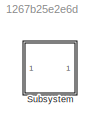
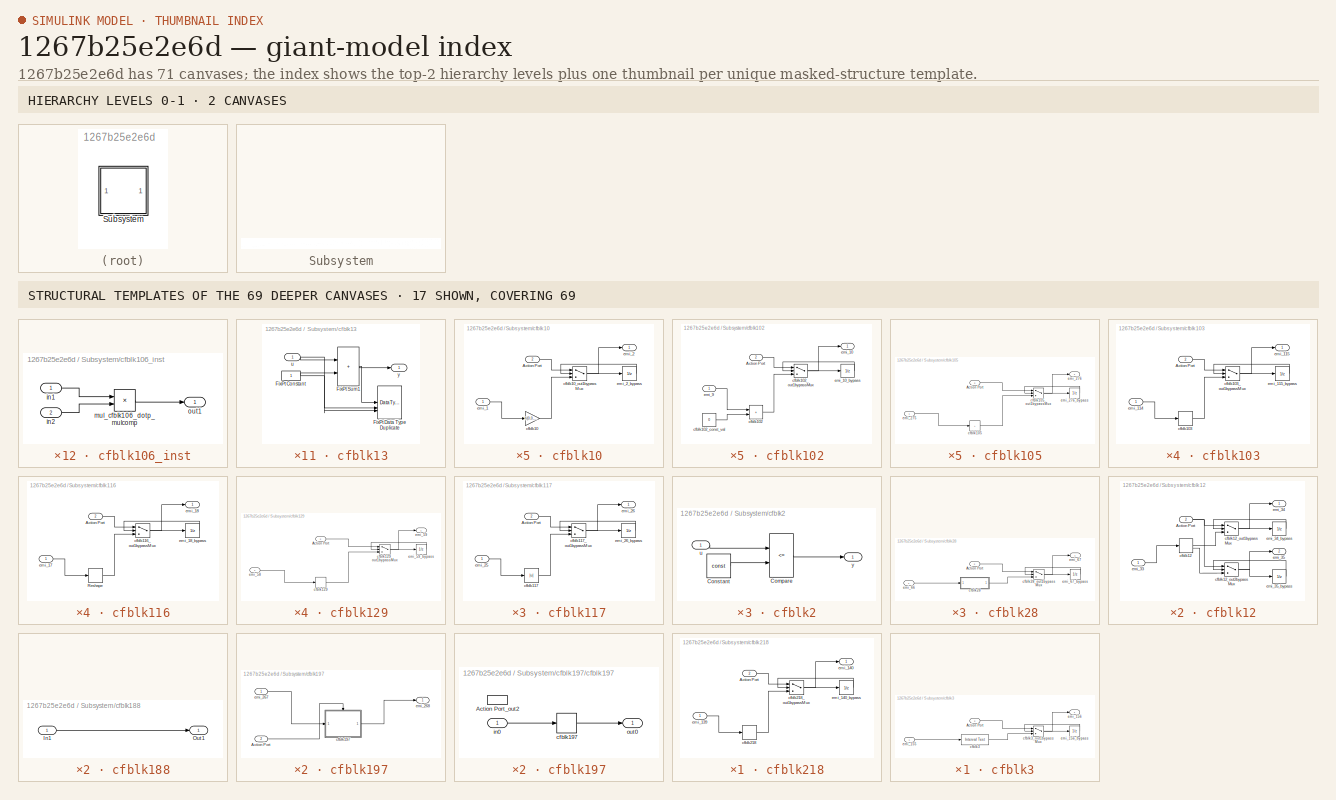
[diagram: thumbnail index - top-2 hierarchy levels (2 canvases) + 17 structural-template representatives of the remaining 69 canvases]
MODEL slx_1267b25e2e6d
KIND model
CONFIG AbsTol = auto
CONFIG EnableMultiTasking = off
CONFIG FixedStep = auto
CONFIG MaxStep = auto
CONFIG MinStep = auto
CONFIG RelTol = 1e-3
CONFIG SampleTimeConstraint = Unconstrained
CONFIG SolverName = VariableStepAuto
CONFIG StartTime = 0.0
CONFIG StopTime = 10.0
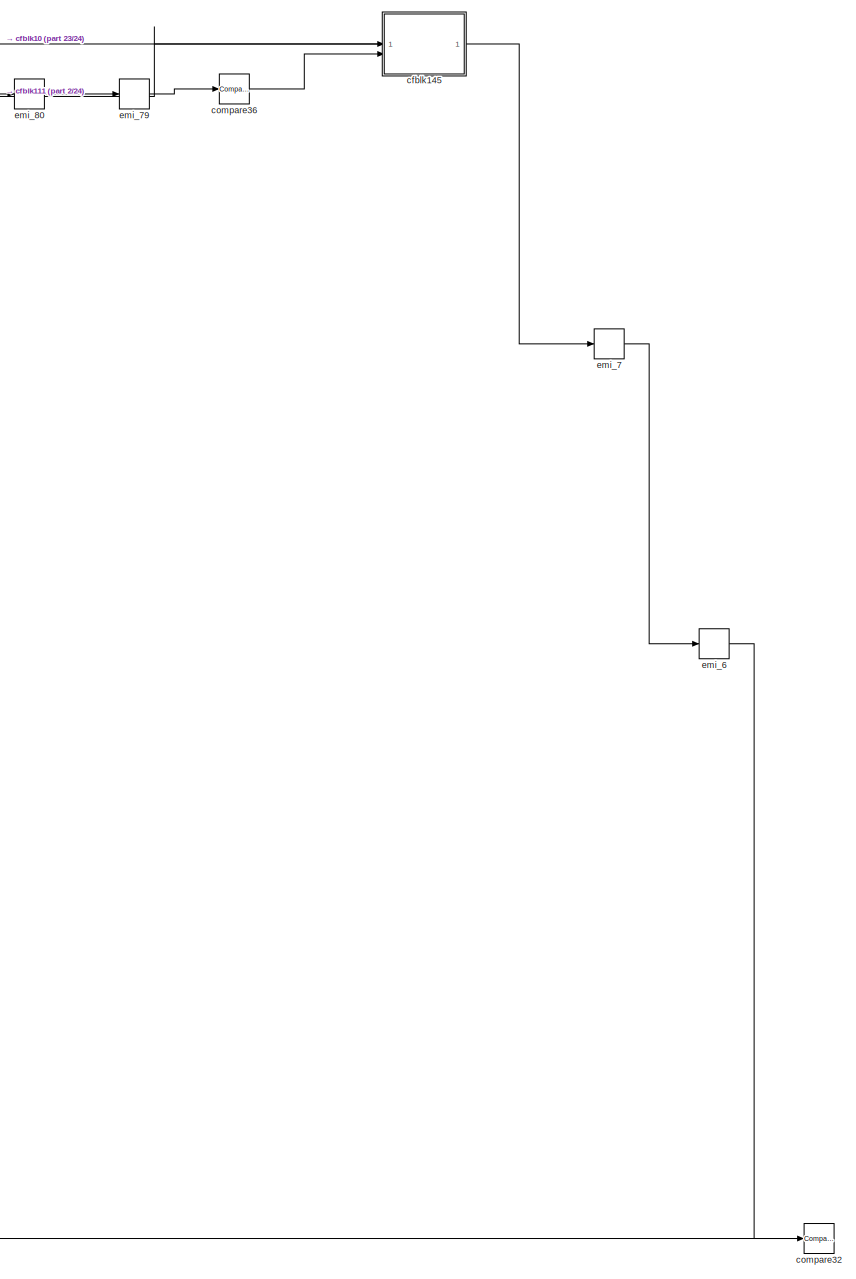
[diagram: Subsystem - part 1/24, right side, full height]
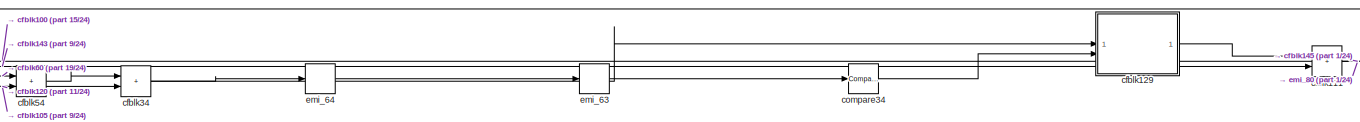
[diagram: Subsystem - part 2/24, top right region]
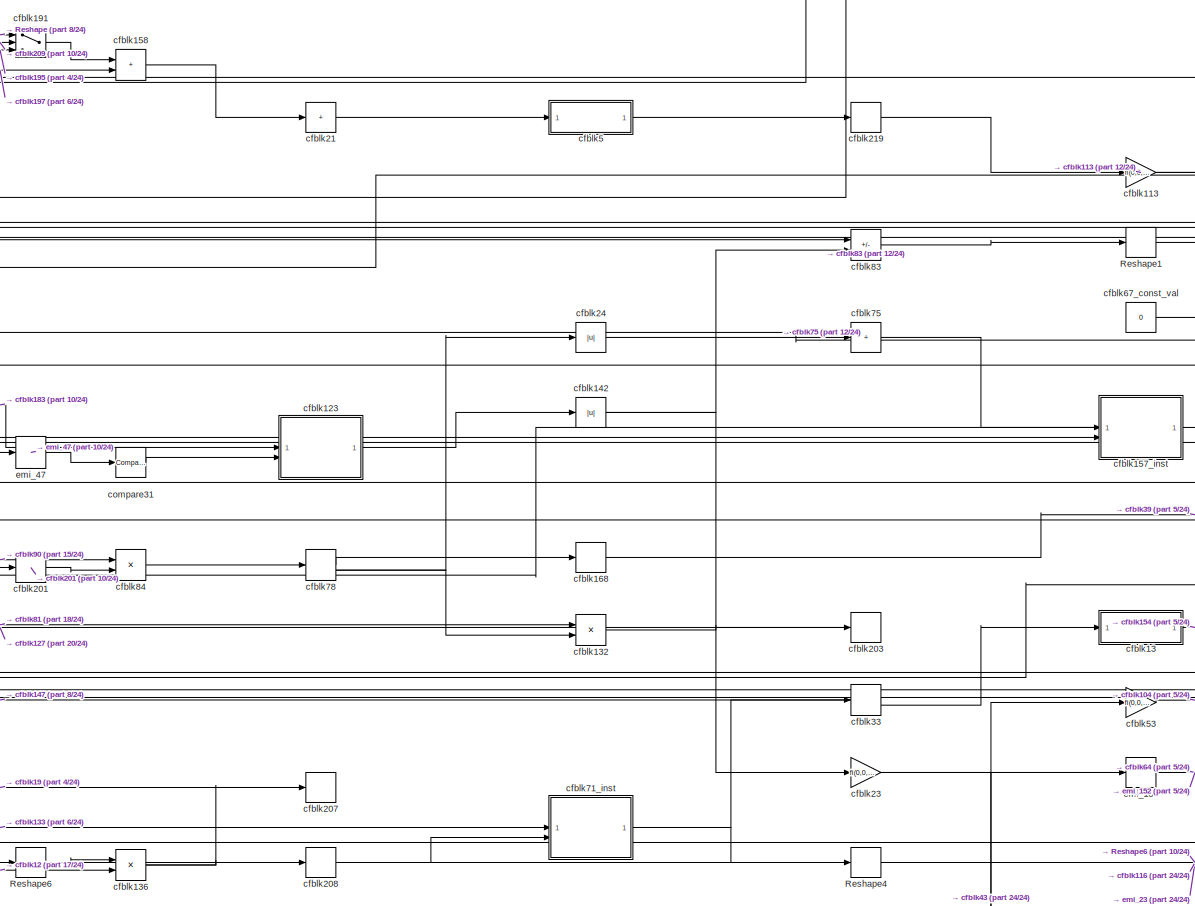
[diagram: Subsystem - part 3/24, middle right region]
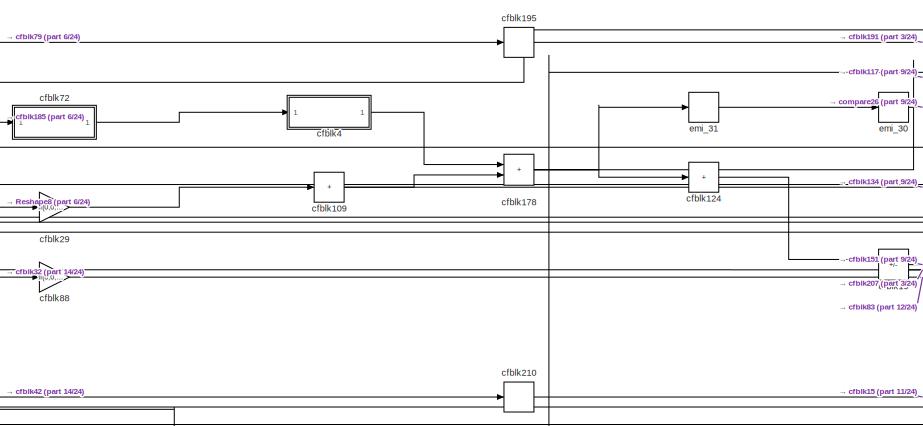
[diagram: Subsystem - part 4/24, top center region]
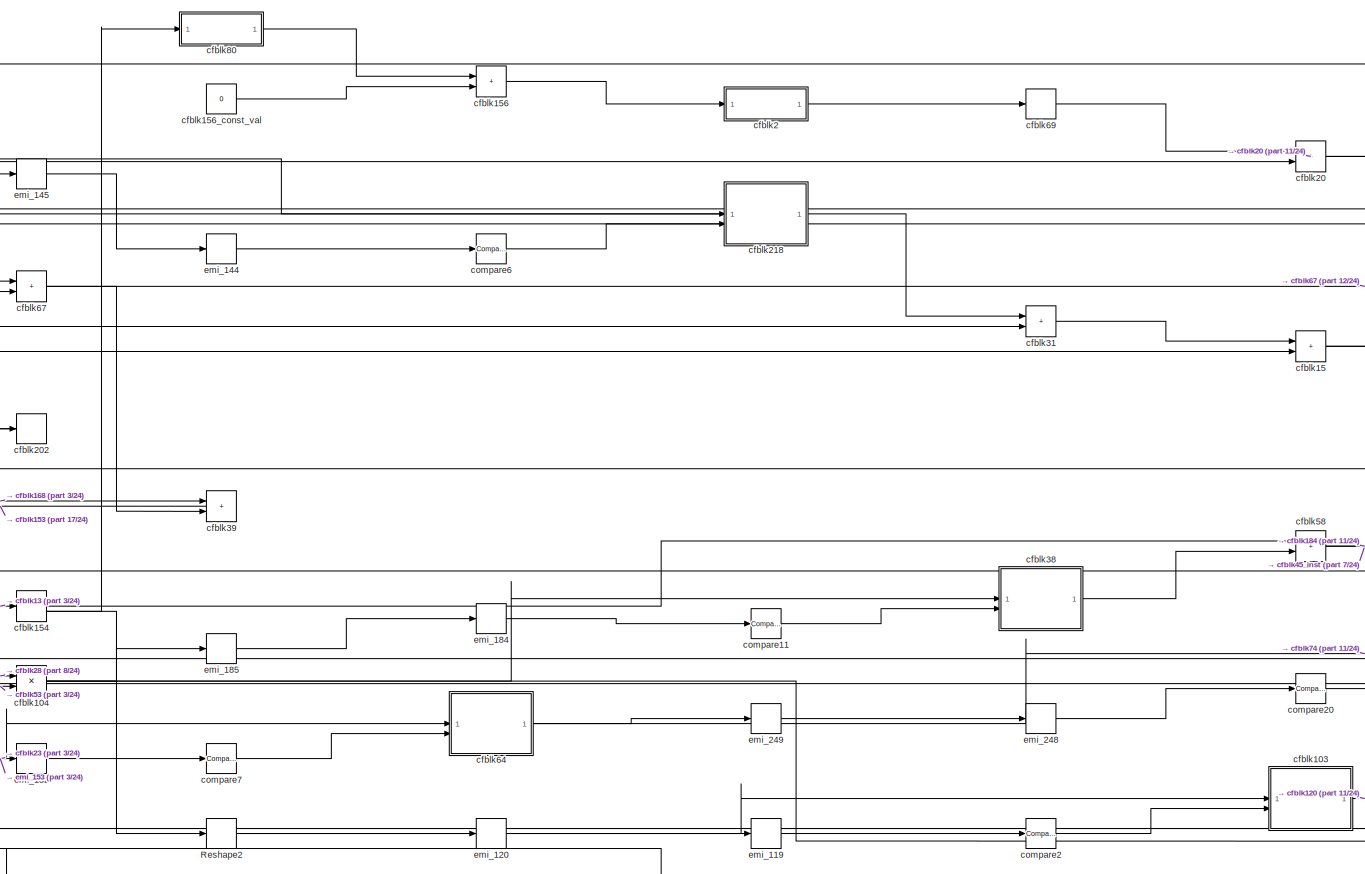
[diagram: Subsystem - part 5/24, middle right region]
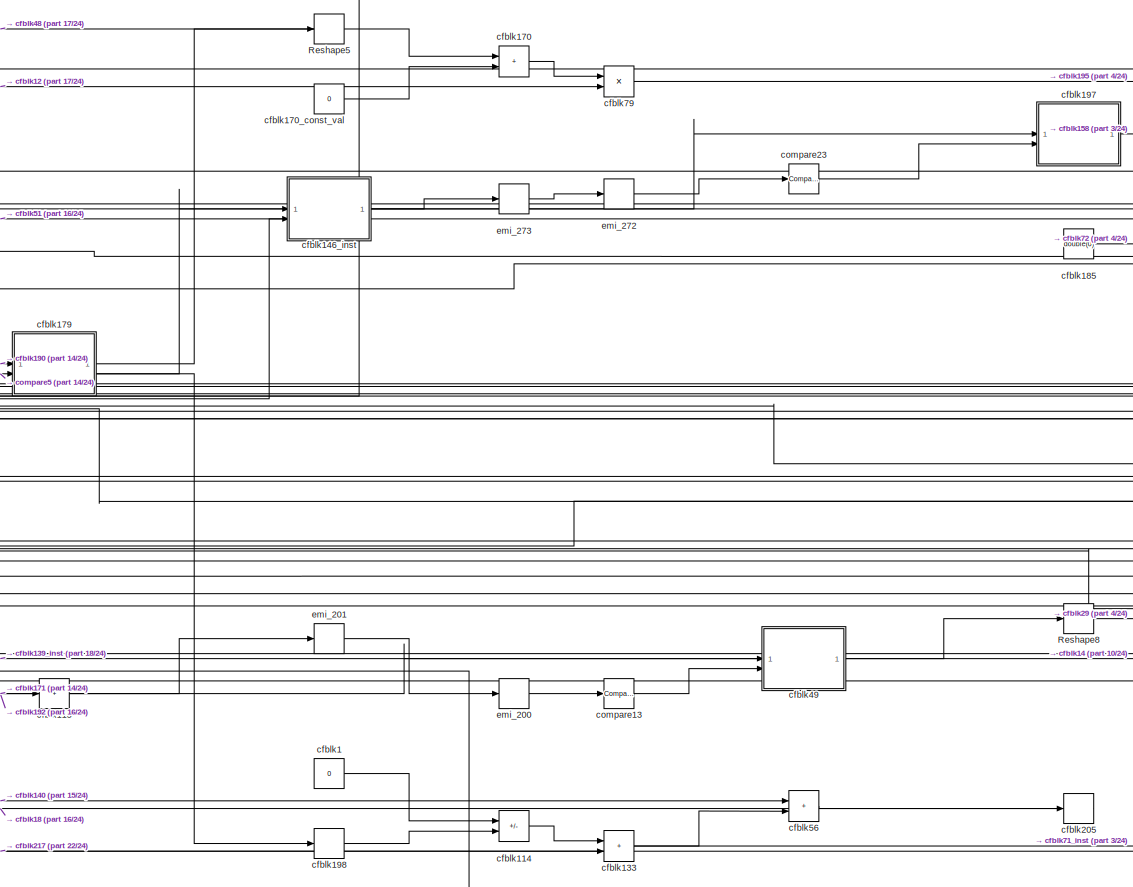
[diagram: Subsystem - part 6/24, central region]
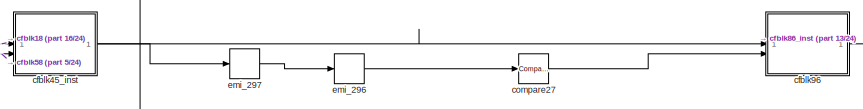
[diagram: Subsystem - part 7/24, top right region]
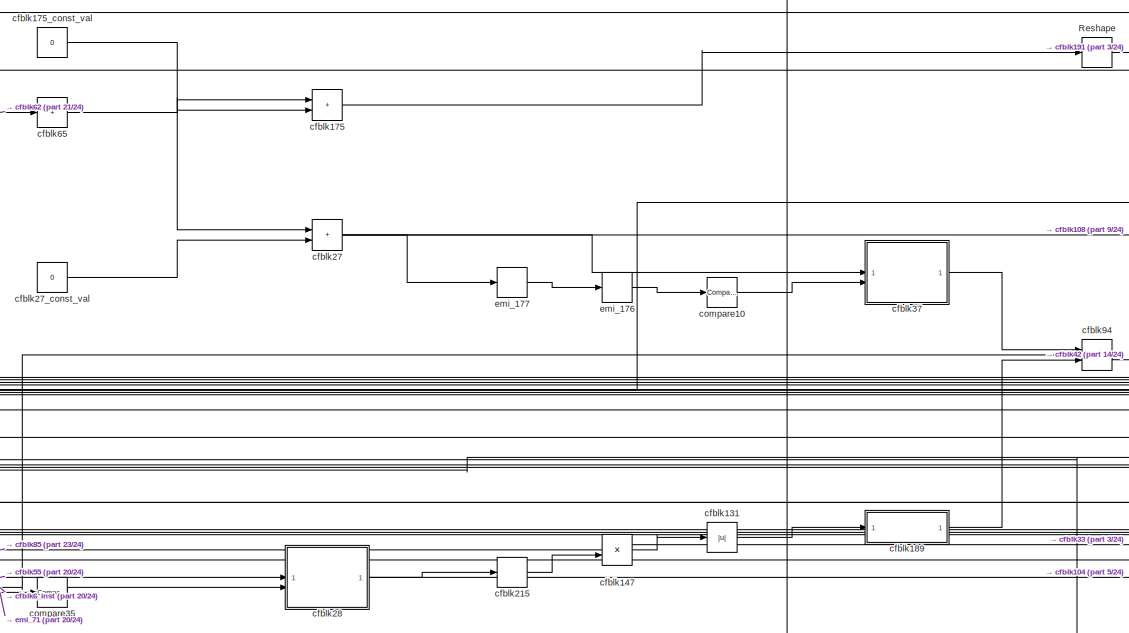
[diagram: Subsystem - part 8/24, central region]
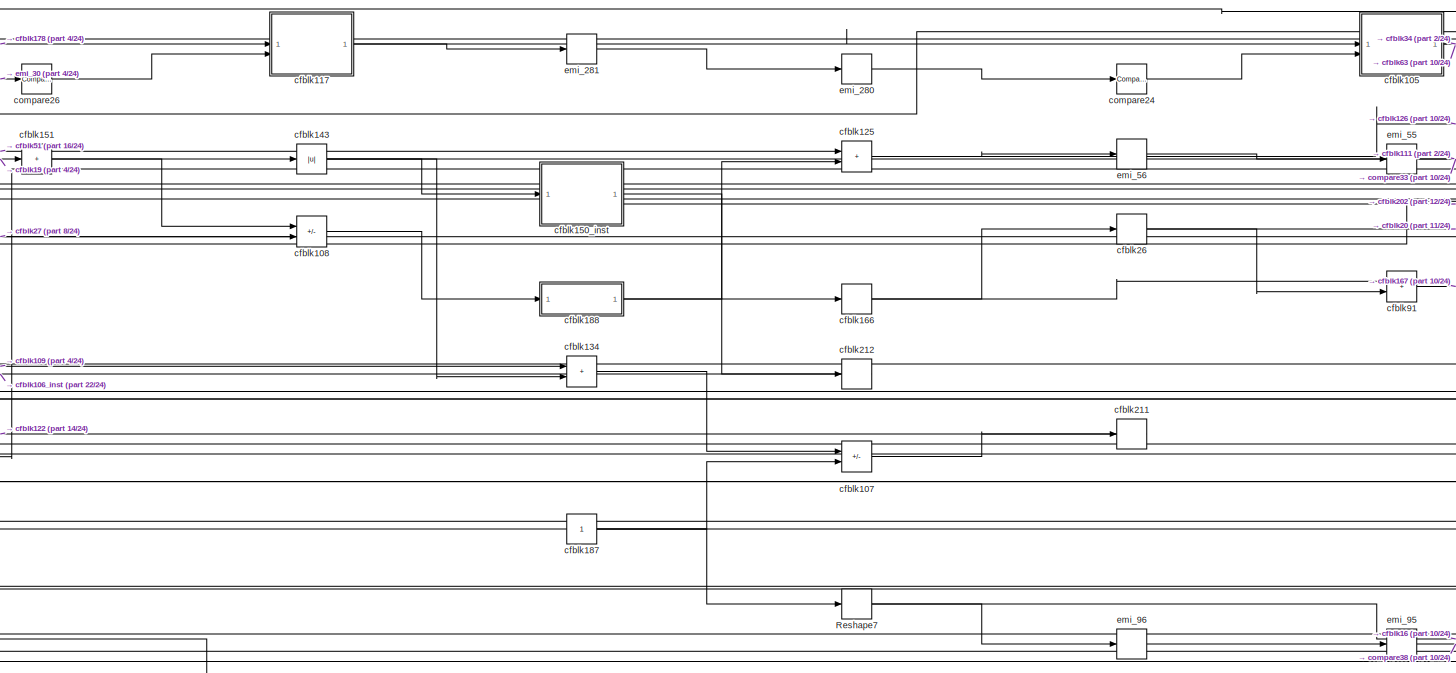
[diagram: Subsystem - part 9/24, middle right region]
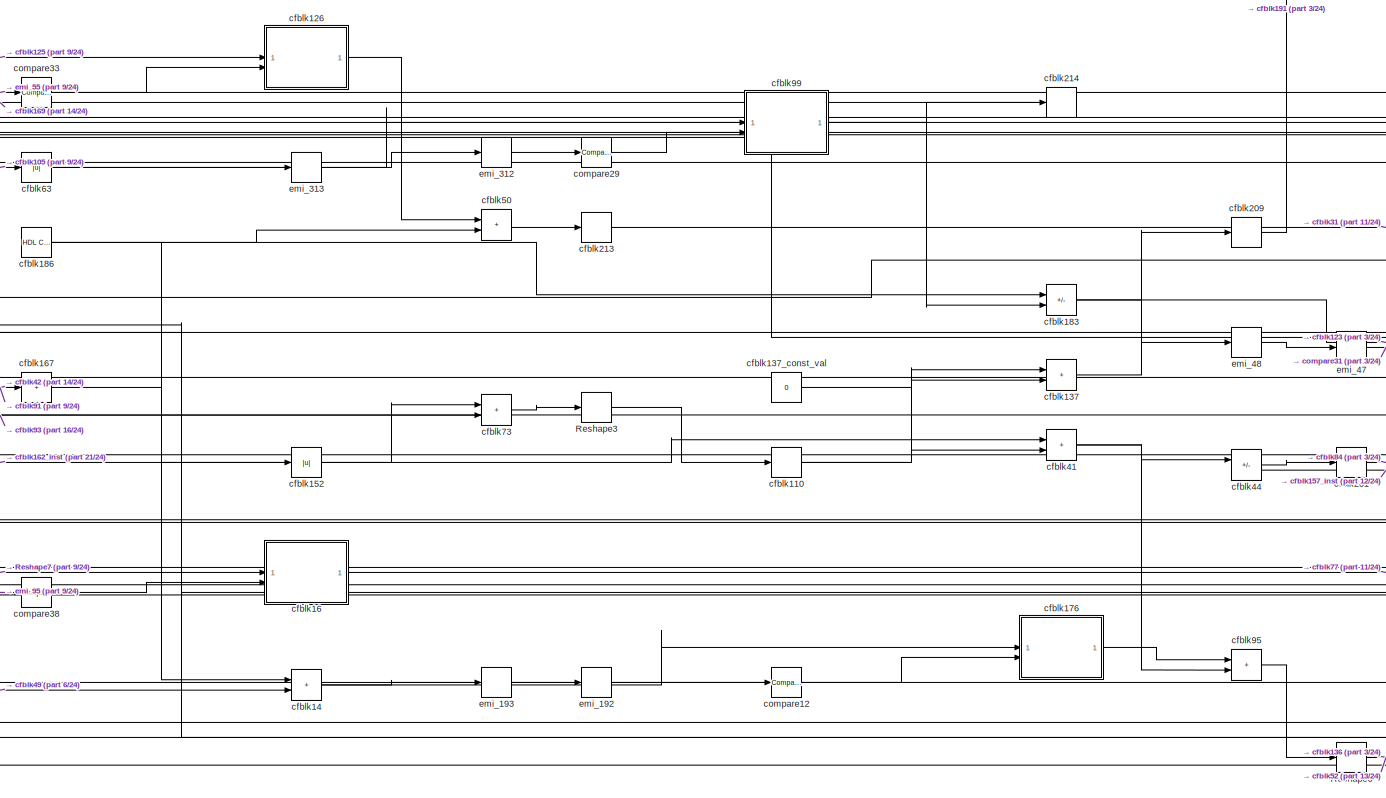
[diagram: Subsystem - part 10/24, middle right region]
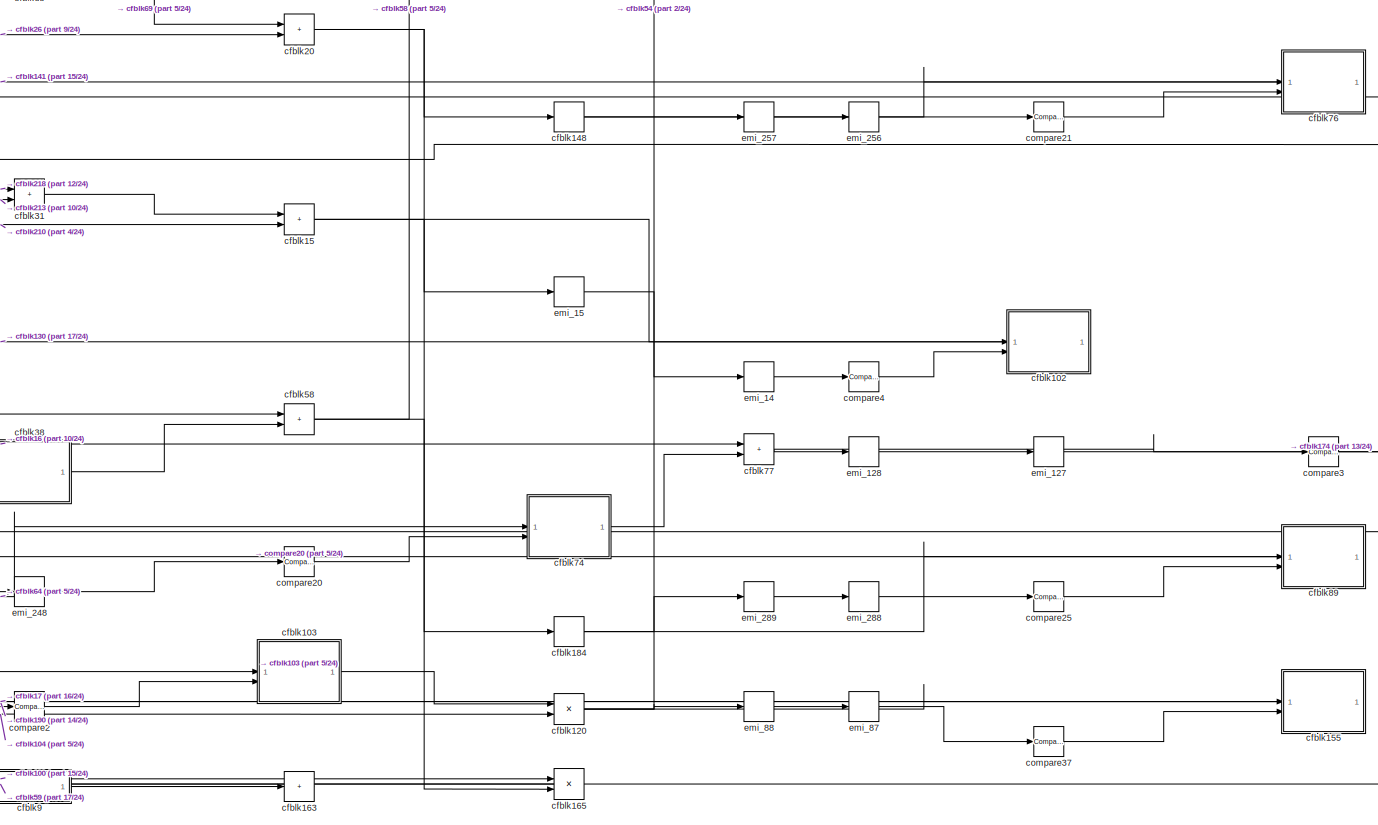
[diagram: Subsystem - part 11/24, middle right region]
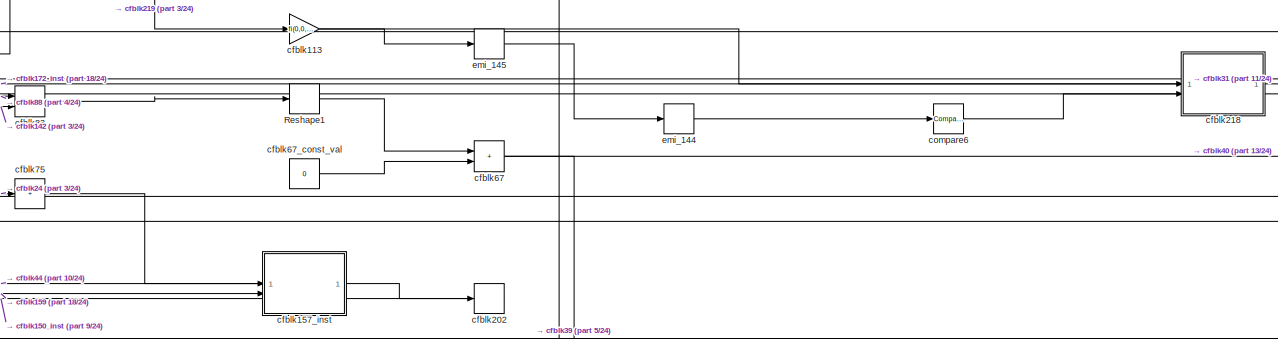
[diagram: Subsystem - part 12/24, middle right region]
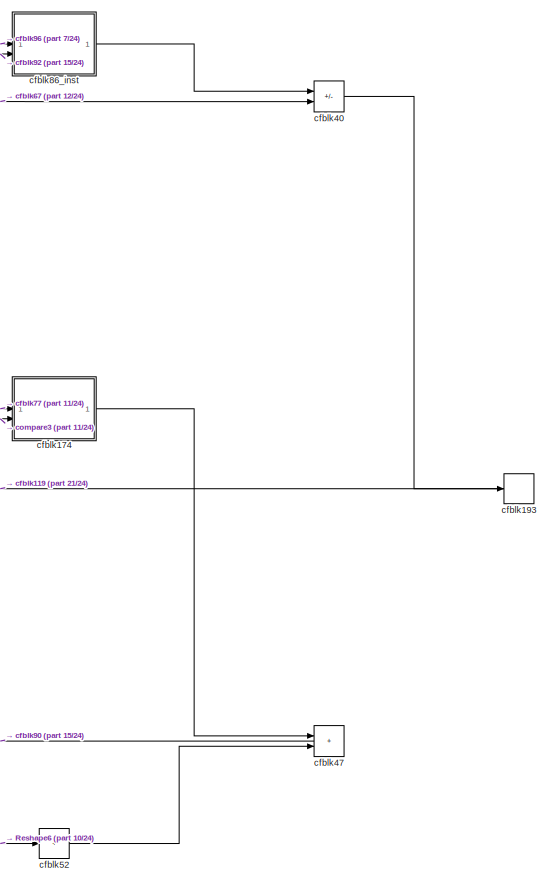
[diagram: Subsystem - part 13/24, middle right region]
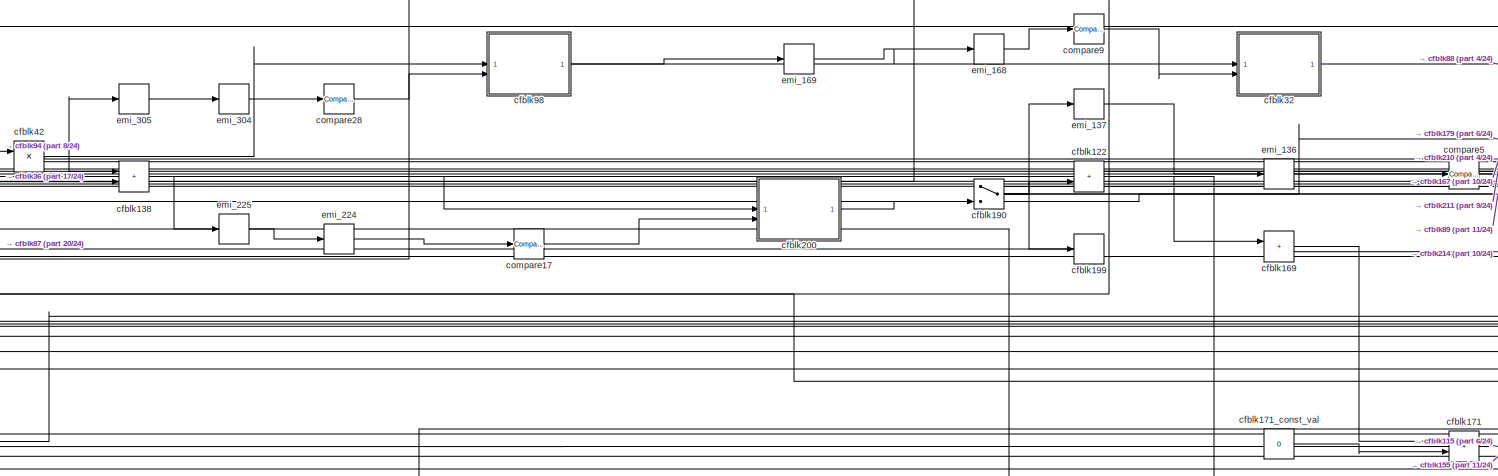
[diagram: Subsystem - part 14/24, central region]
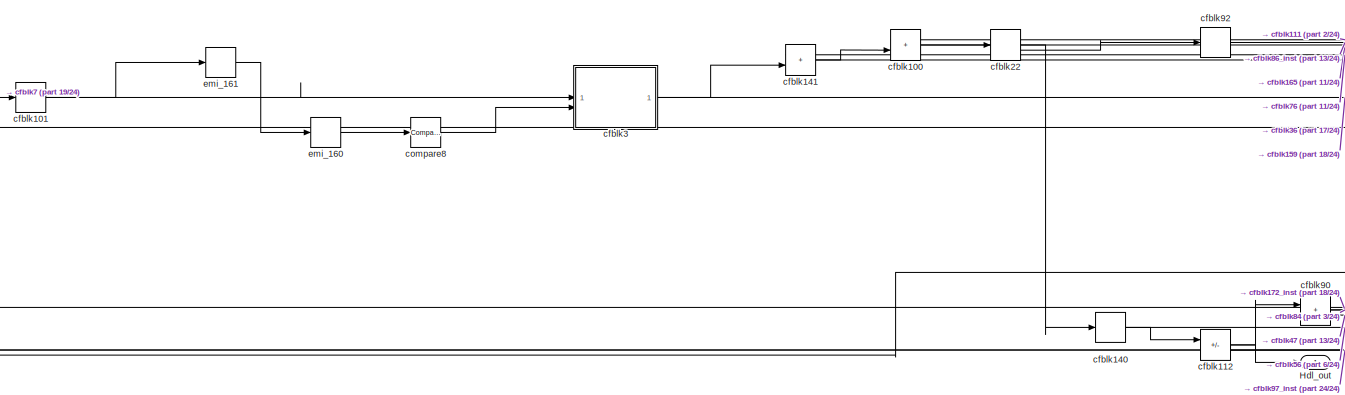
[diagram: Subsystem - part 15/24, middle left region]
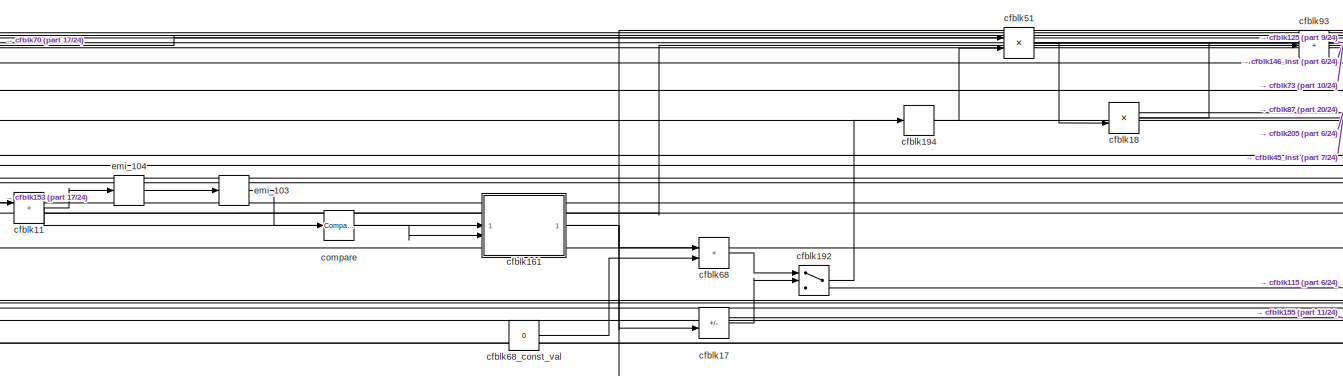
[diagram: Subsystem - part 16/24, central region]
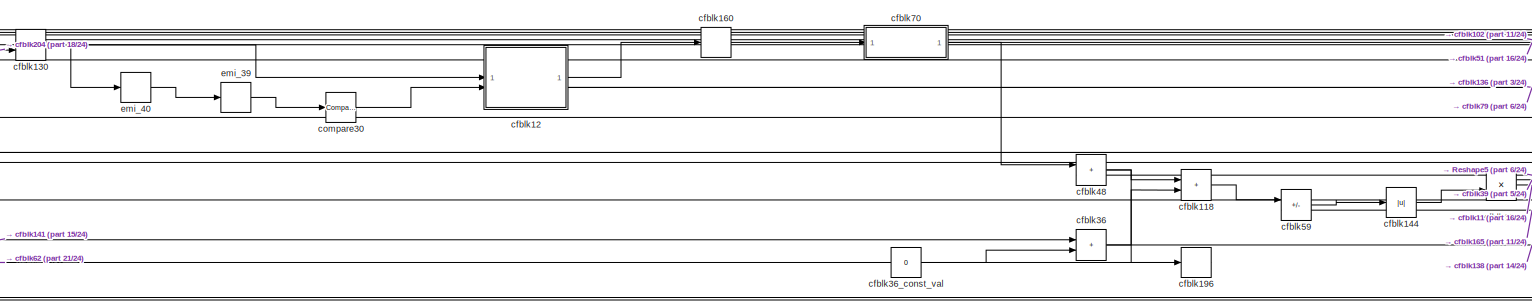
[diagram: Subsystem - part 17/24, middle left region]
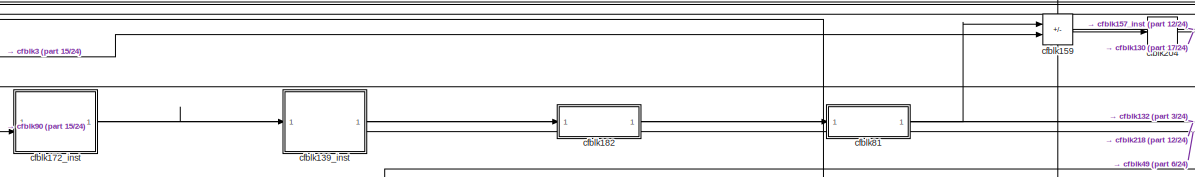
[diagram: Subsystem - part 18/24, middle left region]
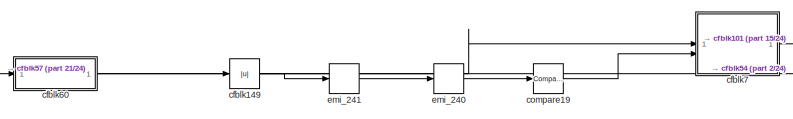
[diagram: Subsystem - part 19/24, middle left region]
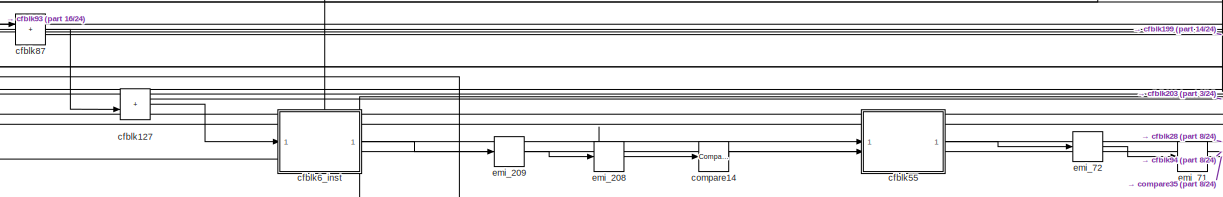
[diagram: Subsystem - part 20/24, central region]
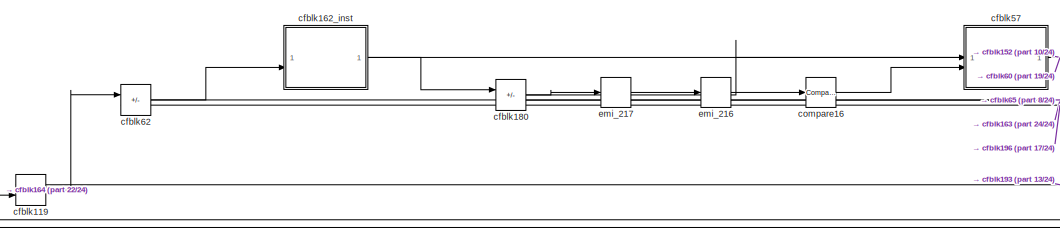
[diagram: Subsystem - part 21/24, bottom left region]
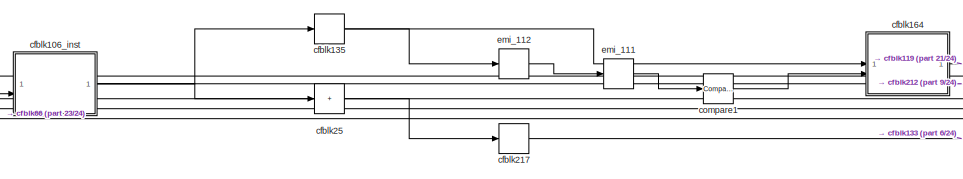
[diagram: Subsystem - part 22/24, bottom left region]
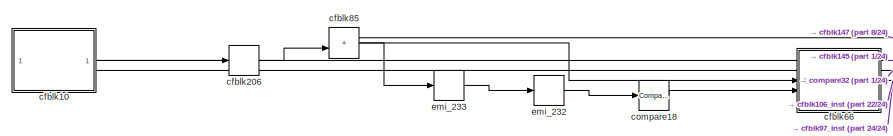
[diagram: Subsystem - part 23/24, bottom left region]
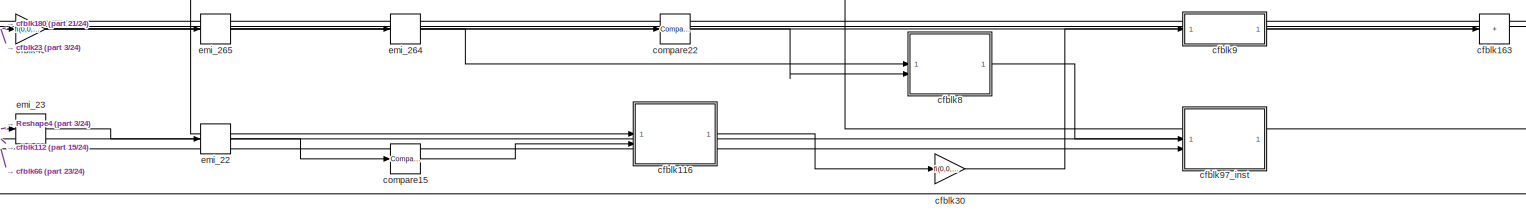
[diagram: Subsystem - part 24/24, bottom right region]
BLOCK [SubSystem] Subsystem
BLOCK [Outport] Subsystem/Hdl_out
  OutDataTypeStr = uint8
  SampleTime = 1
BLOCK [Reshape] Subsystem/Reshape
BLOCK [Reshape] Subsystem/Reshape1
BLOCK [Reshape] Subsystem/Reshape2
BLOCK [Reshape] Subsystem/Reshape3
BLOCK [Reshape] Subsystem/Reshape4
BLOCK [Reshape] Subsystem/Reshape5
BLOCK [Reshape] Subsystem/Reshape6
BLOCK [Reshape] Subsystem/Reshape7
BLOCK [Reshape] Subsystem/Reshape8
BLOCK [Constant] Subsystem/cfblk1
  OutDataTypeStr = uint8
  SampleTime = 1
  Value = 0
BLOCK [SubSystem] Subsystem/cfblk10
BLOCK [Inport] Subsystem/cfblk10/Action Port
  OutDataTypeStr = boolean
  Port = 2
  SampleTime = 1
BLOCK [Gain] Subsystem/cfblk10/cfblk10
  Gain = fi(0,0,8,7,"hex","80")
  OutDataTypeStr = fixdt(0, 16, 7)
  ParamDataTypeStr = fixdt(0, 8, 7)
  SampleTime = 1
BLOCK [MultiPortSwitch] Subsystem/cfblk10/cfblk10_out1bypassMux
  DataPortOrder = Zero-based contiguous
  InputSameDT = off
  Inputs = 2
  OutDataTypeStr = fixdt(0, 16, 7)
  SampleTime = 1
  SaturateOnIntegerOverflow = off
  zeroidx = on
BLOCK [Inport] Subsystem/cfblk10/emi_1
  OutDataTypeStr = uint8
  PortDimensions = 1
  SampleTime = 1
BLOCK [Outport] Subsystem/cfblk10/emi_2
  InitialOutput = 0
  SampleTime = 1
BLOCK [UnitDelay] Subsystem/cfblk10/emi_2_bypass
  InitialCondition = fi(0,0,16,7,"hex","0000")
  SampleTime = 1
BLOCK [Sum] Subsystem/cfblk100
  AccumDataTypeStr = uint8
  IconShape = rectangular
  OutDataTypeStr = uint8
  SampleTime = 1
BLOCK [MinMax] Subsystem/cfblk101
  OutDataTypeStr = uint8
BLOCK [SubSystem] Subsystem/cfblk102
BLOCK [Inport] Subsystem/cfblk102/Action Port
  OutDataTypeStr = boolean
  Port = 2
  SampleTime = 1
BLOCK [Sum] Subsystem/cfblk102/cfblk102
  AccumDataTypeStr = uint8
  IconShape = rectangular
  OutDataTypeStr = uint8
  RndMeth = Nearest
  SampleTime = 1
BLOCK [Constant] Subsystem/cfblk102/cfblk102_const_val
  OutDataTypeStr = uint8
  SampleTime = 1
  Value = 0
  VectorParams1D = off
BLOCK [MultiPortSwitch] Subsystem/cfblk102/cfblk102_out1bypassMux
  DataPortOrder = Zero-based contiguous
  InputSameDT = off
  Inputs = 2
  OutDataTypeStr = uint8
  SampleTime = 1
  SaturateOnIntegerOverflow = off
  zeroidx = on
BLOCK [Outport] Subsystem/cfblk102/emi_10
  InitialOutput = 0
  SampleTime = 1
BLOCK [UnitDelay] Subsystem/cfblk102/emi_10_bypass
  InitialCondition = fi(0,0,8,0,"hex","00")
  SampleTime = 1
BLOCK [Inport] Subsystem/cfblk102/emi_9
  OutDataTypeStr = uint8
  PortDimensions = 1
  SampleTime = 1
BLOCK [SubSystem] Subsystem/cfblk103
BLOCK [Inport] Subsystem/cfblk103/Action Port
  OutDataTypeStr = boolean
  Port = 2
  SampleTime = 1
BLOCK [Signum] Subsystem/cfblk103/cfblk103
  SampleTime = 1
BLOCK [MultiPortSwitch] Subsystem/cfblk103/cfblk103_out1bypassMux
  DataPortOrder = Zero-based contiguous
  InputSameDT = off
  Inputs = 2
  OutDataTypeStr = uint8
  SampleTime = 1
  SaturateOnIntegerOverflow = off
  zeroidx = on
BLOCK [Inport] Subsystem/cfblk103/emi_114
  OutDataTypeStr = uint8
  PortDimensions = 1
  SampleTime = 1
BLOCK [Outport] Subsystem/cfblk103/emi_115
  InitialOutput = 0
  SampleTime = 1
BLOCK [UnitDelay] Subsystem/cfblk103/emi_115_bypass
  InitialCondition = fi(0,0,8,0,"hex","00")
  SampleTime = 1
BLOCK [Product] Subsystem/cfblk104
  Inputs = */
  OutDataTypeStr = uint8
  RndMeth = Zero
  SampleTime = 1
  SaturateOnIntegerOverflow = on
BLOCK [SubSystem] Subsystem/cfblk105
BLOCK [Inport] Subsystem/cfblk105/Action Port
  OutDataTypeStr = boolean
  Port = 2
  SampleTime = 1
BLOCK [Sum] Subsystem/cfblk105/cfblk105
  IconShape = rectangular
  Inputs = +
BLOCK [MultiPortSwitch] Subsystem/cfblk105/cfblk105_out1bypassMux
  DataPortOrder = Zero-based contiguous
  InputSameDT = off
  Inputs = 2
  OutDataTypeStr = uint8
  SampleTime = 1
  SaturateOnIntegerOverflow = off
  zeroidx = on
BLOCK [Inport] Subsystem/cfblk105/emi_275
  OutDataTypeStr = uint8
  PortDimensions = 1
  SampleTime = 1
BLOCK [Outport] Subsystem/cfblk105/emi_276
  InitialOutput = 0
  SampleTime = 1
BLOCK [UnitDelay] Subsystem/cfblk105/emi_276_bypass
  InitialCondition = fi(0,0,8,0,"hex","00")
  SampleTime = 1
BLOCK [SubSystem] Subsystem/cfblk106_inst
BLOCK [Inport] Subsystem/cfblk106_inst/in1
  OutDataTypeStr = uint8
  SampleTime = 1
BLOCK [Inport] Subsystem/cfblk106_inst/in2
  OutDataTypeStr = uint8
  Port = 2
  SampleTime = 1
BLOCK [Product] Subsystem/cfblk106_inst/mul_cfblk106_dotp_mulcomp
  Inputs = **
  OutDataTypeStr = uint8
  SampleTime = 1
BLOCK [Outport] Subsystem/cfblk106_inst/out1
  OutDataTypeStr = uint8
  SampleTime = 1
BLOCK [Sum] Subsystem/cfblk107
  AccumDataTypeStr = uint8
  IconShape = rectangular
  Inputs = +-
  OutDataTypeStr = uint8
  SampleTime = 1
BLOCK [Sum] Subsystem/cfblk108
  AccumDataTypeStr = uint8
  IconShape = rectangular
  Inputs = +-
  OutDataTypeStr = uint8
  SampleTime = 1
BLOCK [Sum] Subsystem/cfblk109
  IconShape = rectangular
  Inputs = +
  OutDataTypeStr = uint8
BLOCK [Sum] Subsystem/cfblk11
  AccumDataTypeStr = uint8
  IconShape = rectangular
  OutDataTypeStr = uint8
  SampleTime = 1
BLOCK [MinMax] Subsystem/cfblk110
  OutDataTypeStr = uint8
BLOCK [Sum] Subsystem/cfblk111
  AccumDataTypeStr = uint8
  IconShape = rectangular
  OutDataTypeStr = uint8
  SampleTime = 1
BLOCK [Sum] Subsystem/cfblk112
  AccumDataTypeStr = uint8
  IconShape = rectangular
  Inputs = +-
  OutDataTypeStr = uint8
  SampleTime = 1
BLOCK [Gain] Subsystem/cfblk113
  Gain = fi(0,0,8,7,"hex","80")
  OutDataTypeStr = uint8
  ParamDataTypeStr = fixdt(0, 8, 7)
  SampleTime = 1
BLOCK [Sum] Subsystem/cfblk114
  AccumDataTypeStr = uint8
  IconShape = rectangular
  Inputs = +-
  OutDataTypeStr = uint8
  SampleTime = 1
BLOCK [Sum] Subsystem/cfblk115
  IconShape = rectangular
  Inputs = +
  OutDataTypeStr = uint8
BLOCK [SubSystem] Subsystem/cfblk116
BLOCK [Inport] Subsystem/cfblk116/Action Port
  OutDataTypeStr = boolean
  Port = 2
  SampleTime = 1
BLOCK [Reshape] Subsystem/cfblk116/Reshape
BLOCK [MultiPortSwitch] Subsystem/cfblk116/cfblk116_out1bypassMux
  DataPortOrder = Zero-based contiguous
  InputSameDT = off
  Inputs = 2
  OutDataTypeStr = uint8
  SampleTime = 1
  SaturateOnIntegerOverflow = off
  zeroidx = on
BLOCK [Inport] Subsystem/cfblk116/emi_17
  OutDataTypeStr = uint8
  PortDimensions = 1
  SampleTime = 1
BLOCK [Outport] Subsystem/cfblk116/emi_18
  InitialOutput = 0
  SampleTime = 1
BLOCK [UnitDelay] Subsystem/cfblk116/emi_18_bypass
  InitialCondition = fi(0,0,8,0,"hex","00")
  SampleTime = 1
BLOCK [SubSystem] Subsystem/cfblk117
BLOCK [Inport] Subsystem/cfblk117/Action Port
  OutDataTypeStr = boolean
  Port = 2
  SampleTime = 1
BLOCK [Abs] Subsystem/cfblk117/cfblk117
  OutDataTypeStr = uint8
  SampleTime = 1
  SaturateOnIntegerOverflow = off
BLOCK [MultiPortSwitch] Subsystem/cfblk117/cfblk117_out1bypassMux
  DataPortOrder = Zero-based contiguous
  InputSameDT = off
  Inputs = 2
  OutDataTypeStr = uint8
  SampleTime = 1
  SaturateOnIntegerOverflow = off
  zeroidx = on
BLOCK [Inport] Subsystem/cfblk117/emi_25
  OutDataTypeStr = uint8
  PortDimensions = 1
  SampleTime = 1
BLOCK [Outport] Subsystem/cfblk117/emi_26
  InitialOutput = 0
  SampleTime = 1
BLOCK [UnitDelay] Subsystem/cfblk117/emi_26_bypass
  InitialCondition = fi(0,0,8,0,"hex","00")
  SampleTime = 1
BLOCK [Sum] Subsystem/cfblk118
  AccumDataTypeStr = uint8
  IconShape = rectangular
  OutDataTypeStr = uint8
  SampleTime = 1
BLOCK [Sum] Subsystem/cfblk119
  AccumDataTypeStr = uint8
  IconShape = rectangular
  OutDataTypeStr = uint8
  SampleTime = 1
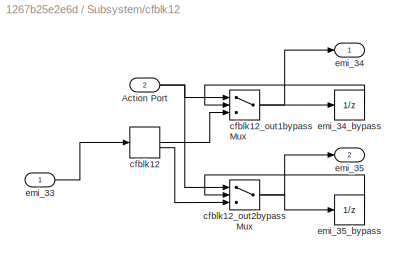
BLOCK [SubSystem] Subsystem/cfblk12
BLOCK [Inport] Subsystem/cfblk12/Action Port
  OutDataTypeStr = boolean
  Port = 2
  SampleTime = 1
BLOCK [ComplexToRealImag] Subsystem/cfblk12/cfblk12
  SampleTime = 1
BLOCK [MultiPortSwitch] Subsystem/cfblk12/cfblk12_out1bypassMux
  DataPortOrder = Zero-based contiguous
  InputSameDT = off
  Inputs = 2
  OutDataTypeStr = uint8
  SampleTime = 1
  SaturateOnIntegerOverflow = off
  zeroidx = on
BLOCK [MultiPortSwitch] Subsystem/cfblk12/cfblk12_out2bypassMux
  DataPortOrder = Zero-based contiguous
  InputSameDT = off
  Inputs = 2
  OutDataTypeStr = uint8
  SampleTime = 1
  SaturateOnIntegerOverflow = off
  zeroidx = on
BLOCK [Inport] Subsystem/cfblk12/emi_33
  OutDataTypeStr = uint8
  PortDimensions = 1
  SampleTime = 1
BLOCK [Outport] Subsystem/cfblk12/emi_34
  InitialOutput = 0
  SampleTime = 1
BLOCK [UnitDelay] Subsystem/cfblk12/emi_34_bypass
  InitialCondition = fi(0,0,8,0,"hex","00")
  SampleTime = 1
BLOCK [Outport] Subsystem/cfblk12/emi_35
  InitialOutput = 0
  Port = 2
  SampleTime = 1
BLOCK [UnitDelay] Subsystem/cfblk12/emi_35_bypass
  InitialCondition = fi(0,0,8,0,"hex","00")
  SampleTime = 1
BLOCK [Product] Subsystem/cfblk120
  Inputs = */
  OutDataTypeStr = uint8
  RndMeth = Zero
  SampleTime = 1
  SaturateOnIntegerOverflow = on
BLOCK [Sum] Subsystem/cfblk122
  AccumDataTypeStr = uint8
  IconShape = rectangular
  OutDataTypeStr = uint8
  SampleTime = 1
BLOCK [SubSystem] Subsystem/cfblk123
BLOCK [Inport] Subsystem/cfblk123/Action Port
  OutDataTypeStr = boolean
  Port = 2
  SampleTime = 1
BLOCK [Sum] Subsystem/cfblk123/cfblk123
  IconShape = rectangular
  Inputs = +
BLOCK [MultiPortSwitch] Subsystem/cfblk123/cfblk123_out1bypassMux
  DataPortOrder = Zero-based contiguous
  InputSameDT = off
  Inputs = 2
  OutDataTypeStr = uint8
  SampleTime = 1
  SaturateOnIntegerOverflow = off
  zeroidx = on
BLOCK [Inport] Subsystem/cfblk123/emi_42
  OutDataTypeStr = uint8
  PortDimensions = 1
  SampleTime = 1
BLOCK [Outport] Subsystem/cfblk123/emi_43
  InitialOutput = 0
  SampleTime = 1
BLOCK [UnitDelay] Subsystem/cfblk123/emi_43_bypass
  InitialCondition = fi(0,0,8,0,"hex","00")
  SampleTime = 1
BLOCK [Sum] Subsystem/cfblk124
  IconShape = rectangular
  Inputs = +
  OutDataTypeStr = uint8
BLOCK [Sum] Subsystem/cfblk125
  AccumDataTypeStr = uint8
  IconShape = rectangular
  OutDataTypeStr = uint8
  SampleTime = 1
BLOCK [SubSystem] Subsystem/cfblk126
BLOCK [Inport] Subsystem/cfblk126/Action Port
  OutDataTypeStr = boolean
  Port = 2
  SampleTime = 1
BLOCK [Gain] Subsystem/cfblk126/cfblk126
  Gain = fi(0,0,8,7,"hex","80")
  OutDataTypeStr = fixdt(0, 16, 7)
  ParamDataTypeStr = fixdt(0, 8, 7)
  SampleTime = 1
BLOCK [MultiPortSwitch] Subsystem/cfblk126/cfblk126_out1bypassMux
  DataPortOrder = Zero-based contiguous
  InputSameDT = off
  Inputs = 2
  OutDataTypeStr = fixdt(0, 16, 7)
  SampleTime = 1
  SaturateOnIntegerOverflow = off
  zeroidx = on
BLOCK [Inport] Subsystem/cfblk126/emi_50
  OutDataTypeStr = uint8
  PortDimensions = 1
  SampleTime = 1
BLOCK [Outport] Subsystem/cfblk126/emi_51
  InitialOutput = 0
  SampleTime = 1
BLOCK [UnitDelay] Subsystem/cfblk126/emi_51_bypass
  InitialCondition = fi(0,0,16,7,"hex","0000")
  SampleTime = 1
BLOCK [Sum] Subsystem/cfblk127
  AccumDataTypeStr = uint8
  IconShape = rectangular
  OutDataTypeStr = uint8
  SampleTime = 1
BLOCK [SubSystem] Subsystem/cfblk129
BLOCK [Inport] Subsystem/cfblk129/Action Port
  OutDataTypeStr = boolean
  Port = 2
  SampleTime = 1
BLOCK [MinMax] Subsystem/cfblk129/cfblk129
BLOCK [MultiPortSwitch] Subsystem/cfblk129/cfblk129_out1bypassMux
  DataPortOrder = Zero-based contiguous
  InputSameDT = off
  Inputs = 2
  OutDataTypeStr = uint8
  SampleTime = 1
  SaturateOnIntegerOverflow = off
  zeroidx = on
BLOCK [Inport] Subsystem/cfblk129/emi_58
  OutDataTypeStr = uint8
  PortDimensions = 1
  SampleTime = 1
BLOCK [Outport] Subsystem/cfblk129/emi_59
  InitialOutput = 0
  SampleTime = 1
BLOCK [UnitDelay] Subsystem/cfblk129/emi_59_bypass
  InitialCondition = fi(0,0,8,0,"hex","00")
  SampleTime = 1
BLOCK [SubSystem] Subsystem/cfblk13
BLOCK [Constant] Subsystem/cfblk13/FixPt Constant
  DisableCoverage = on
  OutDataTypeStr = Inherit: Inherit via back propagation
  SampleTime = -1
BLOCK [DataTypeDuplicate] Subsystem/cfblk13/FixPt Data Type Duplicate
  DisableCoverage = on
  NumInputPorts = 3
BLOCK [Sum] Subsystem/cfblk13/FixPt Sum1
  IconShape = rectangular
  InputSameDT = on
  LockScale = on
  OutDataTypeStr = Inherit: Inherit via back propagation
BLOCK [Inport] Subsystem/cfblk13/u
  OutDataTypeStr = uint8
  SampleTime = 1
BLOCK [Outport] Subsystem/cfblk13/y
  SampleTime = 1
BLOCK [Sum] Subsystem/cfblk130
  AccumDataTypeStr = uint8
  IconShape = rectangular
  OutDataTypeStr = uint8
  SampleTime = 1
BLOCK [Abs] Subsystem/cfblk131
  OutDataTypeStr = uint8
  SampleTime = 1
  SaturateOnIntegerOverflow = off
BLOCK [Product] Subsystem/cfblk132
  Inputs = */
  OutDataTypeStr = uint8
  RndMeth = Zero
  SampleTime = 1
  SaturateOnIntegerOverflow = on
BLOCK [Sum] Subsystem/cfblk133
  AccumDataTypeStr = uint8
  IconShape = rectangular
  OutDataTypeStr = uint8
  SampleTime = 1
BLOCK [Sum] Subsystem/cfblk134
  AccumDataTypeStr = uint8
  IconShape = rectangular
  OutDataTypeStr = uint8
  SampleTime = 1
BLOCK [Signum] Subsystem/cfblk135
  SampleTime = 1
BLOCK [Product] Subsystem/cfblk136
  Inputs = */
  OutDataTypeStr = uint8
  RndMeth = Zero
  SampleTime = 1
  SaturateOnIntegerOverflow = on
BLOCK [Sum] Subsystem/cfblk137
  AccumDataTypeStr = uint8
  IconShape = rectangular
  OutDataTypeStr = uint8
  RndMeth = Nearest
  SampleTime = 1
BLOCK [Constant] Subsystem/cfblk137_const_val
  OutDataTypeStr = uint8
  SampleTime = 1
  Value = 0
  VectorParams1D = off
BLOCK [Sum] Subsystem/cfblk138
  AccumDataTypeStr = uint8
  IconShape = rectangular
  OutDataTypeStr = uint8
  SampleTime = 1
BLOCK [SubSystem] Subsystem/cfblk139_inst
BLOCK [Inport] Subsystem/cfblk139_inst/in1
  OutDataTypeStr = uint8
  SampleTime = 1
BLOCK [Inport] Subsystem/cfblk139_inst/in2
  OutDataTypeStr = uint8
  Port = 2
  SampleTime = 1
BLOCK [Product] Subsystem/cfblk139_inst/mul_cfblk139_dotp_mulcomp
  Inputs = **
  OutDataTypeStr = uint8
  SampleTime = 1
BLOCK [Outport] Subsystem/cfblk139_inst/out1
  OutDataTypeStr = uint8
  SampleTime = 1
BLOCK [Sum] Subsystem/cfblk14
  AccumDataTypeStr = uint8
  IconShape = rectangular
  OutDataTypeStr = uint8
  SampleTime = 1
BLOCK [Signum] Subsystem/cfblk140
  SampleTime = 1
BLOCK [Sum] Subsystem/cfblk141
  AccumDataTypeStr = uint8
  IconShape = rectangular
  OutDataTypeStr = uint8
  SampleTime = 1
BLOCK [Abs] Subsystem/cfblk142
  OutDataTypeStr = uint8
  SampleTime = 1
  SaturateOnIntegerOverflow = off
BLOCK [Abs] Subsystem/cfblk143
  OutDataTypeStr = uint8
  SampleTime = 1
  SaturateOnIntegerOverflow = off
BLOCK [Abs] Subsystem/cfblk144
  OutDataTypeStr = uint8
  SampleTime = 1
  SaturateOnIntegerOverflow = off
BLOCK [SubSystem] Subsystem/cfblk145
BLOCK [Inport] Subsystem/cfblk145/Action Port
  OutDataTypeStr = boolean
  Port = 2
  SampleTime = 1
BLOCK [Sum] Subsystem/cfblk145/cfblk145
  AccumDataTypeStr = uint8
  IconShape = rectangular
  OutDataTypeStr = uint8
  RndMeth = Nearest
  SampleTime = 1
BLOCK [Constant] Subsystem/cfblk145/cfblk145_const_val
  OutDataTypeStr = uint8
  SampleTime = 1
  Value = 0
  VectorParams1D = off
BLOCK [MultiPortSwitch] Subsystem/cfblk145/cfblk145_out1bypassMux
  DataPortOrder = Zero-based contiguous
  InputSameDT = off
  Inputs = 2
  OutDataTypeStr = uint8
  SampleTime = 1
  SaturateOnIntegerOverflow = off
  zeroidx = on
BLOCK [Inport] Subsystem/cfblk145/emi_74
  OutDataTypeStr = uint8
  PortDimensions = 1
  SampleTime = 1
BLOCK [Outport] Subsystem/cfblk145/emi_75
  InitialOutput = 0
  SampleTime = 1
BLOCK [UnitDelay] Subsystem/cfblk145/emi_75_bypass
  InitialCondition = fi(0,0,8,0,"hex","00")
  SampleTime = 1
BLOCK [SubSystem] Subsystem/cfblk146_inst
BLOCK [Inport] Subsystem/cfblk146_inst/in1
  OutDataTypeStr = uint8
  SampleTime = 1
BLOCK [Inport] Subsystem/cfblk146_inst/in2
  OutDataTypeStr = uint8
  Port = 2
  SampleTime = 1
BLOCK [Product] Subsystem/cfblk146_inst/mul_cfblk146_dotp_mulcomp
  Inputs = **
  OutDataTypeStr = uint8
  SampleTime = 1
BLOCK [Outport] Subsystem/cfblk146_inst/out1
  OutDataTypeStr = uint8
  SampleTime = 1
BLOCK [Product] Subsystem/cfblk147
  Inputs = */
  OutDataTypeStr = uint8
  RndMeth = Zero
  SampleTime = 1
  SaturateOnIntegerOverflow = on
BLOCK [MinMax] Subsystem/cfblk148
  OutDataTypeStr = uint8
BLOCK [Abs] Subsystem/cfblk149
  OutDataTypeStr = uint8
  SampleTime = 1
  SaturateOnIntegerOverflow = off
BLOCK [Sum] Subsystem/cfblk15
  AccumDataTypeStr = uint8
  IconShape = rectangular
  OutDataTypeStr = uint8
  SampleTime = 1
BLOCK [SubSystem] Subsystem/cfblk150_inst
BLOCK [Inport] Subsystem/cfblk150_inst/in1
  OutDataTypeStr = uint8
  SampleTime = 1
BLOCK [Inport] Subsystem/cfblk150_inst/in2
  OutDataTypeStr = uint8
  Port = 2
  SampleTime = 1
BLOCK [Product] Subsystem/cfblk150_inst/mul_cfblk150_dotp_mulcomp
  Inputs = **
  OutDataTypeStr = uint8
  SampleTime = 1
BLOCK [Outport] Subsystem/cfblk150_inst/out1
  OutDataTypeStr = uint8
  SampleTime = 1
BLOCK [Sum] Subsystem/cfblk151
  IconShape = rectangular
  Inputs = +
  OutDataTypeStr = uint8
BLOCK [Abs] Subsystem/cfblk152
  OutDataTypeStr = uint8
  SampleTime = 1
  SaturateOnIntegerOverflow = off
BLOCK [Product] Subsystem/cfblk153
  Inputs = */
  OutDataTypeStr = uint8
  RndMeth = Zero
  SampleTime = 1
  SaturateOnIntegerOverflow = on
BLOCK [ComplexToRealImag] Subsystem/cfblk154
  SampleTime = 1
BLOCK [SubSystem] Subsystem/cfblk155
BLOCK [Inport] Subsystem/cfblk155/Action Port
  OutDataTypeStr = boolean
  Port = 2
  SampleTime = 1
BLOCK [Signum] Subsystem/cfblk155/cfblk155
  SampleTime = 1
BLOCK [MultiPortSwitch] Subsystem/cfblk155/cfblk155_out1bypassMux
  DataPortOrder = Zero-based contiguous
  InputSameDT = off
  Inputs = 2
  OutDataTypeStr = uint8
  SampleTime = 1
  SaturateOnIntegerOverflow = off
  zeroidx = on
BLOCK [Inport] Subsystem/cfblk155/emi_82
  OutDataTypeStr = uint8
  PortDimensions = 1
  SampleTime = 1
BLOCK [Outport] Subsystem/cfblk155/emi_83
  InitialOutput = 0
  SampleTime = 1
BLOCK [UnitDelay] Subsystem/cfblk155/emi_83_bypass
  InitialCondition = fi(0,0,8,0,"hex","00")
  SampleTime = 1
BLOCK [Sum] Subsystem/cfblk156
  AccumDataTypeStr = uint8
  IconShape = rectangular
  OutDataTypeStr = uint8
  RndMeth = Nearest
  SampleTime = 1
BLOCK [Constant] Subsystem/cfblk156_const_val
  OutDataTypeStr = uint8
  SampleTime = 1
  Value = 0
  VectorParams1D = off
BLOCK [SubSystem] Subsystem/cfblk157_inst
BLOCK [Inport] Subsystem/cfblk157_inst/in1
  OutDataTypeStr = uint8
  SampleTime = 1
BLOCK [Inport] Subsystem/cfblk157_inst/in2
  OutDataTypeStr = uint8
  Port = 2
  SampleTime = 1
BLOCK [Product] Subsystem/cfblk157_inst/mul_cfblk157_dotp_mulcomp
  Inputs = **
  OutDataTypeStr = uint8
  SampleTime = 1
BLOCK [Outport] Subsystem/cfblk157_inst/out1
  OutDataTypeStr = uint8
  SampleTime = 1
BLOCK [Sum] Subsystem/cfblk158
  AccumDataTypeStr = uint8
  IconShape = rectangular
  OutDataTypeStr = uint8
  SampleTime = 1
BLOCK [Sum] Subsystem/cfblk159
  AccumDataTypeStr = uint8
  IconShape = rectangular
  Inputs = +-
  OutDataTypeStr = uint8
  SampleTime = 1
BLOCK [SubSystem] Subsystem/cfblk16
BLOCK [Inport] Subsystem/cfblk16/Action Port
  OutDataTypeStr = boolean
  Port = 2
  SampleTime = 1
BLOCK [Gain] Subsystem/cfblk16/cfblk16
  Gain = fi(0,0,8,7,"hex","80")
  OutDataTypeStr = fixdt(0, 16, 7)
  ParamDataTypeStr = fixdt(0, 8, 7)
  SampleTime = 1
BLOCK [MultiPortSwitch] Subsystem/cfblk16/cfblk16_out1bypassMux
  DataPortOrder = Zero-based contiguous
  InputSameDT = off
  Inputs = 2
  OutDataTypeStr = fixdt(0, 16, 7)
  SampleTime = 1
  SaturateOnIntegerOverflow = off
  zeroidx = on
BLOCK [Inport] Subsystem/cfblk16/emi_90
  OutDataTypeStr = uint8
  PortDimensions = 1
  SampleTime = 1
BLOCK [Outport] Subsystem/cfblk16/emi_91
  InitialOutput = 0
  SampleTime = 1
BLOCK [UnitDelay] Subsystem/cfblk16/emi_91_bypass
  InitialCondition = fi(0,0,16,7,"hex","0000")
  SampleTime = 1
BLOCK [Signum] Subsystem/cfblk160
  SampleTime = 1
BLOCK [SubSystem] Subsystem/cfblk161
BLOCK [Inport] Subsystem/cfblk161/Action Port
  OutDataTypeStr = boolean
  Port = 2
  SampleTime = 1
BLOCK [Reshape] Subsystem/cfblk161/Reshape
BLOCK [MultiPortSwitch] Subsystem/cfblk161/cfblk161_out1bypassMux
  DataPortOrder = Zero-based contiguous
  InputSameDT = off
  Inputs = 2
  OutDataTypeStr = uint8
  SampleTime = 1
  SaturateOnIntegerOverflow = off
  zeroidx = on
BLOCK [Inport] Subsystem/cfblk161/emi_98
  OutDataTypeStr = uint8
  PortDimensions = 1
  SampleTime = 1
BLOCK [Outport] Subsystem/cfblk161/emi_99
  InitialOutput = 0
  SampleTime = 1
BLOCK [UnitDelay] Subsystem/cfblk161/emi_99_bypass
  InitialCondition = fi(0,0,8,0,"hex","00")
  SampleTime = 1
BLOCK [SubSystem] Subsystem/cfblk162_inst
BLOCK [Inport] Subsystem/cfblk162_inst/in1
  OutDataTypeStr = uint8
  SampleTime = 1
BLOCK [Inport] Subsystem/cfblk162_inst/in2
  OutDataTypeStr = uint8
  Port = 2
  SampleTime = 1
BLOCK [Product] Subsystem/cfblk162_inst/mul_cfblk162_dotp_mulcomp
  Inputs = **
  OutDataTypeStr = uint8
  SampleTime = 1
BLOCK [Outport] Subsystem/cfblk162_inst/out1
  OutDataTypeStr = uint8
  SampleTime = 1
BLOCK [Sum] Subsystem/cfblk163
  IconShape = rectangular
  Inputs = +
  OutDataTypeStr = uint8
BLOCK [SubSystem] Subsystem/cfblk164
BLOCK [Inport] Subsystem/cfblk164/Action Port
  OutDataTypeStr = boolean
  Port = 2
  SampleTime = 1
BLOCK [Sum] Subsystem/cfblk164/cfblk164
  IconShape = rectangular
  Inputs = +
BLOCK [MultiPortSwitch] Subsystem/cfblk164/cfblk164_out1bypassMux
  DataPortOrder = Zero-based contiguous
  InputSameDT = off
  Inputs = 2
  OutDataTypeStr = uint8
  SampleTime = 1
  SaturateOnIntegerOverflow = off
  zeroidx = on
BLOCK [Inport] Subsystem/cfblk164/emi_106
  OutDataTypeStr = uint8
  PortDimensions = 1
  SampleTime = 1
BLOCK [Outport] Subsystem/cfblk164/emi_107
  InitialOutput = 0
  SampleTime = 1
BLOCK [UnitDelay] Subsystem/cfblk164/emi_107_bypass
  InitialCondition = fi(0,0,8,0,"hex","00")
  SampleTime = 1
BLOCK [Product] Subsystem/cfblk165
  Inputs = */
  OutDataTypeStr = uint8
  RndMeth = Zero
  SampleTime = 1
  SaturateOnIntegerOverflow = on
BLOCK [MinMax] Subsystem/cfblk166
  OutDataTypeStr = uint8
BLOCK [Sum] Subsystem/cfblk167
  IconShape = rectangular
  Inputs = +
  OutDataTypeStr = uint8
BLOCK [MinMax] Subsystem/cfblk168
  OutDataTypeStr = uint8
BLOCK [Sum] Subsystem/cfblk169
  AccumDataTypeStr = uint8
  IconShape = rectangular
  OutDataTypeStr = uint8
  SampleTime = 1
BLOCK [Sum] Subsystem/cfblk17
  AccumDataTypeStr = uint8
  IconShape = rectangular
  Inputs = +-
  OutDataTypeStr = uint8
  SampleTime = 1
BLOCK [Sum] Subsystem/cfblk170
  AccumDataTypeStr = uint8
  IconShape = rectangular
  OutDataTypeStr = uint8
  RndMeth = Nearest
  SampleTime = 1
BLOCK [Constant] Subsystem/cfblk170_const_val
  OutDataTypeStr = uint8
  SampleTime = 1
  Value = 0
  VectorParams1D = off
BLOCK [Sum] Subsystem/cfblk171
  AccumDataTypeStr = uint8
  IconShape = rectangular
  OutDataTypeStr = uint8
  RndMeth = Nearest
  SampleTime = 1
BLOCK [Constant] Subsystem/cfblk171_const_val
  OutDataTypeStr = uint8
  SampleTime = 1
  Value = 0
  VectorParams1D = off
BLOCK [SubSystem] Subsystem/cfblk172_inst
BLOCK [Inport] Subsystem/cfblk172_inst/in1
  OutDataTypeStr = uint8
  SampleTime = 1
BLOCK [Inport] Subsystem/cfblk172_inst/in2
  OutDataTypeStr = uint8
  Port = 2
  SampleTime = 1
BLOCK [Product] Subsystem/cfblk172_inst/mul_cfblk172_dotp_mulcomp
  Inputs = **
  OutDataTypeStr = uint8
  SampleTime = 1
BLOCK [Outport] Subsystem/cfblk172_inst/out1
  OutDataTypeStr = uint8
  SampleTime = 1
BLOCK [SubSystem] Subsystem/cfblk174
BLOCK [Inport] Subsystem/cfblk174/Action Port
  OutDataTypeStr = boolean
  Port = 2
  SampleTime = 1
BLOCK [Sum] Subsystem/cfblk174/cfblk174
  IconShape = rectangular
  Inputs = +
BLOCK [MultiPortSwitch] Subsystem/cfblk174/cfblk174_out1bypassMux
  DataPortOrder = Zero-based contiguous
  InputSameDT = off
  Inputs = 2
  OutDataTypeStr = uint8
  SampleTime = 1
  SaturateOnIntegerOverflow = off
  zeroidx = on
BLOCK [Inport] Subsystem/cfblk174/emi_122
  OutDataTypeStr = uint8
  PortDimensions = 1
  SampleTime = 1
BLOCK [Outport] Subsystem/cfblk174/emi_123
  InitialOutput = 0
  SampleTime = 1
BLOCK [UnitDelay] Subsystem/cfblk174/emi_123_bypass
  InitialCondition = fi(0,0,8,0,"hex","00")
  SampleTime = 1
BLOCK [Sum] Subsystem/cfblk175
  AccumDataTypeStr = uint8
  IconShape = rectangular
  OutDataTypeStr = uint8
  RndMeth = Nearest
  SampleTime = 1
BLOCK [Constant] Subsystem/cfblk175_const_val
  OutDataTypeStr = uint8
  SampleTime = 1
  Value = 0
  VectorParams1D = off
BLOCK [SubSystem] Subsystem/cfblk176
BLOCK [Inport] Subsystem/cfblk176/Action Port
  OutDataTypeStr = boolean
  Port = 2
  SampleTime = 1
BLOCK [Abs] Subsystem/cfblk176/cfblk176
  OutDataTypeStr = uint8
  SampleTime = 1
  SaturateOnIntegerOverflow = off
BLOCK [MultiPortSwitch] Subsystem/cfblk176/cfblk176_out1bypassMux
  DataPortOrder = Zero-based contiguous
  InputSameDT = off
  Inputs = 2
  OutDataTypeStr = uint8
  SampleTime = 1
  SaturateOnIntegerOverflow = off
  zeroidx = on
BLOCK [Inport] Subsystem/cfblk176/emi_187
  OutDataTypeStr = uint8
  PortDimensions = 1
  SampleTime = 1
BLOCK [Outport] Subsystem/cfblk176/emi_188
  InitialOutput = 0
  SampleTime = 1
BLOCK [UnitDelay] Subsystem/cfblk176/emi_188_bypass
  InitialCondition = fi(0,0,8,0,"hex","00")
  SampleTime = 1
BLOCK [Sum] Subsystem/cfblk178
  AccumDataTypeStr = uint8
  IconShape = rectangular
  OutDataTypeStr = uint8
  SampleTime = 1
BLOCK [SubSystem] Subsystem/cfblk179
BLOCK [Inport] Subsystem/cfblk179/Action Port
  OutDataTypeStr = boolean
  Port = 2
  SampleTime = 1
BLOCK [ComplexToRealImag] Subsystem/cfblk179/cfblk179
  SampleTime = 1
BLOCK [MultiPortSwitch] Subsystem/cfblk179/cfblk179_out1bypassMux
  DataPortOrder = Zero-based contiguous
  InputSameDT = off
  Inputs = 2
  OutDataTypeStr = uint8
  SampleTime = 1
  SaturateOnIntegerOverflow = off
  zeroidx = on
BLOCK [MultiPortSwitch] Subsystem/cfblk179/cfblk179_out2bypassMux
  DataPortOrder = Zero-based contiguous
  InputSameDT = off
  Inputs = 2
  OutDataTypeStr = uint8
  SampleTime = 1
  SaturateOnIntegerOverflow = off
  zeroidx = on
BLOCK [Inport] Subsystem/cfblk179/emi_130
  OutDataTypeStr = uint8
  PortDimensions = 1
  SampleTime = 1
BLOCK [Outport] Subsystem/cfblk179/emi_131
  InitialOutput = 0
  SampleTime = 1
BLOCK [UnitDelay] Subsystem/cfblk179/emi_131_bypass
  InitialCondition = fi(0,0,8,0,"hex","00")
  SampleTime = 1
BLOCK [Outport] Subsystem/cfblk179/emi_132
  InitialOutput = 0
  Port = 2
  SampleTime = 1
BLOCK [UnitDelay] Subsystem/cfblk179/emi_132_bypass
  InitialCondition = fi(0,0,8,0,"hex","00")
  SampleTime = 1
BLOCK [Product] Subsystem/cfblk18
  Inputs = */
  OutDataTypeStr = uint8
  RndMeth = Zero
  SampleTime = 1
  SaturateOnIntegerOverflow = on
BLOCK [Sum] Subsystem/cfblk180
  AccumDataTypeStr = uint8
  IconShape = rectangular
  Inputs = +-
  OutDataTypeStr = uint8
  SampleTime = 1
BLOCK [SubSystem] Subsystem/cfblk182
BLOCK [Constant] Subsystem/cfblk182/FixPt Constant
  DisableCoverage = on
  OutDataTypeStr = Inherit: Inherit via back propagation
  SampleTime = -1
BLOCK [DataTypeDuplicate] Subsystem/cfblk182/FixPt Data Type Duplicate
  DisableCoverage = on
  NumInputPorts = 3
BLOCK [Sum] Subsystem/cfblk182/FixPt Sum1
  IconShape = rectangular
  InputSameDT = on
  LockScale = on
  OutDataTypeStr = Inherit: Inherit via back propagation
BLOCK [Inport] Subsystem/cfblk182/u
  OutDataTypeStr = uint8
  SampleTime = 1
BLOCK [Outport] Subsystem/cfblk182/y
  SampleTime = 1
BLOCK [Sum] Subsystem/cfblk183
  AccumDataTypeStr = uint8
  IconShape = rectangular
  Inputs = +-
  OutDataTypeStr = uint8
  SampleTime = 1
BLOCK [MinMax] Subsystem/cfblk184
  OutDataTypeStr = uint8
BLOCK [Constant] Subsystem/cfblk185
  OutDataTypeStr = double
  SampleTime = 1
  Value = double(0)
  VectorParams1D = off
BLOCK [Reference] Subsystem/cfblk186  REF=hdlsllib/Sources/HDL Counter
  SourceBlock = hdlsllib/Sources/HDL Counter
  SourceType = HDL Counter
BLOCK [Constant] Subsystem/cfblk187
  OutDataTypeStr = uint8
  SampleTime = 1
BLOCK [SubSystem] Subsystem/cfblk188
BLOCK [Inport] Subsystem/cfblk188/In1
  OutDataTypeStr = uint8
  PortDimensions = 1
  SampleTime = 1
BLOCK [Outport] Subsystem/cfblk188/Out1
  InitialOutput = [0]
  SampleTime = 1
BLOCK [SubSystem] Subsystem/cfblk189
BLOCK [Inport] Subsystem/cfblk189/In1
  OutDataTypeStr = uint8
  PortDimensions = 1
  SampleTime = 1
BLOCK [Outport] Subsystem/cfblk189/Out1
  InitialOutput = [0]
  SampleTime = 1
BLOCK [Sum] Subsystem/cfblk19
  AccumDataTypeStr = uint8
  IconShape = rectangular
  Inputs = +-
  OutDataTypeStr = uint8
  SampleTime = 1
BLOCK [Switch] Subsystem/cfblk190
  InputSameDT = off
  OutDataTypeStr = uint8
  SampleTime = 1
  SaturateOnIntegerOverflow = off
  Threshold = double(0)
BLOCK [Switch] Subsystem/cfblk191
  InputSameDT = off
  OutDataTypeStr = uint8
  SampleTime = 1
  SaturateOnIntegerOverflow = off
  Threshold = double(0)
BLOCK [Switch] Subsystem/cfblk192
  InputSameDT = off
  OutDataTypeStr = uint8
  SampleTime = 1
  SaturateOnIntegerOverflow = off
  Threshold = double(0)
BLOCK [Delay] Subsystem/cfblk193
  DelayLength = double(2)
  InitialCondition = 0
  InputPortMap = u0
  SampleTime = 1
BLOCK [Delay] Subsystem/cfblk194
  DelayLength = double(2)
  InitialCondition = 0
  InputPortMap = u0
  SampleTime = 1
BLOCK [Delay] Subsystem/cfblk195
  DelayLength = double(2)
  InitialCondition = 0
  InputPortMap = u0
  SampleTime = 1
BLOCK [Delay] Subsystem/cfblk196
  DelayLength = double(2)
  InitialCondition = 0
  InputPortMap = u0
  SampleTime = 1
BLOCK [SubSystem] Subsystem/cfblk197
BLOCK [Inport] Subsystem/cfblk197/Action Port
  OutDataTypeStr = boolean
  Port = 2
  SampleTime = 1
BLOCK [SubSystem] Subsystem/cfblk197/cfblk197
  MinAlgLoopOccurrences = on
BLOCK [EnablePort] Subsystem/cfblk197/cfblk197/Action Port_out2
  OutDataTypeStr = boolean
BLOCK [Delay] Subsystem/cfblk197/cfblk197/cfblk197
  DelayLength = double(2)
  InitialCondition = 0
  InputPortMap = u0
BLOCK [Inport] Subsystem/cfblk197/cfblk197/in0
  OutDataTypeStr = uint8
  SampleTime = 1
BLOCK [Outport] Subsystem/cfblk197/cfblk197/out0
  InitialOutput = 0
  OutDataTypeStr = uint8
  SampleTime = 1
BLOCK [Inport] Subsystem/cfblk197/emi_267
  OutDataTypeStr = uint8
  PortDimensions = 1
  SampleTime = 1
BLOCK [Outport] Subsystem/cfblk197/emi_268
  InitialOutput = 0
  SampleTime = 1
BLOCK [Delay] Subsystem/cfblk198
  DelayLength = double(2)
  InitialCondition = 0
  InputPortMap = u0
  SampleTime = 1
BLOCK [Delay] Subsystem/cfblk199
  DelayLength = double(2)
  InitialCondition = 0
  InputPortMap = u0
  SampleTime = 1
BLOCK [SubSystem] Subsystem/cfblk2
BLOCK [RelationalOperator] Subsystem/cfblk2/Compare
  Operator = <=
  OutDataTypeStr = fixdt(0, 8)
BLOCK [Constant] Subsystem/cfblk2/Constant
  DisableCoverage = on
  OutDataTypeStr = Inherit: Inherit via back propagation
  SampleTime = -1
  Value = const
BLOCK [Inport] Subsystem/cfblk2/u
  OutDataTypeStr = uint8
  SampleTime = 1
BLOCK [Outport] Subsystem/cfblk2/y
  SampleTime = 1
BLOCK [Sum] Subsystem/cfblk20
  AccumDataTypeStr = uint8
  IconShape = rectangular
  OutDataTypeStr = uint8
  SampleTime = 1
BLOCK [SubSystem] Subsystem/cfblk200
BLOCK [Inport] Subsystem/cfblk200/Action Port
  OutDataTypeStr = boolean
  Port = 2
  SampleTime = 1
BLOCK [SubSystem] Subsystem/cfblk200/cfblk200
  MinAlgLoopOccurrences = on
BLOCK [EnablePort] Subsystem/cfblk200/cfblk200/Action Port_out2
  OutDataTypeStr = boolean
BLOCK [Delay] Subsystem/cfblk200/cfblk200/cfblk200
  DelayLength = double(2)
  InitialCondition = 0
  InputPortMap = u0
BLOCK [Inport] Subsystem/cfblk200/cfblk200/in0
  OutDataTypeStr = uint8
  SampleTime = 1
BLOCK [Outport] Subsystem/cfblk200/cfblk200/out0
  InitialOutput = 0
  OutDataTypeStr = uint8
  SampleTime = 1
BLOCK [Inport] Subsystem/cfblk200/emi_219
  OutDataTypeStr = uint8
  PortDimensions = 1
  SampleTime = 1
BLOCK [Outport] Subsystem/cfblk200/emi_220
  InitialOutput = 0
  SampleTime = 1
BLOCK [Delay] Subsystem/cfblk201
  DelayLength = double(2)
  InitialCondition = 0
  InputPortMap = u0
  SampleTime = 1
BLOCK [Delay] Subsystem/cfblk202
  DelayLength = double(2)
  InitialCondition = 0
  InputPortMap = u0
  SampleTime = 1
BLOCK [Delay] Subsystem/cfblk203
  DelayLength = double(2)
  InitialCondition = 0
  InputPortMap = u0
  SampleTime = 1
BLOCK [Delay] Subsystem/cfblk204
  DelayLength = double(2)
  InitialCondition = 0
  InputPortMap = u0
  SampleTime = 1
BLOCK [Delay] Subsystem/cfblk205
  DelayLength = double(2)
  InitialCondition = 0
  InputPortMap = u0
  SampleTime = 1
BLOCK [Delay] Subsystem/cfblk206
  DelayLength = double(2)
  InitialCondition = 0
  InputPortMap = u0
  SampleTime = 1
BLOCK [Delay] Subsystem/cfblk207
  DelayLength = double(2)
  InitialCondition = 0
  InputPortMap = u0
  SampleTime = 1
BLOCK [Delay] Subsystem/cfblk208
  DelayLength = double(2)
  InitialCondition = 0
  InputPortMap = u0
  SampleTime = 1
BLOCK [Delay] Subsystem/cfblk209
  DelayLength = double(2)
  InitialCondition = 0
  InputPortMap = u0
  SampleTime = 1
BLOCK [Sum] Subsystem/cfblk21
  IconShape = rectangular
  Inputs = +
  OutDataTypeStr = uint8
BLOCK [Delay] Subsystem/cfblk210
  DelayLength = double(2)
  InitialCondition = 0
  InputPortMap = u0
  SampleTime = 1
BLOCK [Delay] Subsystem/cfblk211
  DelayLength = double(2)
  InitialCondition = 0
  InputPortMap = u0
  SampleTime = 1
BLOCK [Delay] Subsystem/cfblk212
  DelayLength = double(2)
  InitialCondition = 0
  InputPortMap = u0
  SampleTime = 1
BLOCK [Delay] Subsystem/cfblk213
  DelayLength = double(2)
  InitialCondition = 0
  InputPortMap = u0
  SampleTime = 1
BLOCK [Delay] Subsystem/cfblk214
  DelayLength = double(2)
  InitialCondition = 0
  InputPortMap = u0
  SampleTime = 1
BLOCK [Delay] Subsystem/cfblk215
  DelayLength = double(2)
  InitialCondition = 0
  InputPortMap = u0
  SampleTime = 1
BLOCK [Delay] Subsystem/cfblk217
  DelayLength = double(2)
  InitialCondition = 0
  InputPortMap = u0
  SampleTime = 1
BLOCK [SubSystem] Subsystem/cfblk218
BLOCK [Inport] Subsystem/cfblk218/Action Port
  OutDataTypeStr = boolean
  Port = 2
  SampleTime = 1
BLOCK [DataTypeConversion] Subsystem/cfblk218/cfblk218
  OutDataTypeStr = fixdt(0,8,0)
BLOCK [MultiPortSwitch] Subsystem/cfblk218/cfblk218_out1bypassMux
  DataPortOrder = Zero-based contiguous
  InputSameDT = off
  Inputs = 2
  OutDataTypeStr = uint8
  SampleTime = 1
  SaturateOnIntegerOverflow = off
  zeroidx = on
BLOCK [Inport] Subsystem/cfblk218/emi_139
  OutDataTypeStr = uint8
  PortDimensions = 1
  SampleTime = 1
BLOCK [Outport] Subsystem/cfblk218/emi_140
  InitialOutput = 0
  SampleTime = 1
BLOCK [UnitDelay] Subsystem/cfblk218/emi_140_bypass
  InitialCondition = fi(0,0,8,0,"hex","00")
  SampleTime = 1
BLOCK [DataTypeConversion] Subsystem/cfblk219
  OutDataTypeStr = fixdt(0,8,0)
BLOCK [ComplexToRealImag] Subsystem/cfblk22
  SampleTime = 1
BLOCK [Gain] Subsystem/cfblk23
  Gain = fi(0,0,8,7,"hex","80")
  OutDataTypeStr = uint8
  ParamDataTypeStr = fixdt(0, 8, 7)
  SampleTime = 1
BLOCK [Abs] Subsystem/cfblk24
  OutDataTypeStr = uint8
  SampleTime = 1
  SaturateOnIntegerOverflow = off
BLOCK [Sum] Subsystem/cfblk25
  IconShape = rectangular
  Inputs = +
  OutDataTypeStr = uint8
BLOCK [MinMax] Subsystem/cfblk26
  OutDataTypeStr = uint8
BLOCK [Sum] Subsystem/cfblk27
  AccumDataTypeStr = uint8
  IconShape = rectangular
  OutDataTypeStr = uint8
  RndMeth = Nearest
  SampleTime = 1
BLOCK [Constant] Subsystem/cfblk27_const_val
  OutDataTypeStr = uint8
  SampleTime = 1
  Value = 0
  VectorParams1D = off
BLOCK [SubSystem] Subsystem/cfblk28
BLOCK [Inport] Subsystem/cfblk28/Action Port
  OutDataTypeStr = boolean
  Port = 2
  SampleTime = 1
BLOCK [SubSystem] Subsystem/cfblk28/cfblk28
BLOCK [Constant] Subsystem/cfblk28/cfblk28/FixPt Constant
  DisableCoverage = on
  OutDataTypeStr = Inherit: Inherit via back propagation
  SampleTime = -1
BLOCK [DataTypeDuplicate] Subsystem/cfblk28/cfblk28/FixPt Data Type Duplicate
  DisableCoverage = on
  NumInputPorts = 3
BLOCK [Sum] Subsystem/cfblk28/cfblk28/FixPt Sum1
  IconShape = rectangular
  InputSameDT = on
  LockScale = on
  OutDataTypeStr = Inherit: Inherit via back propagation
BLOCK [Inport] Subsystem/cfblk28/cfblk28/u
  OutDataTypeStr = uint8
  SampleTime = 1
BLOCK [Outport] Subsystem/cfblk28/cfblk28/y
  InitialOutput = 0
  SampleTime = 1
BLOCK [MultiPortSwitch] Subsystem/cfblk28/cfblk28_out1bypassMux
  DataPortOrder = Zero-based contiguous
  InputSameDT = off
  Inputs = 2
  OutDataTypeStr = uint8
  SampleTime = 1
  SaturateOnIntegerOverflow = off
  zeroidx = on
BLOCK [Inport] Subsystem/cfblk28/emi_66
  OutDataTypeStr = uint8
  PortDimensions = 1
  SampleTime = 1
BLOCK [Outport] Subsystem/cfblk28/emi_67
  InitialOutput = 0
  SampleTime = 1
BLOCK [UnitDelay] Subsystem/cfblk28/emi_67_bypass
  InitialCondition = fi(0,0,8,0,"hex","00")
  SampleTime = 1
BLOCK [Gain] Subsystem/cfblk29
  Gain = fi(0,0,8,7,"hex","80")
  OutDataTypeStr = uint8
  ParamDataTypeStr = fixdt(0, 8, 7)
  SampleTime = 1
BLOCK [SubSystem] Subsystem/cfblk3
BLOCK [Inport] Subsystem/cfblk3/Action Port
  OutDataTypeStr = boolean
  Port = 2
  SampleTime = 1
BLOCK [Reference] Subsystem/cfblk3/cfblk3  REF=hdlsllib/Logic and Bit
Operations/Interval Test
  SourceBlock = hdlsllib/Logic and Bit\nOperations/Interval Test
  SourceType = Interval Test
BLOCK [MultiPortSwitch] Subsystem/cfblk3/cfblk3_out1bypassMux
  DataPortOrder = Zero-based contiguous
  InputSameDT = off
  Inputs = 2
  OutDataTypeStr = uint8
  SampleTime = 1
  SaturateOnIntegerOverflow = off
  zeroidx = on
BLOCK [Inport] Subsystem/cfblk3/emi_155
  OutDataTypeStr = uint8
  PortDimensions = 1
  SampleTime = 1
BLOCK [Outport] Subsystem/cfblk3/emi_156
  InitialOutput = 0
  SampleTime = 1
BLOCK [UnitDelay] Subsystem/cfblk3/emi_156_bypass
  InitialCondition = fi(0,0,8,0,"hex","00")
  SampleTime = 1
BLOCK [Gain] Subsystem/cfblk30
  Gain = fi(0,0,8,7,"hex","80")
  OutDataTypeStr = uint8
  ParamDataTypeStr = fixdt(0, 8, 7)
  SampleTime = 1
BLOCK [Sum] Subsystem/cfblk31
  AccumDataTypeStr = uint8
  IconShape = rectangular
  OutDataTypeStr = uint8
  SampleTime = 1
BLOCK [SubSystem] Subsystem/cfblk32
BLOCK [Inport] Subsystem/cfblk32/Action Port
  OutDataTypeStr = boolean
  Port = 2
  SampleTime = 1
BLOCK [MinMax] Subsystem/cfblk32/cfblk32
BLOCK [MultiPortSwitch] Subsystem/cfblk32/cfblk32_out1bypassMux
  DataPortOrder = Zero-based contiguous
  InputSameDT = off
  Inputs = 2
  OutDataTypeStr = fixdt(0, 16, 7)
  SampleTime = 1
  SaturateOnIntegerOverflow = off
  zeroidx = on
BLOCK [Inport] Subsystem/cfblk32/emi_163
  OutDataTypeStr = fixdt(0, 16, 7)
  PortDimensions = 1
  SampleTime = 1
BLOCK [Outport] Subsystem/cfblk32/emi_164
  InitialOutput = 0
  SampleTime = 1
BLOCK [UnitDelay] Subsystem/cfblk32/emi_164_bypass
  InitialCondition = fi(0,0,16,7,"hex","0000")
  SampleTime = 1
BLOCK [ComplexToRealImag] Subsystem/cfblk33
  SampleTime = 1
BLOCK [Sum] Subsystem/cfblk34
  AccumDataTypeStr = uint8
  IconShape = rectangular
  OutDataTypeStr = uint8
  SampleTime = 1
BLOCK [Sum] Subsystem/cfblk36
  AccumDataTypeStr = uint8
  IconShape = rectangular
  OutDataTypeStr = uint8
  RndMeth = Nearest
  SampleTime = 1
BLOCK [Constant] Subsystem/cfblk36_const_val
  OutDataTypeStr = uint8
  SampleTime = 1
  Value = 0
  VectorParams1D = off
BLOCK [SubSystem] Subsystem/cfblk37
BLOCK [Inport] Subsystem/cfblk37/Action Port
  OutDataTypeStr = boolean
  Port = 2
  SampleTime = 1
BLOCK [SubSystem] Subsystem/cfblk37/cfblk37
BLOCK [Constant] Subsystem/cfblk37/cfblk37/FixPt Constant
  DisableCoverage = on
  OutDataTypeStr = Inherit: Inherit via back propagation
  SampleTime = -1
BLOCK [DataTypeDuplicate] Subsystem/cfblk37/cfblk37/FixPt Data Type Duplicate
  DisableCoverage = on
  NumInputPorts = 3
BLOCK [Sum] Subsystem/cfblk37/cfblk37/FixPt Sum1
  IconShape = rectangular
  InputSameDT = on
  LockScale = on
  OutDataTypeStr = Inherit: Inherit via back propagation
BLOCK [Inport] Subsystem/cfblk37/cfblk37/u
  OutDataTypeStr = uint8
  SampleTime = 1
BLOCK [Outport] Subsystem/cfblk37/cfblk37/y
  InitialOutput = 0
  SampleTime = 1
BLOCK [MultiPortSwitch] Subsystem/cfblk37/cfblk37_out1bypassMux
  DataPortOrder = Zero-based contiguous
  InputSameDT = off
  Inputs = 2
  OutDataTypeStr = uint8
  SampleTime = 1
  SaturateOnIntegerOverflow = off
  zeroidx = on
BLOCK [Inport] Subsystem/cfblk37/emi_171
  OutDataTypeStr = uint8
  PortDimensions = 1
  SampleTime = 1
BLOCK [Outport] Subsystem/cfblk37/emi_172
  InitialOutput = 0
  SampleTime = 1
BLOCK [UnitDelay] Subsystem/cfblk37/emi_172_bypass
  InitialCondition = fi(0,0,8,0,"hex","00")
  SampleTime = 1
BLOCK [SubSystem] Subsystem/cfblk38
BLOCK [Inport] Subsystem/cfblk38/Action Port
  OutDataTypeStr = boolean
  Port = 2
  SampleTime = 1
BLOCK [Signum] Subsystem/cfblk38/cfblk38
  SampleTime = 1
BLOCK [MultiPortSwitch] Subsystem/cfblk38/cfblk38_out1bypassMux
  DataPortOrder = Zero-based contiguous
  InputSameDT = off
  Inputs = 2
  OutDataTypeStr = uint8
  SampleTime = 1
  SaturateOnIntegerOverflow = off
  zeroidx = on
BLOCK [Inport] Subsystem/cfblk38/emi_179
  OutDataTypeStr = uint8
  PortDimensions = 1
  SampleTime = 1
BLOCK [Outport] Subsystem/cfblk38/emi_180
  InitialOutput = 0
  SampleTime = 1
BLOCK [UnitDelay] Subsystem/cfblk38/emi_180_bypass
  InitialCondition = fi(0,0,8,0,"hex","00")
  SampleTime = 1
BLOCK [Sum] Subsystem/cfblk39
  AccumDataTypeStr = uint8
  IconShape = rectangular
  OutDataTypeStr = uint8
  SampleTime = 1
BLOCK [SubSystem] Subsystem/cfblk4
BLOCK [RelationalOperator] Subsystem/cfblk4/Compare
  Operator = <=
  OutDataTypeStr = fixdt(0, 8)
BLOCK [Constant] Subsystem/cfblk4/Constant
  DisableCoverage = on
  OutDataTypeStr = Inherit: Inherit via back propagation
  PreserveConstantTs = on
  SampleTime = -1
  Value = 0
BLOCK [Inport] Subsystem/cfblk4/u
  OutDataTypeStr = double
  SampleTime = 1
BLOCK [Outport] Subsystem/cfblk4/y
  SampleTime = 1
BLOCK [Sum] Subsystem/cfblk40
  AccumDataTypeStr = uint8
  IconShape = rectangular
  Inputs = +-
  OutDataTypeStr = uint8
  SampleTime = 1
BLOCK [Sum] Subsystem/cfblk41
  AccumDataTypeStr = uint8
  IconShape = rectangular
  OutDataTypeStr = uint8
  SampleTime = 1
BLOCK [Product] Subsystem/cfblk42
  Inputs = */
  OutDataTypeStr = uint8
  RndMeth = Zero
  SampleTime = 1
  SaturateOnIntegerOverflow = on
BLOCK [Gain] Subsystem/cfblk43
  Gain = fi(0,0,8,7,"hex","80")
  OutDataTypeStr = uint8
  ParamDataTypeStr = fixdt(0, 8, 7)
  SampleTime = 1
BLOCK [Sum] Subsystem/cfblk44
  AccumDataTypeStr = uint8
  IconShape = rectangular
  Inputs = +-
  OutDataTypeStr = uint8
  SampleTime = 1
BLOCK [SubSystem] Subsystem/cfblk45_inst
BLOCK [Inport] Subsystem/cfblk45_inst/in1
  OutDataTypeStr = uint8
  SampleTime = 1
BLOCK [Inport] Subsystem/cfblk45_inst/in2
  OutDataTypeStr = uint8
  Port = 2
  SampleTime = 1
BLOCK [Product] Subsystem/cfblk45_inst/mul_cfblk45_dotp_mulcomp
  Inputs = **
  OutDataTypeStr = uint8
  SampleTime = 1
BLOCK [Outport] Subsystem/cfblk45_inst/out1
  OutDataTypeStr = uint8
  SampleTime = 1
BLOCK [Sum] Subsystem/cfblk47
  AccumDataTypeStr = uint8
  IconShape = rectangular
  OutDataTypeStr = uint8
  SampleTime = 1
BLOCK [Sum] Subsystem/cfblk48
  AccumDataTypeStr = uint8
  IconShape = rectangular
  OutDataTypeStr = uint8
  SampleTime = 1
BLOCK [SubSystem] Subsystem/cfblk49
BLOCK [Inport] Subsystem/cfblk49/Action Port
  OutDataTypeStr = boolean
  Port = 2
  SampleTime = 1
BLOCK [MinMax] Subsystem/cfblk49/cfblk49
BLOCK [MultiPortSwitch] Subsystem/cfblk49/cfblk49_out1bypassMux
  DataPortOrder = Zero-based contiguous
  InputSameDT = off
  Inputs = 2
  OutDataTypeStr = uint8
  SampleTime = 1
  SaturateOnIntegerOverflow = off
  zeroidx = on
BLOCK [Inport] Subsystem/cfblk49/emi_195
  OutDataTypeStr = uint8
  PortDimensions = 1
  SampleTime = 1
BLOCK [Outport] Subsystem/cfblk49/emi_196
  InitialOutput = 0
  SampleTime = 1
BLOCK [UnitDelay] Subsystem/cfblk49/emi_196_bypass
  InitialCondition = fi(0,0,8,0,"hex","00")
  SampleTime = 1
BLOCK [SubSystem] Subsystem/cfblk5
BLOCK [RelationalOperator] Subsystem/cfblk5/Compare
  Operator = <=
  OutDataTypeStr = fixdt(0, 8)
BLOCK [Constant] Subsystem/cfblk5/Constant
  DisableCoverage = on
  OutDataTypeStr = Inherit: Inherit via back propagation
  SampleTime = -1
  Value = const
BLOCK [Inport] Subsystem/cfblk5/u
  OutDataTypeStr = uint8
  SampleTime = 1
BLOCK [Outport] Subsystem/cfblk5/y
  SampleTime = 1
BLOCK [Sum] Subsystem/cfblk50
  AccumDataTypeStr = fixdt(0, 32, 7)
  IconShape = rectangular
  OutDataTypeStr = uint8
  SampleTime = 1
BLOCK [Product] Subsystem/cfblk51
  Inputs = */
  OutDataTypeStr = uint8
  RndMeth = Zero
  SampleTime = 1
  SaturateOnIntegerOverflow = on
BLOCK [Sum] Subsystem/cfblk52
  IconShape = rectangular
  Inputs = +
  OutDataTypeStr = uint8
BLOCK [Gain] Subsystem/cfblk53
  Gain = fi(0,0,8,7,"hex","80")
  OutDataTypeStr = uint8
  ParamDataTypeStr = fixdt(0, 8, 7)
  SampleTime = 1
BLOCK [Sum] Subsystem/cfblk54
  AccumDataTypeStr = uint8
  IconShape = rectangular
  OutDataTypeStr = uint8
  SampleTime = 1
BLOCK [SubSystem] Subsystem/cfblk55
BLOCK [Inport] Subsystem/cfblk55/Action Port
  OutDataTypeStr = boolean
  Port = 2
  SampleTime = 1
BLOCK [Sum] Subsystem/cfblk55/cfblk55
  AccumDataTypeStr = uint8
  IconShape = rectangular
  OutDataTypeStr = uint8
  RndMeth = Nearest
  SampleTime = 1
BLOCK [Constant] Subsystem/cfblk55/cfblk55_const_val
  OutDataTypeStr = uint8
  SampleTime = 1
  Value = 0
  VectorParams1D = off
BLOCK [MultiPortSwitch] Subsystem/cfblk55/cfblk55_out1bypassMux
  DataPortOrder = Zero-based contiguous
  InputSameDT = off
  Inputs = 2
  OutDataTypeStr = uint8
  SampleTime = 1
  SaturateOnIntegerOverflow = off
  zeroidx = on
BLOCK [Inport] Subsystem/cfblk55/emi_203
  OutDataTypeStr = uint8
  PortDimensions = 1
  SampleTime = 1
BLOCK [Outport] Subsystem/cfblk55/emi_204
  InitialOutput = 0
  SampleTime = 1
BLOCK [UnitDelay] Subsystem/cfblk55/emi_204_bypass
  InitialCondition = fi(0,0,8,0,"hex","00")
  SampleTime = 1
BLOCK [Sum] Subsystem/cfblk56
  AccumDataTypeStr = uint8
  IconShape = rectangular
  OutDataTypeStr = uint8
  SampleTime = 1
BLOCK [SubSystem] Subsystem/cfblk57
BLOCK [Inport] Subsystem/cfblk57/Action Port
  OutDataTypeStr = boolean
  Port = 2
  SampleTime = 1
BLOCK [SubSystem] Subsystem/cfblk57/cfblk57
BLOCK [Constant] Subsystem/cfblk57/cfblk57/FixPt Constant
  DisableCoverage = on
  OutDataTypeStr = Inherit: Inherit via back propagation
  SampleTime = -1
BLOCK [DataTypeDuplicate] Subsystem/cfblk57/cfblk57/FixPt Data Type Duplicate
  DisableCoverage = on
  NumInputPorts = 3
BLOCK [Sum] Subsystem/cfblk57/cfblk57/FixPt Sum1
  IconShape = rectangular
  InputSameDT = on
  LockScale = on
  OutDataTypeStr = Inherit: Inherit via back propagation
BLOCK [Inport] Subsystem/cfblk57/cfblk57/u
  OutDataTypeStr = uint8
  SampleTime = 1
BLOCK [Outport] Subsystem/cfblk57/cfblk57/y
  InitialOutput = 0
  SampleTime = 1
BLOCK [MultiPortSwitch] Subsystem/cfblk57/cfblk57_out1bypassMux
  DataPortOrder = Zero-based contiguous
  InputSameDT = off
  Inputs = 2
  OutDataTypeStr = uint8
  SampleTime = 1
  SaturateOnIntegerOverflow = off
  zeroidx = on
BLOCK [Inport] Subsystem/cfblk57/emi_211
  OutDataTypeStr = uint8
  PortDimensions = 1
  SampleTime = 1
BLOCK [Outport] Subsystem/cfblk57/emi_212
  InitialOutput = 0
  SampleTime = 1
BLOCK [UnitDelay] Subsystem/cfblk57/emi_212_bypass
  InitialCondition = fi(0,0,8,0,"hex","00")
  SampleTime = 1
BLOCK [Sum] Subsystem/cfblk58
  AccumDataTypeStr = uint8
  IconShape = rectangular
  OutDataTypeStr = uint8
  SampleTime = 1
BLOCK [Sum] Subsystem/cfblk59
  AccumDataTypeStr = uint8
  IconShape = rectangular
  Inputs = +-
  OutDataTypeStr = uint8
  SampleTime = 1
BLOCK [SubSystem] Subsystem/cfblk60
BLOCK [Constant] Subsystem/cfblk60/FixPt Constant
  DisableCoverage = on
  OutDataTypeStr = Inherit: Inherit via back propagation
  SampleTime = -1
BLOCK [DataTypeDuplicate] Subsystem/cfblk60/FixPt Data Type Duplicate
  DisableCoverage = on
  NumInputPorts = 3
BLOCK [Sum] Subsystem/cfblk60/FixPt Sum1
  IconShape = rectangular
  InputSameDT = on
  LockScale = on
  OutDataTypeStr = Inherit: Inherit via back propagation
BLOCK [Inport] Subsystem/cfblk60/u
  OutDataTypeStr = uint8
  SampleTime = 1
BLOCK [Outport] Subsystem/cfblk60/y
  SampleTime = 1
BLOCK [Sum] Subsystem/cfblk62
  AccumDataTypeStr = uint8
  IconShape = rectangular
  Inputs = +-
  OutDataTypeStr = uint8
  SampleTime = 1
BLOCK [Abs] Subsystem/cfblk63
  OutDataTypeStr = uint8
  SampleTime = 1
  SaturateOnIntegerOverflow = off
BLOCK [SubSystem] Subsystem/cfblk64
BLOCK [Inport] Subsystem/cfblk64/Action Port
  OutDataTypeStr = boolean
  Port = 2
  SampleTime = 1
BLOCK [Gain] Subsystem/cfblk64/cfblk64
  Gain = fi(0,0,8,7,"hex","80")
  OutDataTypeStr = fixdt(0, 16, 7)
  ParamDataTypeStr = fixdt(0, 8, 7)
  SampleTime = 1
BLOCK [MultiPortSwitch] Subsystem/cfblk64/cfblk64_out1bypassMux
  DataPortOrder = Zero-based contiguous
  InputSameDT = off
  Inputs = 2
  OutDataTypeStr = fixdt(0, 16, 7)
  SampleTime = 1
  SaturateOnIntegerOverflow = off
  zeroidx = on
BLOCK [Inport] Subsystem/cfblk64/emi_147
  OutDataTypeStr = uint8
  PortDimensions = 1
  SampleTime = 1
BLOCK [Outport] Subsystem/cfblk64/emi_148
  InitialOutput = 0
  SampleTime = 1
BLOCK [UnitDelay] Subsystem/cfblk64/emi_148_bypass
  InitialCondition = fi(0,0,16,7,"hex","0000")
  SampleTime = 1
BLOCK [Sum] Subsystem/cfblk65
  IconShape = rectangular
  Inputs = +
  OutDataTypeStr = uint8
BLOCK [SubSystem] Subsystem/cfblk66
BLOCK [Inport] Subsystem/cfblk66/Action Port
  OutDataTypeStr = boolean
  Port = 2
  SampleTime = 1
BLOCK [Sum] Subsystem/cfblk66/cfblk66
  IconShape = rectangular
  Inputs = +
BLOCK [MultiPortSwitch] Subsystem/cfblk66/cfblk66_out1bypassMux
  DataPortOrder = Zero-based contiguous
  InputSameDT = off
  Inputs = 2
  OutDataTypeStr = uint8
  SampleTime = 1
  SaturateOnIntegerOverflow = off
  zeroidx = on
BLOCK [Inport] Subsystem/cfblk66/emi_227
  OutDataTypeStr = uint8
  PortDimensions = 1
  SampleTime = 1
BLOCK [Outport] Subsystem/cfblk66/emi_228
  InitialOutput = 0
  SampleTime = 1
BLOCK [UnitDelay] Subsystem/cfblk66/emi_228_bypass
  InitialCondition = fi(0,0,8,0,"hex","00")
  SampleTime = 1
BLOCK [Sum] Subsystem/cfblk67
  AccumDataTypeStr = uint8
  IconShape = rectangular
  OutDataTypeStr = uint8
  RndMeth = Nearest
  SampleTime = 1
BLOCK [Constant] Subsystem/cfblk67_const_val
  OutDataTypeStr = uint8
  SampleTime = 1
  Value = 0
  VectorParams1D = off
BLOCK [Sum] Subsystem/cfblk68
  AccumDataTypeStr = uint8
  IconShape = rectangular
  OutDataTypeStr = uint8
  RndMeth = Nearest
  SampleTime = 1
BLOCK [Constant] Subsystem/cfblk68_const_val
  OutDataTypeStr = uint8
  SampleTime = 1
  Value = 0
  VectorParams1D = off
BLOCK [Signum] Subsystem/cfblk69
  SampleTime = 1
BLOCK [SubSystem] Subsystem/cfblk6_inst
BLOCK [Inport] Subsystem/cfblk6_inst/in1
  OutDataTypeStr = uint8
  SampleTime = 1
BLOCK [Inport] Subsystem/cfblk6_inst/in2
  OutDataTypeStr = uint8
  Port = 2
  SampleTime = 1
BLOCK [Product] Subsystem/cfblk6_inst/mul_cfblk6_dotp_mulcomp
  Inputs = **
  OutDataTypeStr = uint8
  SampleTime = 1
BLOCK [Outport] Subsystem/cfblk6_inst/out1
  OutDataTypeStr = uint8
  SampleTime = 1
BLOCK [SubSystem] Subsystem/cfblk7
BLOCK [Inport] Subsystem/cfblk7/Action Port
  OutDataTypeStr = boolean
  Port = 2
  SampleTime = 1
BLOCK [MinMax] Subsystem/cfblk7/cfblk7
BLOCK [MultiPortSwitch] Subsystem/cfblk7/cfblk7_out1bypassMux
  DataPortOrder = Zero-based contiguous
  InputSameDT = off
  Inputs = 2
  OutDataTypeStr = uint8
  SampleTime = 1
  SaturateOnIntegerOverflow = off
  zeroidx = on
BLOCK [Inport] Subsystem/cfblk7/emi_235
  OutDataTypeStr = uint8
  PortDimensions = 1
  SampleTime = 1
BLOCK [Outport] Subsystem/cfblk7/emi_236
  InitialOutput = 0
  SampleTime = 1
BLOCK [UnitDelay] Subsystem/cfblk7/emi_236_bypass
  InitialCondition = fi(0,0,8,0,"hex","00")
  SampleTime = 1
BLOCK [SubSystem] Subsystem/cfblk70
BLOCK [Constant] Subsystem/cfblk70/FixPt Constant
  DisableCoverage = on
  OutDataTypeStr = Inherit: Inherit via back propagation
  SampleTime = -1
BLOCK [DataTypeDuplicate] Subsystem/cfblk70/FixPt Data Type Duplicate
  DisableCoverage = on
  NumInputPorts = 3
BLOCK [Sum] Subsystem/cfblk70/FixPt Sum1
  IconShape = rectangular
  InputSameDT = on
  LockScale = on
  OutDataTypeStr = Inherit: Inherit via back propagation
BLOCK [Inport] Subsystem/cfblk70/u
  OutDataTypeStr = uint8
  SampleTime = 1
BLOCK [Outport] Subsystem/cfblk70/y
  SampleTime = 1
BLOCK [SubSystem] Subsystem/cfblk71_inst
BLOCK [Inport] Subsystem/cfblk71_inst/in1
  OutDataTypeStr = uint8
  SampleTime = 1
BLOCK [Inport] Subsystem/cfblk71_inst/in2
  OutDataTypeStr = uint8
  Port = 2
  SampleTime = 1
BLOCK [Product] Subsystem/cfblk71_inst/mul_cfblk71_dotp_mulcomp
  Inputs = **
  OutDataTypeStr = uint8
  SampleTime = 1
BLOCK [Outport] Subsystem/cfblk71_inst/out1
  OutDataTypeStr = uint8
  SampleTime = 1
BLOCK [SubSystem] Subsystem/cfblk72
BLOCK [Constant] Subsystem/cfblk72/FixPt Constant
  DisableCoverage = on
  OutDataTypeStr = Inherit: Inherit via back propagation
  SampleTime = -1
BLOCK [DataTypeDuplicate] Subsystem/cfblk72/FixPt Data Type Duplicate
  DisableCoverage = on
  NumInputPorts = 3
BLOCK [Sum] Subsystem/cfblk72/FixPt Sum1
  IconShape = rectangular
  InputSameDT = on
  LockScale = on
  OutDataTypeStr = Inherit: Inherit via back propagation
BLOCK [Inport] Subsystem/cfblk72/u
  OutDataTypeStr = double
  SampleTime = 1
BLOCK [Outport] Subsystem/cfblk72/y
  SampleTime = 1
BLOCK [Sum] Subsystem/cfblk73
  AccumDataTypeStr = uint8
  IconShape = rectangular
  OutDataTypeStr = uint8
  SampleTime = 1
BLOCK [SubSystem] Subsystem/cfblk74
BLOCK [Inport] Subsystem/cfblk74/Action Port
  OutDataTypeStr = boolean
  Port = 2
  SampleTime = 1
BLOCK [Reshape] Subsystem/cfblk74/Reshape
BLOCK [MultiPortSwitch] Subsystem/cfblk74/cfblk74_out1bypassMux
  DataPortOrder = Zero-based contiguous
  InputSameDT = off
  Inputs = 2
  OutDataTypeStr = fixdt(0, 16, 7)
  SampleTime = 1
  SaturateOnIntegerOverflow = off
  zeroidx = on
BLOCK [Inport] Subsystem/cfblk74/emi_243
  OutDataTypeStr = fixdt(0, 16, 7)
  PortDimensions = 1
  SampleTime = 1
BLOCK [Outport] Subsystem/cfblk74/emi_244
  InitialOutput = 0
  SampleTime = 1
BLOCK [UnitDelay] Subsystem/cfblk74/emi_244_bypass
  InitialCondition = fi(0,0,16,7,"hex","0000")
  SampleTime = 1
BLOCK [Sum] Subsystem/cfblk75
  IconShape = rectangular
  Inputs = +
  OutDataTypeStr = uint8
BLOCK [SubSystem] Subsystem/cfblk76
BLOCK [Inport] Subsystem/cfblk76/Action Port
  OutDataTypeStr = boolean
  Port = 2
  SampleTime = 1
BLOCK [Sum] Subsystem/cfblk76/cfblk76
  AccumDataTypeStr = uint8
  IconShape = rectangular
  OutDataTypeStr = uint8
  RndMeth = Nearest
  SampleTime = 1
BLOCK [Constant] Subsystem/cfblk76/cfblk76_const_val
  OutDataTypeStr = uint8
  SampleTime = 1
  Value = 0
  VectorParams1D = off
BLOCK [MultiPortSwitch] Subsystem/cfblk76/cfblk76_out1bypassMux
  DataPortOrder = Zero-based contiguous
  InputSameDT = off
  Inputs = 2
  OutDataTypeStr = uint8
  SampleTime = 1
  SaturateOnIntegerOverflow = off
  zeroidx = on
BLOCK [Inport] Subsystem/cfblk76/emi_251
  OutDataTypeStr = uint8
  PortDimensions = 1
  SampleTime = 1
BLOCK [Outport] Subsystem/cfblk76/emi_252
  InitialOutput = 0
  SampleTime = 1
BLOCK [UnitDelay] Subsystem/cfblk76/emi_252_bypass
  InitialCondition = fi(0,0,8,0,"hex","00")
  SampleTime = 1
BLOCK [Sum] Subsystem/cfblk77
  AccumDataTypeStr = fixdt(0, 32, 7)
  IconShape = rectangular
  OutDataTypeStr = uint8
  SampleTime = 1
BLOCK [ComplexToRealImag] Subsystem/cfblk78
  SampleTime = 1
BLOCK [Product] Subsystem/cfblk79
  Inputs = */
  OutDataTypeStr = uint8
  RndMeth = Zero
  SampleTime = 1
  SaturateOnIntegerOverflow = on
BLOCK [SubSystem] Subsystem/cfblk8
BLOCK [Inport] Subsystem/cfblk8/Action Port
  OutDataTypeStr = boolean
  Port = 2
  SampleTime = 1
BLOCK [Abs] Subsystem/cfblk8/cfblk8
  OutDataTypeStr = uint8
  SampleTime = 1
  SaturateOnIntegerOverflow = off
BLOCK [MultiPortSwitch] Subsystem/cfblk8/cfblk8_out1bypassMux
  DataPortOrder = Zero-based contiguous
  InputSameDT = off
  Inputs = 2
  OutDataTypeStr = uint8
  SampleTime = 1
  SaturateOnIntegerOverflow = off
  zeroidx = on
BLOCK [Inport] Subsystem/cfblk8/emi_259
  OutDataTypeStr = uint8
  PortDimensions = 1
  SampleTime = 1
BLOCK [Outport] Subsystem/cfblk8/emi_260
  InitialOutput = 0
  SampleTime = 1
BLOCK [UnitDelay] Subsystem/cfblk8/emi_260_bypass
  InitialCondition = fi(0,0,8,0,"hex","00")
  SampleTime = 1
BLOCK [SubSystem] Subsystem/cfblk80
BLOCK [Constant] Subsystem/cfblk80/FixPt Constant
  DisableCoverage = on
  OutDataTypeStr = Inherit: Inherit via back propagation
  SampleTime = -1
BLOCK [DataTypeDuplicate] Subsystem/cfblk80/FixPt Data Type Duplicate
  DisableCoverage = on
  NumInputPorts = 3
BLOCK [Sum] Subsystem/cfblk80/FixPt Sum1
  IconShape = rectangular
  InputSameDT = on
  LockScale = on
  OutDataTypeStr = Inherit: Inherit via back propagation
BLOCK [Inport] Subsystem/cfblk80/u
  OutDataTypeStr = uint8
  SampleTime = 1
BLOCK [Outport] Subsystem/cfblk80/y
  SampleTime = 1
BLOCK [SubSystem] Subsystem/cfblk81
BLOCK [Constant] Subsystem/cfblk81/FixPt Constant
  DisableCoverage = on
  OutDataTypeStr = Inherit: Inherit via back propagation
  SampleTime = -1
BLOCK [DataTypeDuplicate] Subsystem/cfblk81/FixPt Data Type Duplicate
  DisableCoverage = on
  NumInputPorts = 3
BLOCK [Sum] Subsystem/cfblk81/FixPt Sum1
  IconShape = rectangular
  InputSameDT = on
  LockScale = on
  OutDataTypeStr = Inherit: Inherit via back propagation
BLOCK [Inport] Subsystem/cfblk81/u
  OutDataTypeStr = uint8
  SampleTime = 1
BLOCK [Outport] Subsystem/cfblk81/y
  SampleTime = 1
BLOCK [Sum] Subsystem/cfblk83
  AccumDataTypeStr = uint8
  IconShape = rectangular
  Inputs = +-
  OutDataTypeStr = uint8
  SampleTime = 1
BLOCK [Product] Subsystem/cfblk84
  Inputs = */
  OutDataTypeStr = uint8
  RndMeth = Zero
  SampleTime = 1
  SaturateOnIntegerOverflow = on
BLOCK [Sum] Subsystem/cfblk85
  AccumDataTypeStr = fixdt(0, 32, 7)
  IconShape = rectangular
  OutDataTypeStr = uint8
  SampleTime = 1
BLOCK [SubSystem] Subsystem/cfblk86_inst
BLOCK [Inport] Subsystem/cfblk86_inst/in1
  OutDataTypeStr = uint8
  SampleTime = 1
BLOCK [Inport] Subsystem/cfblk86_inst/in2
  OutDataTypeStr = uint8
  Port = 2
  SampleTime = 1
BLOCK [Product] Subsystem/cfblk86_inst/mul_cfblk86_dotp_mulcomp
  Inputs = **
  OutDataTypeStr = uint8
  SampleTime = 1
BLOCK [Outport] Subsystem/cfblk86_inst/out1
  OutDataTypeStr = uint8
  SampleTime = 1
BLOCK [Sum] Subsystem/cfblk87
  AccumDataTypeStr = uint8
  IconShape = rectangular
  OutDataTypeStr = uint8
  SampleTime = 1
BLOCK [Gain] Subsystem/cfblk88
  Gain = fi(0,0,16,15,"hex","8000")
  OutDataTypeStr = uint8
  ParamDataTypeStr = fixdt(0, 16, 15)
  SampleTime = 1
BLOCK [SubSystem] Subsystem/cfblk89
BLOCK [Inport] Subsystem/cfblk89/Action Port
  OutDataTypeStr = boolean
  Port = 2
  SampleTime = 1
BLOCK [Sum] Subsystem/cfblk89/cfblk89
  AccumDataTypeStr = uint8
  IconShape = rectangular
  OutDataTypeStr = uint8
  RndMeth = Nearest
  SampleTime = 1
BLOCK [Constant] Subsystem/cfblk89/cfblk89_const_val
  OutDataTypeStr = uint8
  SampleTime = 1
  Value = 0
  VectorParams1D = off
BLOCK [MultiPortSwitch] Subsystem/cfblk89/cfblk89_out1bypassMux
  DataPortOrder = Zero-based contiguous
  InputSameDT = off
  Inputs = 2
  OutDataTypeStr = uint8
  SampleTime = 1
  SaturateOnIntegerOverflow = off
  zeroidx = on
BLOCK [Inport] Subsystem/cfblk89/emi_283
  OutDataTypeStr = uint8
  PortDimensions = 1
  SampleTime = 1
BLOCK [Outport] Subsystem/cfblk89/emi_284
  InitialOutput = 0
  SampleTime = 1
BLOCK [UnitDelay] Subsystem/cfblk89/emi_284_bypass
  InitialCondition = fi(0,0,8,0,"hex","00")
  SampleTime = 1
BLOCK [SubSystem] Subsystem/cfblk9
BLOCK [Constant] Subsystem/cfblk9/FixPt Constant
  DisableCoverage = on
  OutDataTypeStr = Inherit: Inherit via back propagation
  SampleTime = -1
BLOCK [DataTypeDuplicate] Subsystem/cfblk9/FixPt Data Type Duplicate
  DisableCoverage = on
  NumInputPorts = 3
BLOCK [Sum] Subsystem/cfblk9/FixPt Sum1
  IconShape = rectangular
  InputSameDT = on
  LockScale = on
  OutDataTypeStr = Inherit: Inherit via back propagation
BLOCK [Inport] Subsystem/cfblk9/u
  OutDataTypeStr = uint8
  SampleTime = 1
BLOCK [Outport] Subsystem/cfblk9/y
  SampleTime = 1
BLOCK [Sum] Subsystem/cfblk90
  AccumDataTypeStr = uint8
  IconShape = rectangular
  OutDataTypeStr = uint8
  SampleTime = 1
BLOCK [Sum] Subsystem/cfblk91
  AccumDataTypeStr = uint8
  IconShape = rectangular
  OutDataTypeStr = uint8
  SampleTime = 1
BLOCK [Signum] Subsystem/cfblk92
  SampleTime = 1
BLOCK [Sum] Subsystem/cfblk93
  IconShape = rectangular
  Inputs = +
  OutDataTypeStr = uint8
BLOCK [Sum] Subsystem/cfblk94
  AccumDataTypeStr = uint8
  IconShape = rectangular
  OutDataTypeStr = uint8
  SampleTime = 1
BLOCK [Sum] Subsystem/cfblk95
  AccumDataTypeStr = uint8
  IconShape = rectangular
  OutDataTypeStr = uint8
  SampleTime = 1
BLOCK [SubSystem] Subsystem/cfblk96
BLOCK [Inport] Subsystem/cfblk96/Action Port
  OutDataTypeStr = boolean
  Port = 2
  SampleTime = 1
BLOCK [Signum] Subsystem/cfblk96/cfblk96
  SampleTime = 1
BLOCK [MultiPortSwitch] Subsystem/cfblk96/cfblk96_out1bypassMux
  DataPortOrder = Zero-based contiguous
  InputSameDT = off
  Inputs = 2
  OutDataTypeStr = uint8
  SampleTime = 1
  SaturateOnIntegerOverflow = off
  zeroidx = on
BLOCK [Inport] Subsystem/cfblk96/emi_291
  OutDataTypeStr = uint8
  PortDimensions = 1
  SampleTime = 1
BLOCK [Outport] Subsystem/cfblk96/emi_292
  InitialOutput = 0
  SampleTime = 1
BLOCK [UnitDelay] Subsystem/cfblk96/emi_292_bypass
  InitialCondition = fi(0,0,8,0,"hex","00")
  SampleTime = 1
BLOCK [SubSystem] Subsystem/cfblk97_inst
BLOCK [Inport] Subsystem/cfblk97_inst/in1
  OutDataTypeStr = uint8
  SampleTime = 1
BLOCK [Inport] Subsystem/cfblk97_inst/in2
  OutDataTypeStr = uint8
  Port = 2
  SampleTime = 1
BLOCK [Product] Subsystem/cfblk97_inst/mul_cfblk97_dotp_mulcomp
  Inputs = **
  OutDataTypeStr = uint8
  SampleTime = 1
BLOCK [Outport] Subsystem/cfblk97_inst/out1
  OutDataTypeStr = uint8
  SampleTime = 1
BLOCK [SubSystem] Subsystem/cfblk98
BLOCK [Inport] Subsystem/cfblk98/Action Port
  OutDataTypeStr = boolean
  Port = 2
  SampleTime = 1
BLOCK [Gain] Subsystem/cfblk98/cfblk98
  Gain = fi(0,0,8,7,"hex","80")
  OutDataTypeStr = fixdt(0, 16, 7)
  ParamDataTypeStr = fixdt(0, 8, 7)
  SampleTime = 1
BLOCK [MultiPortSwitch] Subsystem/cfblk98/cfblk98_out1bypassMux
  DataPortOrder = Zero-based contiguous
  InputSameDT = off
  Inputs = 2
  OutDataTypeStr = fixdt(0, 16, 7)
  SampleTime = 1
  SaturateOnIntegerOverflow = off
  zeroidx = on
BLOCK [Inport] Subsystem/cfblk98/emi_299
  OutDataTypeStr = uint8
  PortDimensions = 1
  SampleTime = 1
BLOCK [Outport] Subsystem/cfblk98/emi_300
  InitialOutput = 0
  SampleTime = 1
BLOCK [UnitDelay] Subsystem/cfblk98/emi_300_bypass
  InitialCondition = fi(0,0,16,7,"hex","0000")
  SampleTime = 1
BLOCK [SubSystem] Subsystem/cfblk99
BLOCK [Inport] Subsystem/cfblk99/Action Port
  OutDataTypeStr = boolean
  Port = 2
  SampleTime = 1
BLOCK [Reshape] Subsystem/cfblk99/Reshape
BLOCK [MultiPortSwitch] Subsystem/cfblk99/cfblk99_out1bypassMux
  DataPortOrder = Zero-based contiguous
  InputSameDT = off
  Inputs = 2
  OutDataTypeStr = uint8
  SampleTime = 1
  SaturateOnIntegerOverflow = off
  zeroidx = on
BLOCK [Inport] Subsystem/cfblk99/emi_307
  OutDataTypeStr = uint8
  PortDimensions = 1
  SampleTime = 1
BLOCK [Outport] Subsystem/cfblk99/emi_308
  InitialOutput = 0
  SampleTime = 1
BLOCK [UnitDelay] Subsystem/cfblk99/emi_308_bypass
  InitialCondition = fi(0,0,8,0,"hex","00")
  SampleTime = 1
BLOCK [Reference] Subsystem/compare  REF=simulink/Logic and Bit
Operations/Compare
To Constant
  SourceBlock = simulink/Logic and Bit\nOperations/Compare\nTo Constant
  SourceType = Compare To Constant
BLOCK [Reference] Subsystem/compare1  REF=simulink/Logic and Bit
Operations/Compare
To Constant
  SourceBlock = simulink/Logic and Bit\nOperations/Compare\nTo Constant
  SourceType = Compare To Constant
BLOCK [Reference] Subsystem/compare10  REF=simulink/Logic and Bit
Operations/Compare
To Constant
  SourceBlock = simulink/Logic and Bit\nOperations/Compare\nTo Constant
  SourceType = Compare To Constant
BLOCK [Reference] Subsystem/compare11  REF=simulink/Logic and Bit
Operations/Compare
To Constant
  SourceBlock = simulink/Logic and Bit\nOperations/Compare\nTo Constant
  SourceType = Compare To Constant
BLOCK [Reference] Subsystem/compare12  REF=simulink/Logic and Bit
Operations/Compare
To Constant
  SourceBlock = simulink/Logic and Bit\nOperations/Compare\nTo Constant
  SourceType = Compare To Constant
BLOCK [Reference] Subsystem/compare13  REF=simulink/Logic and Bit
Operations/Compare
To Constant
  SourceBlock = simulink/Logic and Bit\nOperations/Compare\nTo Constant
  SourceType = Compare To Constant
BLOCK [Reference] Subsystem/compare14  REF=simulink/Logic and Bit
Operations/Compare
To Constant
  SourceBlock = simulink/Logic and Bit\nOperations/Compare\nTo Constant
  SourceType = Compare To Constant
BLOCK [Reference] Subsystem/compare15  REF=simulink/Logic and Bit
Operations/Compare
To Constant
  SourceBlock = simulink/Logic and Bit\nOperations/Compare\nTo Constant
  SourceType = Compare To Constant
BLOCK [Reference] Subsystem/compare16  REF=simulink/Logic and Bit
Operations/Compare
To Constant
  SourceBlock = simulink/Logic and Bit\nOperations/Compare\nTo Constant
  SourceType = Compare To Constant
BLOCK [Reference] Subsystem/compare17  REF=simulink/Logic and Bit
Operations/Compare
To Constant
  SourceBlock = simulink/Logic and Bit\nOperations/Compare\nTo Constant
  SourceType = Compare To Constant
BLOCK [Reference] Subsystem/compare18  REF=simulink/Logic and Bit
Operations/Compare
To Constant
  SourceBlock = simulink/Logic and Bit\nOperations/Compare\nTo Constant
  SourceType = Compare To Constant
BLOCK [Reference] Subsystem/compare19  REF=simulink/Logic and Bit
Operations/Compare
To Constant
  SourceBlock = simulink/Logic and Bit\nOperations/Compare\nTo Constant
  SourceType = Compare To Constant
BLOCK [Reference] Subsystem/compare2  REF=simulink/Logic and Bit
Operations/Compare
To Constant
  SourceBlock = simulink/Logic and Bit\nOperations/Compare\nTo Constant
  SourceType = Compare To Constant
BLOCK [Reference] Subsystem/compare20  REF=simulink/Logic and Bit
Operations/Compare
To Constant
  SourceBlock = simulink/Logic and Bit\nOperations/Compare\nTo Constant
  SourceType = Compare To Constant
BLOCK [Reference] Subsystem/compare21  REF=simulink/Logic and Bit
Operations/Compare
To Constant
  SourceBlock = simulink/Logic and Bit\nOperations/Compare\nTo Constant
  SourceType = Compare To Constant
BLOCK [Reference] Subsystem/compare22  REF=simulink/Logic and Bit
Operations/Compare
To Constant
  SourceBlock = simulink/Logic and Bit\nOperations/Compare\nTo Constant
  SourceType = Compare To Constant
BLOCK [Reference] Subsystem/compare23  REF=simulink/Logic and Bit
Operations/Compare
To Constant
  SourceBlock = simulink/Logic and Bit\nOperations/Compare\nTo Constant
  SourceType = Compare To Constant
BLOCK [Reference] Subsystem/compare24  REF=simulink/Logic and Bit
Operations/Compare
To Constant
  SourceBlock = simulink/Logic and Bit\nOperations/Compare\nTo Constant
  SourceType = Compare To Constant
BLOCK [Reference] Subsystem/compare25  REF=simulink/Logic and Bit
Operations/Compare
To Constant
  SourceBlock = simulink/Logic and Bit\nOperations/Compare\nTo Constant
  SourceType = Compare To Constant
BLOCK [Reference] Subsystem/compare26  REF=simulink/Logic and Bit
Operations/Compare
To Constant
  SourceBlock = simulink/Logic and Bit\nOperations/Compare\nTo Constant
  SourceType = Compare To Constant
BLOCK [Reference] Subsystem/compare27  REF=simulink/Logic and Bit
Operations/Compare
To Constant
  SourceBlock = simulink/Logic and Bit\nOperations/Compare\nTo Constant
  SourceType = Compare To Constant
BLOCK [Reference] Subsystem/compare28  REF=simulink/Logic and Bit
Operations/Compare
To Constant
  SourceBlock = simulink/Logic and Bit\nOperations/Compare\nTo Constant
  SourceType = Compare To Constant
BLOCK [Reference] Subsystem/compare29  REF=simulink/Logic and Bit
Operations/Compare
To Constant
  SourceBlock = simulink/Logic and Bit\nOperations/Compare\nTo Constant
  SourceType = Compare To Constant
BLOCK [Reference] Subsystem/compare3  REF=simulink/Logic and Bit
Operations/Compare
To Constant
  SourceBlock = simulink/Logic and Bit\nOperations/Compare\nTo Constant
  SourceType = Compare To Constant
BLOCK [Reference] Subsystem/compare30  REF=simulink/Logic and Bit
Operations/Compare
To Constant
  SourceBlock = simulink/Logic and Bit\nOperations/Compare\nTo Constant
  SourceType = Compare To Constant
BLOCK [Reference] Subsystem/compare31  REF=simulink/Logic and Bit
Operations/Compare
To Constant
  SourceBlock = simulink/Logic and Bit\nOperations/Compare\nTo Constant
  SourceType = Compare To Constant
BLOCK [Reference] Subsystem/compare32  REF=simulink/Logic and Bit
Operations/Compare
To Constant
  SourceBlock = simulink/Logic and Bit\nOperations/Compare\nTo Constant
  SourceType = Compare To Constant
BLOCK [Reference] Subsystem/compare33  REF=simulink/Logic and Bit
Operations/Compare
To Constant
  SourceBlock = simulink/Logic and Bit\nOperations/Compare\nTo Constant
  SourceType = Compare To Constant
BLOCK [Reference] Subsystem/compare34  REF=simulink/Logic and Bit
Operations/Compare
To Constant
  SourceBlock = simulink/Logic and Bit\nOperations/Compare\nTo Constant
  SourceType = Compare To Constant
BLOCK [Reference] Subsystem/compare35  REF=simulink/Logic and Bit
Operations/Compare
To Constant
  SourceBlock = simulink/Logic and Bit\nOperations/Compare\nTo Constant
  SourceType = Compare To Constant
BLOCK [Reference] Subsystem/compare36  REF=simulink/Logic and Bit
Operations/Compare
To Constant
  SourceBlock = simulink/Logic and Bit\nOperations/Compare\nTo Constant
  SourceType = Compare To Constant
BLOCK [Reference] Subsystem/compare37  REF=simulink/Logic and Bit
Operations/Compare
To Constant
  SourceBlock = simulink/Logic and Bit\nOperations/Compare\nTo Constant
  SourceType = Compare To Constant
BLOCK [Reference] Subsystem/compare38  REF=simulink/Logic and Bit
Operations/Compare
To Constant
  SourceBlock = simulink/Logic and Bit\nOperations/Compare\nTo Constant
  SourceType = Compare To Constant
BLOCK [Reference] Subsystem/compare4  REF=simulink/Logic and Bit
Operations/Compare
To Constant
  SourceBlock = simulink/Logic and Bit\nOperations/Compare\nTo Constant
  SourceType = Compare To Constant
BLOCK [Reference] Subsystem/compare5  REF=simulink/Logic and Bit
Operations/Compare
To Constant
  SourceBlock = simulink/Logic and Bit\nOperations/Compare\nTo Constant
  SourceType = Compare To Constant
BLOCK [Reference] Subsystem/compare6  REF=simulink/Logic and Bit
Operations/Compare
To Constant
  SourceBlock = simulink/Logic and Bit\nOperations/Compare\nTo Constant
  SourceType = Compare To Constant
BLOCK [Reference] Subsystem/compare7  REF=simulink/Logic and Bit
Operations/Compare
To Constant
  SourceBlock = simulink/Logic and Bit\nOperations/Compare\nTo Constant
  SourceType = Compare To Constant
BLOCK [Reference] Subsystem/compare8  REF=simulink/Logic and Bit
Operations/Compare
To Constant
  SourceBlock = simulink/Logic and Bit\nOperations/Compare\nTo Constant
  SourceType = Compare To Constant
BLOCK [Reference] Subsystem/compare9  REF=simulink/Logic and Bit
Operations/Compare
To Constant
  SourceBlock = simulink/Logic and Bit\nOperations/Compare\nTo Constant
  SourceType = Compare To Constant
BLOCK [DataTypeConversion] Subsystem/emi_103
  OutDataTypeStr = fixdt(0,8,0)
BLOCK [Delay] Subsystem/emi_104
  DelayLength = double(2)
  InitialCondition = 255
  InputPortMap = u0
  SampleTime = 1
BLOCK [DataTypeConversion] Subsystem/emi_111
  OutDataTypeStr = fixdt(0,8,0)
BLOCK [Delay] Subsystem/emi_112
  DelayLength = double(2)
  InitialCondition = 255
  InputPortMap = u0
  SampleTime = 1
BLOCK [DataTypeConversion] Subsystem/emi_119
  OutDataTypeStr = fixdt(0,8,0)
BLOCK [Delay] Subsystem/emi_120
  DelayLength = double(2)
  InitialCondition = 0
  InputPortMap = u0
  SampleTime = 1
BLOCK [DataTypeConversion] Subsystem/emi_127
  OutDataTypeStr = fixdt(0,8,0)
BLOCK [Delay] Subsystem/emi_128
  DelayLength = double(2)
  InitialCondition = 1
  InputPortMap = u0
  SampleTime = 1
BLOCK [DataTypeConversion] Subsystem/emi_136
  OutDataTypeStr = fixdt(0,8,0)
BLOCK [Delay] Subsystem/emi_137
  DelayLength = double(2)
  InitialCondition = 0
  InputPortMap = u0
  SampleTime = 1
BLOCK [DataTypeConversion] Subsystem/emi_14
  OutDataTypeStr = fixdt(0,8,0)
BLOCK [DataTypeConversion] Subsystem/emi_144
  OutDataTypeStr = fixdt(0,8,0)
BLOCK [Delay] Subsystem/emi_145
  DelayLength = double(2)
  InitialCondition = 0
  InputPortMap = u0
  SampleTime = 1
BLOCK [Delay] Subsystem/emi_15
  DelayLength = double(2)
  InitialCondition = 0
  InputPortMap = u0
  SampleTime = 1
BLOCK [DataTypeConversion] Subsystem/emi_152
  OutDataTypeStr = fixdt(0,8,0)
BLOCK [Delay] Subsystem/emi_153
  DelayLength = double(2)
  InitialCondition = 0
  InputPortMap = u0
  SampleTime = 1
BLOCK [DataTypeConversion] Subsystem/emi_160
  OutDataTypeStr = fixdt(0,8,0)
BLOCK [Delay] Subsystem/emi_161
  DelayLength = double(2)
  InitialCondition = 255
  InputPortMap = u0
  SampleTime = 1
BLOCK [DataTypeConversion] Subsystem/emi_168
  OutDataTypeStr = uint8
  RndMeth = Floor
  SampleTime = 1
  SaturateOnIntegerOverflow = off
BLOCK [Delay] Subsystem/emi_169
  DelayLength = double(2)
  InitialCondition = 255
  InputPortMap = u0
  SampleTime = 1
BLOCK [DataTypeConversion] Subsystem/emi_176
  OutDataTypeStr = fixdt(0,8,0)
BLOCK [Delay] Subsystem/emi_177
  DelayLength = double(2)
  InitialCondition = 255
  InputPortMap = u0
  SampleTime = 1
BLOCK [DataTypeConversion] Subsystem/emi_184
  OutDataTypeStr = fixdt(0,8,0)
BLOCK [Delay] Subsystem/emi_185
  DelayLength = double(2)
  InitialCondition = 255
  InputPortMap = u0
  SampleTime = 1
BLOCK [DataTypeConversion] Subsystem/emi_192
  OutDataTypeStr = fixdt(0,8,0)
BLOCK [Delay] Subsystem/emi_193
  DelayLength = double(2)
  InitialCondition = 0
  InputPortMap = u0
  SampleTime = 1
BLOCK [DataTypeConversion] Subsystem/emi_200
  OutDataTypeStr = fixdt(0,8,0)
BLOCK [Delay] Subsystem/emi_201
  DelayLength = double(2)
  InitialCondition = 0
  InputPortMap = u0
  SampleTime = 1
BLOCK [DataTypeConversion] Subsystem/emi_208
  OutDataTypeStr = fixdt(0,8,0)
BLOCK [Delay] Subsystem/emi_209
  DelayLength = double(2)
  InitialCondition = 255
  InputPortMap = u0
  SampleTime = 1
BLOCK [DataTypeConversion] Subsystem/emi_216
  OutDataTypeStr = fixdt(0,8,0)
BLOCK [Delay] Subsystem/emi_217
  DelayLength = double(2)
  InitialCondition = 255
  InputPortMap = u0
  SampleTime = 1
BLOCK [DataTypeConversion] Subsystem/emi_22
  OutDataTypeStr = fixdt(0,8,0)
BLOCK [DataTypeConversion] Subsystem/emi_224
  OutDataTypeStr = fixdt(0,8,0)
BLOCK [Delay] Subsystem/emi_225
  DelayLength = double(2)
  InitialCondition = 255
  InputPortMap = u0
  SampleTime = 1
BLOCK [Delay] Subsystem/emi_23
  DelayLength = double(2)
  InitialCondition = 0
  InputPortMap = u0
  SampleTime = 1
BLOCK [DataTypeConversion] Subsystem/emi_232
  OutDataTypeStr = fixdt(0,8,0)
BLOCK [Delay] Subsystem/emi_233
  DelayLength = double(2)
  InitialCondition = 255
  InputPortMap = u0
  SampleTime = 1
BLOCK [DataTypeConversion] Subsystem/emi_240
  OutDataTypeStr = fixdt(0,8,0)
BLOCK [Delay] Subsystem/emi_241
  DelayLength = double(2)
  InitialCondition = 255
  InputPortMap = u0
  SampleTime = 1
BLOCK [DataTypeConversion] Subsystem/emi_248
  OutDataTypeStr = uint8
  RndMeth = Floor
  SampleTime = 1
  SaturateOnIntegerOverflow = off
BLOCK [Delay] Subsystem/emi_249
  DelayLength = double(2)
  InitialCondition = 0
  InputPortMap = u0
  SampleTime = 1
BLOCK [DataTypeConversion] Subsystem/emi_256
  OutDataTypeStr = fixdt(0,8,0)
BLOCK [Delay] Subsystem/emi_257
  DelayLength = double(2)
  InitialCondition = 1
  InputPortMap = u0
  SampleTime = 1
BLOCK [DataTypeConversion] Subsystem/emi_264
  OutDataTypeStr = fixdt(0,8,0)
BLOCK [Delay] Subsystem/emi_265
  DelayLength = double(2)
  InitialCondition = 0
  InputPortMap = u0
  SampleTime = 1
BLOCK [DataTypeConversion] Subsystem/emi_272
  OutDataTypeStr = fixdt(0,8,0)
BLOCK [Delay] Subsystem/emi_273
  DelayLength = double(2)
  InitialCondition = 255
  InputPortMap = u0
  SampleTime = 1
BLOCK [DataTypeConversion] Subsystem/emi_280
  OutDataTypeStr = fixdt(0,8,0)
BLOCK [Delay] Subsystem/emi_281
  DelayLength = double(2)
  InitialCondition = 0
  InputPortMap = u0
  SampleTime = 1
BLOCK [DataTypeConversion] Subsystem/emi_288
  OutDataTypeStr = fixdt(0,8,0)
BLOCK [Delay] Subsystem/emi_289
  DelayLength = double(2)
  InitialCondition = 255
  InputPortMap = u0
  SampleTime = 1
BLOCK [DataTypeConversion] Subsystem/emi_296
  OutDataTypeStr = fixdt(0,8,0)
BLOCK [Delay] Subsystem/emi_297
  DelayLength = double(2)
  InitialCondition = 255
  InputPortMap = u0
  SampleTime = 1
BLOCK [DataTypeConversion] Subsystem/emi_30
  OutDataTypeStr = fixdt(0,8,0)
BLOCK [DataTypeConversion] Subsystem/emi_304
  OutDataTypeStr = fixdt(0,8,0)
BLOCK [Delay] Subsystem/emi_305
  DelayLength = double(2)
  InitialCondition = 255
  InputPortMap = u0
  SampleTime = 1
BLOCK [Delay] Subsystem/emi_31
  DelayLength = double(2)
  InitialCondition = 0
  InputPortMap = u0
  SampleTime = 1
BLOCK [DataTypeConversion] Subsystem/emi_312
  OutDataTypeStr = fixdt(0,8,0)
BLOCK [Delay] Subsystem/emi_313
  DelayLength = double(2)
  InitialCondition = 0
  InputPortMap = u0
  SampleTime = 1
BLOCK [DataTypeConversion] Subsystem/emi_39
  OutDataTypeStr = fixdt(0,8,0)
BLOCK [Delay] Subsystem/emi_40
  DelayLength = double(2)
  InitialCondition = 0
  InputPortMap = u0
  SampleTime = 1
BLOCK [DataTypeConversion] Subsystem/emi_47
  OutDataTypeStr = fixdt(0,8,0)
BLOCK [Delay] Subsystem/emi_48
  DelayLength = double(2)
  InitialCondition = 0
  InputPortMap = u0
  SampleTime = 1
BLOCK [DataTypeConversion] Subsystem/emi_55
  OutDataTypeStr = fixdt(0,8,0)
BLOCK [Delay] Subsystem/emi_56
  DelayLength = double(2)
  InitialCondition = 255
  InputPortMap = u0
  SampleTime = 1
BLOCK [DataTypeConversion] Subsystem/emi_6
  OutDataTypeStr = fixdt(0,8,0)
BLOCK [DataTypeConversion] Subsystem/emi_63
  OutDataTypeStr = fixdt(0,8,0)
BLOCK [Delay] Subsystem/emi_64
  DelayLength = double(2)
  InitialCondition = 255
  InputPortMap = u0
  SampleTime = 1
BLOCK [Delay] Subsystem/emi_7
  DelayLength = double(2)
  InitialCondition = 255
  InputPortMap = u0
  SampleTime = 1
BLOCK [DataTypeConversion] Subsystem/emi_71
  OutDataTypeStr = fixdt(0,8,0)
BLOCK [Delay] Subsystem/emi_72
  DelayLength = double(2)
  InitialCondition = 255
  InputPortMap = u0
  SampleTime = 1
BLOCK [DataTypeConversion] Subsystem/emi_79
  OutDataTypeStr = fixdt(0,8,0)
BLOCK [Delay] Subsystem/emi_80
  DelayLength = double(2)
  InitialCondition = 255
  InputPortMap = u0
  SampleTime = 1
BLOCK [DataTypeConversion] Subsystem/emi_87
  OutDataTypeStr = fixdt(0,8,0)
BLOCK [Delay] Subsystem/emi_88
  DelayLength = double(2)
  InitialCondition = 255
  InputPortMap = u0
  SampleTime = 1
BLOCK [DataTypeConversion] Subsystem/emi_95
  OutDataTypeStr = fixdt(0,8,0)
BLOCK [Delay] Subsystem/emi_96
  DelayLength = double(2)
  InitialCondition = 1
  InputPortMap = u0
  SampleTime = 1
LINE Subsystem/Reshape1:1 -> Subsystem/cfblk67:1
NET Subsystem/Reshape2:1 -> Subsystem/cfblk103:1, Subsystem/emi_120:1
LINE Subsystem/Reshape3:1 -> Subsystem/cfblk110:1
NET Subsystem/Reshape4:1 -> Subsystem/cfblk116:1, Subsystem/cfblk53:1, Subsystem/emi_23:1
NET Subsystem/Reshape5:1 -> Subsystem/cfblk170:1, Subsystem/cfblk48:2
NET Subsystem/Reshape6:1 -> Subsystem/cfblk136:1, Subsystem/cfblk52:1
NET Subsystem/Reshape7:1 -> Subsystem/cfblk16:1, Subsystem/emi_96:1
LINE Subsystem/Reshape8:1 -> Subsystem/cfblk29:1
LINE Subsystem/Reshape:1 -> Subsystem/cfblk191:1
LINE Subsystem/cfblk10/Action Port:1 -> Subsystem/cfblk10/cfblk10_out1bypassMux:1
LINE Subsystem/cfblk10/cfblk10:1 -> Subsystem/cfblk10/cfblk10_out1bypassMux:3
NET Subsystem/cfblk10/cfblk10_out1bypassMux:1 -> Subsystem/cfblk10/emi_2:1, Subsystem/cfblk10/emi_2_bypass:1
LINE Subsystem/cfblk10/emi_1:1 -> Subsystem/cfblk10/cfblk10:1
LINE Subsystem/cfblk10/emi_2_bypass:1 -> Subsystem/cfblk10/cfblk10_out1bypassMux:2
NET Subsystem/cfblk100:1 -> Subsystem/cfblk165:1, Subsystem/cfblk22:1
NET Subsystem/cfblk101:1 -> Subsystem/cfblk3:1, Subsystem/emi_161:1
LINE Subsystem/cfblk102/Action Port:1 -> Subsystem/cfblk102/cfblk102_out1bypassMux:1
LINE Subsystem/cfblk102/cfblk102:1 -> Subsystem/cfblk102/cfblk102_out1bypassMux:3
LINE Subsystem/cfblk102/cfblk102_const_val:1 -> Subsystem/cfblk102/cfblk102:2
NET Subsystem/cfblk102/cfblk102_out1bypassMux:1 -> Subsystem/cfblk102/emi_10:1, Subsystem/cfblk102/emi_10_bypass:1
LINE Subsystem/cfblk102/emi_10_bypass:1 -> Subsystem/cfblk102/cfblk102_out1bypassMux:2
LINE Subsystem/cfblk102/emi_9:1 -> Subsystem/cfblk102/cfblk102:1
LINE Subsystem/cfblk102:1 -> Subsystem/cfblk130:1
LINE Subsystem/cfblk103/Action Port:1 -> Subsystem/cfblk103/cfblk103_out1bypassMux:1
LINE Subsystem/cfblk103/cfblk103:1 -> Subsystem/cfblk103/cfblk103_out1bypassMux:3
NET Subsystem/cfblk103/cfblk103_out1bypassMux:1 -> Subsystem/cfblk103/emi_115:1, Subsystem/cfblk103/emi_115_bypass:1
LINE Subsystem/cfblk103/emi_114:1 -> Subsystem/cfblk103/cfblk103:1
LINE Subsystem/cfblk103/emi_115_bypass:1 -> Subsystem/cfblk103/cfblk103_out1bypassMux:2
LINE Subsystem/cfblk103:1 -> Subsystem/cfblk120:1
NET Subsystem/cfblk104:1 -> Subsystem/cfblk120:2, Subsystem/cfblk38:1, Subsystem/emi_185:1
LINE Subsystem/cfblk105/Action Port:1 -> Subsystem/cfblk105/cfblk105_out1bypassMux:1
LINE Subsystem/cfblk105/cfblk105:1 -> Subsystem/cfblk105/cfblk105_out1bypassMux:3
NET Subsystem/cfblk105/cfblk105_out1bypassMux:1 -> Subsystem/cfblk105/emi_276:1, Subsystem/cfblk105/emi_276_bypass:1
LINE Subsystem/cfblk105/emi_275:1 -> Subsystem/cfblk105/cfblk105:1
LINE Subsystem/cfblk105/emi_276_bypass:1 -> Subsystem/cfblk105/cfblk105_out1bypassMux:2
NET Subsystem/cfblk105:1 -> Subsystem/cfblk34:2, Subsystem/cfblk63:1
LINE Subsystem/cfblk106_inst/in1:1 -> Subsystem/cfblk106_inst/mul_cfblk106_dotp_mulcomp:1
LINE Subsystem/cfblk106_inst/in2:1 -> Subsystem/cfblk106_inst/mul_cfblk106_dotp_mulcomp:2
LINE Subsystem/cfblk106_inst/mul_cfblk106_dotp_mulcomp:1 -> Subsystem/cfblk106_inst/out1:1
NET Subsystem/cfblk106_inst:1 -> Subsystem/cfblk135:1, Subsystem/cfblk25:1
LINE Subsystem/cfblk107:1 -> Subsystem/cfblk211:1
LINE Subsystem/cfblk108:1 -> Subsystem/cfblk188:1
NET Subsystem/cfblk109:1 -> Subsystem/cfblk134:1, Subsystem/cfblk178:2
LINE Subsystem/cfblk10:1 -> Subsystem/cfblk206:1
NET Subsystem/cfblk110:1 -> Subsystem/cfblk137:1, Subsystem/cfblk41:2
NET Subsystem/cfblk111:1 -> Subsystem/cfblk100:1, Subsystem/cfblk145:1, Subsystem/emi_80:1
NET Subsystem/cfblk112:1 -> Subsystem/Hdl_out:1, Subsystem/cfblk90:1
NET Subsystem/cfblk113:1 -> Subsystem/cfblk218:1, Subsystem/emi_145:1
LINE Subsystem/cfblk114:1 -> Subsystem/cfblk133:1
NET Subsystem/cfblk115:1 -> Subsystem/cfblk192:3, Subsystem/cfblk49:1, Subsystem/emi_201:1
LINE Subsystem/cfblk116/Action Port:1 -> Subsystem/cfblk116/cfblk116_out1bypassMux:1
LINE Subsystem/cfblk116/Reshape:1 -> Subsystem/cfblk116/cfblk116_out1bypassMux:3
NET Subsystem/cfblk116/cfblk116_out1bypassMux:1 -> Subsystem/cfblk116/emi_18:1, Subsystem/cfblk116/emi_18_bypass:1
LINE Subsystem/cfblk116/emi_17:1 -> Subsystem/cfblk116/Reshape:1
LINE Subsystem/cfblk116/emi_18_bypass:1 -> Subsystem/cfblk116/cfblk116_out1bypassMux:2
LINE Subsystem/cfblk116:1 -> Subsystem/cfblk30:1
LINE Subsystem/cfblk117/Action Port:1 -> Subsystem/cfblk117/cfblk117_out1bypassMux:1
LINE Subsystem/cfblk117/cfblk117:1 -> Subsystem/cfblk117/cfblk117_out1bypassMux:3
NET Subsystem/cfblk117/cfblk117_out1bypassMux:1 -> Subsystem/cfblk117/emi_26:1, Subsystem/cfblk117/emi_26_bypass:1
LINE Subsystem/cfblk117/emi_25:1 -> Subsystem/cfblk117/cfblk117:1
LINE Subsystem/cfblk117/emi_26_bypass:1 -> Subsystem/cfblk117/cfblk117_out1bypassMux:2
NET Subsystem/cfblk117:1 -> Subsystem/cfblk105:1, Subsystem/emi_281:1
LINE Subsystem/cfblk118:1 -> Subsystem/cfblk59:1
LINE Subsystem/cfblk119:1 -> Subsystem/cfblk62:1
NET Subsystem/cfblk11:1 -> Subsystem/cfblk161:1, Subsystem/emi_104:1
NET Subsystem/cfblk12/Action Port:1 -> Subsystem/cfblk12/cfblk12_out1bypassMux:1, Subsystem/cfblk12/cfblk12_out2bypassMux:1
LINE Subsystem/cfblk12/cfblk12:1 -> Subsystem/cfblk12/cfblk12_out1bypassMux:3
LINE Subsystem/cfblk12/cfblk12:2 -> Subsystem/cfblk12/cfblk12_out2bypassMux:3
NET Subsystem/cfblk12/cfblk12_out1bypassMux:1 -> Subsystem/cfblk12/emi_34:1, Subsystem/cfblk12/emi_34_bypass:1
NET Subsystem/cfblk12/cfblk12_out2bypassMux:1 -> Subsystem/cfblk12/emi_35:1, Subsystem/cfblk12/emi_35_bypass:1
LINE Subsystem/cfblk12/emi_33:1 -> Subsystem/cfblk12/cfblk12:1
LINE Subsystem/cfblk12/emi_34_bypass:1 -> Subsystem/cfblk12/cfblk12_out1bypassMux:2
LINE Subsystem/cfblk12/emi_35_bypass:1 -> Subsystem/cfblk12/cfblk12_out2bypassMux:2
NET Subsystem/cfblk120:1 -> Subsystem/cfblk155:1, Subsystem/cfblk54:2, Subsystem/emi_88:1
LINE Subsystem/cfblk122:1 -> Subsystem/cfblk169:1
LINE Subsystem/cfblk123/Action Port:1 -> Subsystem/cfblk123/cfblk123_out1bypassMux:1
LINE Subsystem/cfblk123/cfblk123:1 -> Subsystem/cfblk123/cfblk123_out1bypassMux:3
NET Subsystem/cfblk123/cfblk123_out1bypassMux:1 -> Subsystem/cfblk123/emi_43:1, Subsystem/cfblk123/emi_43_bypass:1
LINE Subsystem/cfblk123/emi_42:1 -> Subsystem/cfblk123/cfblk123:1
LINE Subsystem/cfblk123/emi_43_bypass:1 -> Subsystem/cfblk123/cfblk123_out1bypassMux:2
LINE Subsystem/cfblk123:1 -> Subsystem/cfblk142:1
LINE Subsystem/cfblk124:1 -> Subsystem/cfblk19:1
NET Subsystem/cfblk125:1 -> Subsystem/cfblk126:1, Subsystem/emi_56:1
LINE Subsystem/cfblk126/Action Port:1 -> Subsystem/cfblk126/cfblk126_out1bypassMux:1
LINE Subsystem/cfblk126/cfblk126:1 -> Subsystem/cfblk126/cfblk126_out1bypassMux:3
NET Subsystem/cfblk126/cfblk126_out1bypassMux:1 -> Subsystem/cfblk126/emi_51:1, Subsystem/cfblk126/emi_51_bypass:1
LINE Subsystem/cfblk126/emi_50:1 -> Subsystem/cfblk126/cfblk126:1
LINE Subsystem/cfblk126/emi_51_bypass:1 -> Subsystem/cfblk126/cfblk126_out1bypassMux:2
LINE Subsystem/cfblk126:1 -> Subsystem/cfblk50:1
LINE Subsystem/cfblk127:1 -> Subsystem/cfblk6_inst:1
LINE Subsystem/cfblk129/Action Port:1 -> Subsystem/cfblk129/cfblk129_out1bypassMux:1
LINE Subsystem/cfblk129/cfblk129:1 -> Subsystem/cfblk129/cfblk129_out1bypassMux:3
NET Subsystem/cfblk129/cfblk129_out1bypassMux:1 -> Subsystem/cfblk129/emi_59:1, Subsystem/cfblk129/emi_59_bypass:1
LINE Subsystem/cfblk129/emi_58:1 -> Subsystem/cfblk129/cfblk129:1
LINE Subsystem/cfblk129/emi_59_bypass:1 -> Subsystem/cfblk129/cfblk129_out1bypassMux:2
LINE Subsystem/cfblk129:1 -> Subsystem/cfblk111:1
LINE Subsystem/cfblk12:1 -> Subsystem/cfblk160:1
NET Subsystem/cfblk12:2 -> Subsystem/cfblk136:2, Subsystem/cfblk79:2
NET Subsystem/cfblk130:1 -> Subsystem/cfblk12:1, Subsystem/emi_40:1
LINE Subsystem/cfblk131:1 -> Subsystem/cfblk189:1
LINE Subsystem/cfblk132:1 -> Subsystem/cfblk203:1
NET Subsystem/cfblk133:1 -> Subsystem/cfblk56:2, Subsystem/cfblk71_inst:1
LINE Subsystem/cfblk134:1 -> Subsystem/cfblk107:1
NET Subsystem/cfblk135:1 -> Subsystem/cfblk164:1, Subsystem/emi_112:1
NET Subsystem/cfblk136:1 -> Subsystem/cfblk207:1, Subsystem/cfblk208:1
LINE Subsystem/cfblk137:1 -> Subsystem/cfblk209:1
LINE Subsystem/cfblk137_const_val:1 -> Subsystem/cfblk137:2
NET Subsystem/cfblk138:1 -> Subsystem/cfblk200:1, Subsystem/emi_225:1
LINE Subsystem/cfblk139_inst/in1:1 -> Subsystem/cfblk139_inst/mul_cfblk139_dotp_mulcomp:1
LINE Subsystem/cfblk139_inst/in2:1 -> Subsystem/cfblk139_inst/mul_cfblk139_dotp_mulcomp:2
LINE Subsystem/cfblk139_inst/mul_cfblk139_dotp_mulcomp:1 -> Subsystem/cfblk139_inst/out1:1
LINE Subsystem/cfblk139_inst:1 -> Subsystem/cfblk182:1
LINE Subsystem/cfblk13:1 -> Subsystem/cfblk154:1
NET Subsystem/cfblk140:1 -> Subsystem/cfblk112:1, Subsystem/cfblk56:1
NET Subsystem/cfblk141:1 -> Subsystem/cfblk100:2, Subsystem/cfblk36:1
NET Subsystem/cfblk142:1 -> Subsystem/cfblk23:1, Subsystem/cfblk83:2
NET Subsystem/cfblk143:1 -> Subsystem/cfblk111:2, Subsystem/cfblk134:2, Subsystem/cfblk150_inst:1
LINE Subsystem/cfblk144:1 -> Subsystem/cfblk153:2
LINE Subsystem/cfblk145/Action Port:1 -> Subsystem/cfblk145/cfblk145_out1bypassMux:1
LINE Subsystem/cfblk145/cfblk145:1 -> Subsystem/cfblk145/cfblk145_out1bypassMux:3
LINE Subsystem/cfblk145/cfblk145_const_val:1 -> Subsystem/cfblk145/cfblk145:2
NET Subsystem/cfblk145/cfblk145_out1bypassMux:1 -> Subsystem/cfblk145/emi_75:1, Subsystem/cfblk145/emi_75_bypass:1
LINE Subsystem/cfblk145/emi_74:1 -> Subsystem/cfblk145/cfblk145:1
LINE Subsystem/cfblk145/emi_75_bypass:1 -> Subsystem/cfblk145/cfblk145_out1bypassMux:2
NET Subsystem/cfblk145:1 -> Subsystem/cfblk10:1, Subsystem/emi_7:1
LINE Subsystem/cfblk146_inst/in1:1 -> Subsystem/cfblk146_inst/mul_cfblk146_dotp_mulcomp:1
LINE Subsystem/cfblk146_inst/in2:1 -> Subsystem/cfblk146_inst/mul_cfblk146_dotp_mulcomp:2
LINE Subsystem/cfblk146_inst/mul_cfblk146_dotp_mulcomp:1 -> Subsystem/cfblk146_inst/out1:1
NET Subsystem/cfblk146_inst:1 -> Subsystem/cfblk197:1, Subsystem/emi_273:1
NET Subsystem/cfblk147:1 -> Subsystem/cfblk131:1, Subsystem/cfblk85:1
NET Subsystem/cfblk148:1 -> Subsystem/cfblk76:1, Subsystem/emi_257:1
NET Subsystem/cfblk149:1 -> Subsystem/cfblk7:1, Subsystem/emi_241:1
NET Subsystem/cfblk14:1 -> Subsystem/cfblk176:1, Subsystem/emi_193:1
LINE Subsystem/cfblk150_inst/in1:1 -> Subsystem/cfblk150_inst/mul_cfblk150_dotp_mulcomp:1
LINE Subsystem/cfblk150_inst/in2:1 -> Subsystem/cfblk150_inst/mul_cfblk150_dotp_mulcomp:2
LINE Subsystem/cfblk150_inst/mul_cfblk150_dotp_mulcomp:1 -> Subsystem/cfblk150_inst/out1:1
LINE Subsystem/cfblk150_inst:1 -> Subsystem/cfblk166:1
NET Subsystem/cfblk151:1 -> Subsystem/cfblk108:1, Subsystem/cfblk143:1
NET Subsystem/cfblk152:1 -> Subsystem/cfblk162_inst:1, Subsystem/cfblk41:1, Subsystem/cfblk73:1
LINE Subsystem/cfblk153:1 -> Subsystem/cfblk11:1
LINE Subsystem/cfblk154:1 -> Subsystem/cfblk58:1
NET Subsystem/cfblk154:2 -> Subsystem/Reshape2:1, Subsystem/cfblk80:1
LINE Subsystem/cfblk155/Action Port:1 -> Subsystem/cfblk155/cfblk155_out1bypassMux:1
LINE Subsystem/cfblk155/cfblk155:1 -> Subsystem/cfblk155/cfblk155_out1bypassMux:3
NET Subsystem/cfblk155/cfblk155_out1bypassMux:1 -> Subsystem/cfblk155/emi_83:1, Subsystem/cfblk155/emi_83_bypass:1
LINE Subsystem/cfblk155/emi_82:1 -> Subsystem/cfblk155/cfblk155:1
LINE Subsystem/cfblk155/emi_83_bypass:1 -> Subsystem/cfblk155/cfblk155_out1bypassMux:2
NET Subsystem/cfblk155:1 -> Subsystem/cfblk17:1, Subsystem/cfblk190:1
LINE Subsystem/cfblk156:1 -> Subsystem/cfblk2:1
LINE Subsystem/cfblk156_const_val:1 -> Subsystem/cfblk156:2
LINE Subsystem/cfblk157_inst/in1:1 -> Subsystem/cfblk157_inst/mul_cfblk157_dotp_mulcomp:1
LINE Subsystem/cfblk157_inst/in2:1 -> Subsystem/cfblk157_inst/mul_cfblk157_dotp_mulcomp:2
LINE Subsystem/cfblk157_inst/mul_cfblk157_dotp_mulcomp:1 -> Subsystem/cfblk157_inst/out1:1
NET Subsystem/cfblk157_inst:1 -> Subsystem/cfblk202:1, Subsystem/cfblk44:2
LINE Subsystem/cfblk158:1 -> Subsystem/cfblk21:1
NET Subsystem/cfblk159:1 -> Subsystem/cfblk157_inst:2, Subsystem/cfblk204:1
NET Subsystem/cfblk15:1 -> Subsystem/cfblk102:1, Subsystem/emi_15:1
LINE Subsystem/cfblk16/Action Port:1 -> Subsystem/cfblk16/cfblk16_out1bypassMux:1
LINE Subsystem/cfblk16/cfblk16:1 -> Subsystem/cfblk16/cfblk16_out1bypassMux:3
NET Subsystem/cfblk16/cfblk16_out1bypassMux:1 -> Subsystem/cfblk16/emi_91:1, Subsystem/cfblk16/emi_91_bypass:1
LINE Subsystem/cfblk16/emi_90:1 -> Subsystem/cfblk16/cfblk16:1
LINE Subsystem/cfblk16/emi_91_bypass:1 -> Subsystem/cfblk16/cfblk16_out1bypassMux:2
LINE Subsystem/cfblk160:1 -> Subsystem/cfblk70:1
LINE Subsystem/cfblk161/Action Port:1 -> Subsystem/cfblk161/cfblk161_out1bypassMux:1
LINE Subsystem/cfblk161/Reshape:1 -> Subsystem/cfblk161/cfblk161_out1bypassMux:3
NET Subsystem/cfblk161/cfblk161_out1bypassMux:1 -> Subsystem/cfblk161/emi_99:1, Subsystem/cfblk161/emi_99_bypass:1
LINE Subsystem/cfblk161/emi_98:1 -> Subsystem/cfblk161/Reshape:1
LINE Subsystem/cfblk161/emi_99_bypass:1 -> Subsystem/cfblk161/cfblk161_out1bypassMux:2
NET Subsystem/cfblk161:1 -> Subsystem/cfblk17:2, Subsystem/cfblk68:1
LINE Subsystem/cfblk162_inst/in1:1 -> Subsystem/cfblk162_inst/mul_cfblk162_dotp_mulcomp:1
LINE Subsystem/cfblk162_inst/in2:1 -> Subsystem/cfblk162_inst/mul_cfblk162_dotp_mulcomp:2
LINE Subsystem/cfblk162_inst/mul_cfblk162_dotp_mulcomp:1 -> Subsystem/cfblk162_inst/out1:1
LINE Subsystem/cfblk162_inst:1 -> Subsystem/cfblk180:1
LINE Subsystem/cfblk163:1 -> Subsystem/cfblk180:2
LINE Subsystem/cfblk164/Action Port:1 -> Subsystem/cfblk164/cfblk164_out1bypassMux:1
LINE Subsystem/cfblk164/cfblk164:1 -> Subsystem/cfblk164/cfblk164_out1bypassMux:3
NET Subsystem/cfblk164/cfblk164_out1bypassMux:1 -> Subsystem/cfblk164/emi_107:1, Subsystem/cfblk164/emi_107_bypass:1
LINE Subsystem/cfblk164/emi_106:1 -> Subsystem/cfblk164/cfblk164:1
LINE Subsystem/cfblk164/emi_107_bypass:1 -> Subsystem/cfblk164/cfblk164_out1bypassMux:2
LINE Subsystem/cfblk164:1 -> Subsystem/cfblk119:2
LINE Subsystem/cfblk165:1 -> Subsystem/cfblk59:2
NET Subsystem/cfblk166:1 -> Subsystem/cfblk26:1, Subsystem/cfblk91:1
NET Subsystem/cfblk167:1 -> Subsystem/cfblk152:1, Subsystem/cfblk42:2
LINE Subsystem/cfblk168:1 -> Subsystem/cfblk39:1
LINE Subsystem/cfblk169:1 -> Subsystem/cfblk171:1
LINE Subsystem/cfblk16:1 -> Subsystem/cfblk77:1
LINE Subsystem/cfblk170:1 -> Subsystem/cfblk79:1
LINE Subsystem/cfblk170_const_val:1 -> Subsystem/cfblk170:2
LINE Subsystem/cfblk171:1 -> Subsystem/cfblk115:1
LINE Subsystem/cfblk171_const_val:1 -> Subsystem/cfblk171:2
LINE Subsystem/cfblk172_inst/in1:1 -> Subsystem/cfblk172_inst/mul_cfblk172_dotp_mulcomp:1
LINE Subsystem/cfblk172_inst/in2:1 -> Subsystem/cfblk172_inst/mul_cfblk172_dotp_mulcomp:2
LINE Subsystem/cfblk172_inst/mul_cfblk172_dotp_mulcomp:1 -> Subsystem/cfblk172_inst/out1:1
LINE Subsystem/cfblk172_inst:1 -> Subsystem/cfblk139_inst:1
LINE Subsystem/cfblk174/Action Port:1 -> Subsystem/cfblk174/cfblk174_out1bypassMux:1
LINE Subsystem/cfblk174/cfblk174:1 -> Subsystem/cfblk174/cfblk174_out1bypassMux:3
NET Subsystem/cfblk174/cfblk174_out1bypassMux:1 -> Subsystem/cfblk174/emi_123:1, Subsystem/cfblk174/emi_123_bypass:1
LINE Subsystem/cfblk174/emi_122:1 -> Subsystem/cfblk174/cfblk174:1
LINE Subsystem/cfblk174/emi_123_bypass:1 -> Subsystem/cfblk174/cfblk174_out1bypassMux:2
LINE Subsystem/cfblk174:1 -> Subsystem/cfblk47:1
LINE Subsystem/cfblk175:1 -> Subsystem/Reshape:1
LINE Subsystem/cfblk175_const_val:1 -> Subsystem/cfblk175:2
LINE Subsystem/cfblk176/Action Port:1 -> Subsystem/cfblk176/cfblk176_out1bypassMux:1
LINE Subsystem/cfblk176/cfblk176:1 -> Subsystem/cfblk176/cfblk176_out1bypassMux:3
NET Subsystem/cfblk176/cfblk176_out1bypassMux:1 -> Subsystem/cfblk176/emi_188:1, Subsystem/cfblk176/emi_188_bypass:1
LINE Subsystem/cfblk176/emi_187:1 -> Subsystem/cfblk176/cfblk176:1
LINE Subsystem/cfblk176/emi_188_bypass:1 -> Subsystem/cfblk176/cfblk176_out1bypassMux:2
LINE Subsystem/cfblk176:1 -> Subsystem/cfblk95:1
NET Subsystem/cfblk178:1 -> Subsystem/cfblk117:1, Subsystem/cfblk124:1, Subsystem/emi_31:1
NET Subsystem/cfblk179/Action Port:1 -> Subsystem/cfblk179/cfblk179_out1bypassMux:1, Subsystem/cfblk179/cfblk179_out2bypassMux:1
LINE Subsystem/cfblk179/cfblk179:1 -> Subsystem/cfblk179/cfblk179_out1bypassMux:3
LINE Subsystem/cfblk179/cfblk179:2 -> Subsystem/cfblk179/cfblk179_out2bypassMux:3
NET Subsystem/cfblk179/cfblk179_out1bypassMux:1 -> Subsystem/cfblk179/emi_131:1, Subsystem/cfblk179/emi_131_bypass:1
NET Subsystem/cfblk179/cfblk179_out2bypassMux:1 -> Subsystem/cfblk179/emi_132:1, Subsystem/cfblk179/emi_132_bypass:1
LINE Subsystem/cfblk179/emi_130:1 -> Subsystem/cfblk179/cfblk179:1
LINE Subsystem/cfblk179/emi_131_bypass:1 -> Subsystem/cfblk179/cfblk179_out1bypassMux:2
LINE Subsystem/cfblk179/emi_132_bypass:1 -> Subsystem/cfblk179/cfblk179_out2bypassMux:2
LINE Subsystem/cfblk179:1 -> Subsystem/Reshape5:1
NET Subsystem/cfblk179:2 -> Subsystem/cfblk146_inst:1, Subsystem/cfblk198:1
LINE Subsystem/cfblk17:1 -> Subsystem/cfblk192:2
NET Subsystem/cfblk180:1 -> Subsystem/cfblk57:1, Subsystem/emi_217:1
LINE Subsystem/cfblk182:1 -> Subsystem/cfblk81:1
NET Subsystem/cfblk183:1 -> Subsystem/cfblk123:1, Subsystem/emi_48:1
NET Subsystem/cfblk184:1 -> Subsystem/cfblk89:1, Subsystem/emi_289:1
LINE Subsystem/cfblk185:1 -> Subsystem/cfblk72:1
NET Subsystem/cfblk186:1 -> Subsystem/cfblk14:1, Subsystem/cfblk183:1, Subsystem/cfblk50:2
NET Subsystem/cfblk187:1 -> Subsystem/Reshape7:1, Subsystem/cfblk107:2
LINE Subsystem/cfblk188/In1:1 -> Subsystem/cfblk188/Out1:1
NET Subsystem/cfblk188:1 -> Subsystem/cfblk125:2, Subsystem/cfblk212:1
LINE Subsystem/cfblk189/In1:1 -> Subsystem/cfblk189/Out1:1
LINE Subsystem/cfblk189:1 -> Subsystem/cfblk94:2
NET Subsystem/cfblk18:1 -> Subsystem/cfblk45_inst:1, Subsystem/cfblk93:1
NET Subsystem/cfblk190:1 -> Subsystem/cfblk122:2, Subsystem/cfblk179:1, Subsystem/cfblk199:1, Subsystem/emi_137:1
LINE Subsystem/cfblk191:1 -> Subsystem/cfblk158:1
LINE Subsystem/cfblk192:1 -> Subsystem/cfblk194:1
LINE Subsystem/cfblk193:1 -> Subsystem/cfblk119:1
LINE Subsystem/cfblk194:1 -> Subsystem/cfblk51:2
LINE Subsystem/cfblk195:1 -> Subsystem/cfblk191:3
LINE Subsystem/cfblk196:1 -> Subsystem/cfblk62:2
LINE Subsystem/cfblk197/Action Port:1 -> Subsystem/cfblk197/cfblk197:enable
LINE Subsystem/cfblk197/cfblk197/cfblk197:1 -> Subsystem/cfblk197/cfblk197/out0:1
LINE Subsystem/cfblk197/cfblk197/in0:1 -> Subsystem/cfblk197/cfblk197/cfblk197:1
LINE Subsystem/cfblk197/cfblk197:1 -> Subsystem/cfblk197/emi_268:1
LINE Subsystem/cfblk197/emi_267:1 -> Subsystem/cfblk197/cfblk197:1
LINE Subsystem/cfblk197:1 -> Subsystem/cfblk158:2
LINE Subsystem/cfblk198:1 -> Subsystem/cfblk114:2
LINE Subsystem/cfblk199:1 -> Subsystem/cfblk87:2
LINE Subsystem/cfblk19:1 -> Subsystem/cfblk151:1
LINE Subsystem/cfblk1:1 -> Subsystem/cfblk114:1
LINE Subsystem/cfblk200/Action Port:1 -> Subsystem/cfblk200/cfblk200:enable
LINE Subsystem/cfblk200/cfblk200/cfblk200:1 -> Subsystem/cfblk200/cfblk200/out0:1
LINE Subsystem/cfblk200/cfblk200/in0:1 -> Subsystem/cfblk200/cfblk200/cfblk200:1
LINE Subsystem/cfblk200/cfblk200:1 -> Subsystem/cfblk200/emi_220:1
LINE Subsystem/cfblk200/emi_219:1 -> Subsystem/cfblk200/cfblk200:1
LINE Subsystem/cfblk200:1 -> Subsystem/cfblk190:3
LINE Subsystem/cfblk201:1 -> Subsystem/cfblk84:2
LINE Subsystem/cfblk202:1 -> Subsystem/cfblk150_inst:2
LINE Subsystem/cfblk203:1 -> Subsystem/cfblk127:1
LINE Subsystem/cfblk204:1 -> Subsystem/cfblk130:2
LINE Subsystem/cfblk205:1 -> Subsystem/cfblk18:1
LINE Subsystem/cfblk206:1 -> Subsystem/cfblk85:2
LINE Subsystem/cfblk207:1 -> Subsystem/cfblk19:2
LINE Subsystem/cfblk208:1 -> Subsystem/cfblk71_inst:2
LINE Subsystem/cfblk209:1 -> Subsystem/cfblk191:2
NET Subsystem/cfblk20:1 -> Subsystem/cfblk148:1, Subsystem/cfblk165:2
LINE Subsystem/cfblk210:1 -> Subsystem/cfblk15:2
LINE Subsystem/cfblk211:1 -> Subsystem/cfblk122:1
LINE Subsystem/cfblk212:1 -> Subsystem/cfblk106_inst:1
LINE Subsystem/cfblk213:1 -> Subsystem/cfblk31:2
LINE Subsystem/cfblk214:1 -> Subsystem/cfblk169:2
LINE Subsystem/cfblk215:1 -> Subsystem/cfblk147:2
LINE Subsystem/cfblk217:1 -> Subsystem/cfblk133:2
LINE Subsystem/cfblk218/Action Port:1 -> Subsystem/cfblk218/cfblk218_out1bypassMux:1
LINE Subsystem/cfblk218/cfblk218:1 -> Subsystem/cfblk218/cfblk218_out1bypassMux:3
NET Subsystem/cfblk218/cfblk218_out1bypassMux:1 -> Subsystem/cfblk218/emi_140:1, Subsystem/cfblk218/emi_140_bypass:1
LINE Subsystem/cfblk218/emi_139:1 -> Subsystem/cfblk218/cfblk218:1
LINE Subsystem/cfblk218/emi_140_bypass:1 -> Subsystem/cfblk218/cfblk218_out1bypassMux:2
NET Subsystem/cfblk218:1 -> Subsystem/cfblk172_inst:1, Subsystem/cfblk31:1
LINE Subsystem/cfblk219:1 -> Subsystem/cfblk113:1
LINE Subsystem/cfblk21:1 -> Subsystem/cfblk5:1
LINE Subsystem/cfblk22:1 -> Subsystem/cfblk140:1
LINE Subsystem/cfblk22:2 -> Subsystem/cfblk92:1
NET Subsystem/cfblk23:1 -> Subsystem/cfblk43:1, Subsystem/cfblk64:1, Subsystem/emi_153:1
LINE Subsystem/cfblk24:1 -> Subsystem/cfblk75:1
LINE Subsystem/cfblk25:1 -> Subsystem/cfblk217:1
NET Subsystem/cfblk26:1 -> Subsystem/cfblk20:2, Subsystem/cfblk91:2
NET Subsystem/cfblk27:1 -> Subsystem/cfblk108:2, Subsystem/cfblk37:1, Subsystem/emi_177:1
LINE Subsystem/cfblk27_const_val:1 -> Subsystem/cfblk27:2
LINE Subsystem/cfblk28/Action Port:1 -> Subsystem/cfblk28/cfblk28_out1bypassMux:1
LINE Subsystem/cfblk28/cfblk28:1 -> Subsystem/cfblk28/cfblk28_out1bypassMux:3
NET Subsystem/cfblk28/cfblk28_out1bypassMux:1 -> Subsystem/cfblk28/emi_67:1, Subsystem/cfblk28/emi_67_bypass:1
LINE Subsystem/cfblk28/emi_66:1 -> Subsystem/cfblk28/cfblk28:1
LINE Subsystem/cfblk28/emi_67_bypass:1 -> Subsystem/cfblk28/cfblk28_out1bypassMux:2
NET Subsystem/cfblk28:1 -> Subsystem/cfblk104:1, Subsystem/cfblk215:1
LINE Subsystem/cfblk29:1 -> Subsystem/cfblk109:1
LINE Subsystem/cfblk2:1 -> Subsystem/cfblk69:1
LINE Subsystem/cfblk3/Action Port:1 -> Subsystem/cfblk3/cfblk3_out1bypassMux:1
LINE Subsystem/cfblk3/cfblk3:1 -> Subsystem/cfblk3/cfblk3_out1bypassMux:3
NET Subsystem/cfblk3/cfblk3_out1bypassMux:1 -> Subsystem/cfblk3/emi_156:1, Subsystem/cfblk3/emi_156_bypass:1
LINE Subsystem/cfblk3/emi_155:1 -> Subsystem/cfblk3/cfblk3:1
LINE Subsystem/cfblk3/emi_156_bypass:1 -> Subsystem/cfblk3/cfblk3_out1bypassMux:2
LINE Subsystem/cfblk30:1 -> Subsystem/cfblk9:1
LINE Subsystem/cfblk31:1 -> Subsystem/cfblk15:1
LINE Subsystem/cfblk32/Action Port:1 -> Subsystem/cfblk32/cfblk32_out1bypassMux:1
LINE Subsystem/cfblk32/cfblk32:1 -> Subsystem/cfblk32/cfblk32_out1bypassMux:3
NET Subsystem/cfblk32/cfblk32_out1bypassMux:1 -> Subsystem/cfblk32/emi_164:1, Subsystem/cfblk32/emi_164_bypass:1
LINE Subsystem/cfblk32/emi_163:1 -> Subsystem/cfblk32/cfblk32:1
LINE Subsystem/cfblk32/emi_164_bypass:1 -> Subsystem/cfblk32/cfblk32_out1bypassMux:2
LINE Subsystem/cfblk32:1 -> Subsystem/cfblk88:1
LINE Subsystem/cfblk33:1 -> Subsystem/cfblk147:1
LINE Subsystem/cfblk33:2 -> Subsystem/cfblk13:1
NET Subsystem/cfblk34:1 -> Subsystem/cfblk129:1, Subsystem/emi_64:1
NET Subsystem/cfblk36:1 -> Subsystem/cfblk118:2, Subsystem/cfblk138:2
LINE Subsystem/cfblk36_const_val:1 -> Subsystem/cfblk36:2
LINE Subsystem/cfblk37/Action Port:1 -> Subsystem/cfblk37/cfblk37_out1bypassMux:1
LINE Subsystem/cfblk37/cfblk37:1 -> Subsystem/cfblk37/cfblk37_out1bypassMux:3
NET Subsystem/cfblk37/cfblk37_out1bypassMux:1 -> Subsystem/cfblk37/emi_172:1, Subsystem/cfblk37/emi_172_bypass:1
LINE Subsystem/cfblk37/emi_171:1 -> Subsystem/cfblk37/cfblk37:1
LINE Subsystem/cfblk37/emi_172_bypass:1 -> Subsystem/cfblk37/cfblk37_out1bypassMux:2
LINE Subsystem/cfblk37:1 -> Subsystem/cfblk94:1
LINE Subsystem/cfblk38/Action Port:1 -> Subsystem/cfblk38/cfblk38_out1bypassMux:1
LINE Subsystem/cfblk38/cfblk38:1 -> Subsystem/cfblk38/cfblk38_out1bypassMux:3
NET Subsystem/cfblk38/cfblk38_out1bypassMux:1 -> Subsystem/cfblk38/emi_180:1, Subsystem/cfblk38/emi_180_bypass:1
LINE Subsystem/cfblk38/emi_179:1 -> Subsystem/cfblk38/cfblk38:1
LINE Subsystem/cfblk38/emi_180_bypass:1 -> Subsystem/cfblk38/cfblk38_out1bypassMux:2
LINE Subsystem/cfblk38:1 -> Subsystem/cfblk58:2
LINE Subsystem/cfblk39:1 -> Subsystem/cfblk153:1
NET Subsystem/cfblk3:1 -> Subsystem/cfblk141:2, Subsystem/cfblk159:2
LINE Subsystem/cfblk40:1 -> Subsystem/cfblk193:1
NET Subsystem/cfblk41:1 -> Subsystem/cfblk44:1, Subsystem/cfblk95:2
NET Subsystem/cfblk42:1 -> Subsystem/cfblk138:1, Subsystem/cfblk210:1, Subsystem/cfblk98:1, Subsystem/emi_305:1
NET Subsystem/cfblk43:1 -> Subsystem/cfblk8:1, Subsystem/emi_265:1
LINE Subsystem/cfblk44:1 -> Subsystem/cfblk201:1
LINE Subsystem/cfblk45_inst/in1:1 -> Subsystem/cfblk45_inst/mul_cfblk45_dotp_mulcomp:1
LINE Subsystem/cfblk45_inst/in2:1 -> Subsystem/cfblk45_inst/mul_cfblk45_dotp_mulcomp:2
LINE Subsystem/cfblk45_inst/mul_cfblk45_dotp_mulcomp:1 -> Subsystem/cfblk45_inst/out1:1
NET Subsystem/cfblk45_inst:1 -> Subsystem/cfblk96:1, Subsystem/emi_297:1
LINE Subsystem/cfblk47:1 -> Subsystem/cfblk90:2
NET Subsystem/cfblk48:1 -> Subsystem/cfblk118:1, Subsystem/cfblk196:1
LINE Subsystem/cfblk49/Action Port:1 -> Subsystem/cfblk49/cfblk49_out1bypassMux:1
LINE Subsystem/cfblk49/cfblk49:1 -> Subsystem/cfblk49/cfblk49_out1bypassMux:3
NET Subsystem/cfblk49/cfblk49_out1bypassMux:1 -> Subsystem/cfblk49/emi_196:1, Subsystem/cfblk49/emi_196_bypass:1
LINE Subsystem/cfblk49/emi_195:1 -> Subsystem/cfblk49/cfblk49:1
LINE Subsystem/cfblk49/emi_196_bypass:1 -> Subsystem/cfblk49/cfblk49_out1bypassMux:2
NET Subsystem/cfblk49:1 -> Subsystem/Reshape8:1, Subsystem/cfblk139_inst:2, Subsystem/cfblk14:2
LINE Subsystem/cfblk4:1 -> Subsystem/cfblk178:1
LINE Subsystem/cfblk50:1 -> Subsystem/cfblk213:1
NET Subsystem/cfblk51:1 -> Subsystem/cfblk125:1, Subsystem/cfblk146_inst:2, Subsystem/cfblk18:2
LINE Subsystem/cfblk52:1 -> Subsystem/cfblk47:2
LINE Subsystem/cfblk53:1 -> Subsystem/cfblk104:2
LINE Subsystem/cfblk54:1 -> Subsystem/cfblk34:1
LINE Subsystem/cfblk55/Action Port:1 -> Subsystem/cfblk55/cfblk55_out1bypassMux:1
LINE Subsystem/cfblk55/cfblk55:1 -> Subsystem/cfblk55/cfblk55_out1bypassMux:3
LINE Subsystem/cfblk55/cfblk55_const_val:1 -> Subsystem/cfblk55/cfblk55:2
NET Subsystem/cfblk55/cfblk55_out1bypassMux:1 -> Subsystem/cfblk55/emi_204:1, Subsystem/cfblk55/emi_204_bypass:1
LINE Subsystem/cfblk55/emi_203:1 -> Subsystem/cfblk55/cfblk55:1
LINE Subsystem/cfblk55/emi_204_bypass:1 -> Subsystem/cfblk55/cfblk55_out1bypassMux:2
NET Subsystem/cfblk55:1 -> Subsystem/cfblk28:1, Subsystem/emi_72:1
LINE Subsystem/cfblk56:1 -> Subsystem/cfblk205:1
LINE Subsystem/cfblk57/Action Port:1 -> Subsystem/cfblk57/cfblk57_out1bypassMux:1
LINE Subsystem/cfblk57/cfblk57:1 -> Subsystem/cfblk57/cfblk57_out1bypassMux:3
NET Subsystem/cfblk57/cfblk57_out1bypassMux:1 -> Subsystem/cfblk57/emi_212:1, Subsystem/cfblk57/emi_212_bypass:1
LINE Subsystem/cfblk57/emi_211:1 -> Subsystem/cfblk57/cfblk57:1
LINE Subsystem/cfblk57/emi_212_bypass:1 -> Subsystem/cfblk57/cfblk57_out1bypassMux:2
LINE Subsystem/cfblk57:1 -> Subsystem/cfblk60:1
NET Subsystem/cfblk58:1 -> Subsystem/cfblk184:1, Subsystem/cfblk45_inst:2
LINE Subsystem/cfblk59:1 -> Subsystem/cfblk144:1
LINE Subsystem/cfblk5:1 -> Subsystem/cfblk219:1
NET Subsystem/cfblk60:1 -> Subsystem/cfblk149:1, Subsystem/cfblk54:1
NET Subsystem/cfblk62:1 -> Subsystem/cfblk162_inst:2, Subsystem/cfblk65:1
NET Subsystem/cfblk63:1 -> Subsystem/cfblk99:1, Subsystem/emi_313:1
LINE Subsystem/cfblk64/Action Port:1 -> Subsystem/cfblk64/cfblk64_out1bypassMux:1
LINE Subsystem/cfblk64/cfblk64:1 -> Subsystem/cfblk64/cfblk64_out1bypassMux:3
NET Subsystem/cfblk64/cfblk64_out1bypassMux:1 -> Subsystem/cfblk64/emi_148:1, Subsystem/cfblk64/emi_148_bypass:1
LINE Subsystem/cfblk64/emi_147:1 -> Subsystem/cfblk64/cfblk64:1
LINE Subsystem/cfblk64/emi_148_bypass:1 -> Subsystem/cfblk64/cfblk64_out1bypassMux:2
NET Subsystem/cfblk64:1 -> Subsystem/cfblk74:1, Subsystem/emi_249:1
NET Subsystem/cfblk65:1 -> Subsystem/cfblk175:1, Subsystem/cfblk27:1
LINE Subsystem/cfblk66/Action Port:1 -> Subsystem/cfblk66/cfblk66_out1bypassMux:1
LINE Subsystem/cfblk66/cfblk66:1 -> Subsystem/cfblk66/cfblk66_out1bypassMux:3
NET Subsystem/cfblk66/cfblk66_out1bypassMux:1 -> Subsystem/cfblk66/emi_228:1, Subsystem/cfblk66/emi_228_bypass:1
LINE Subsystem/cfblk66/emi_227:1 -> Subsystem/cfblk66/cfblk66:1
LINE Subsystem/cfblk66/emi_228_bypass:1 -> Subsystem/cfblk66/cfblk66_out1bypassMux:2
NET Subsystem/cfblk66:1 -> Subsystem/cfblk106_inst:2, Subsystem/cfblk97_inst:2
NET Subsystem/cfblk67:1 -> Subsystem/cfblk39:2, Subsystem/cfblk40:2
LINE Subsystem/cfblk67_const_val:1 -> Subsystem/cfblk67:2
LINE Subsystem/cfblk68:1 -> Subsystem/cfblk192:1
LINE Subsystem/cfblk68_const_val:1 -> Subsystem/cfblk68:2
LINE Subsystem/cfblk69:1 -> Subsystem/cfblk20:1
LINE Subsystem/cfblk6_inst/in1:1 -> Subsystem/cfblk6_inst/mul_cfblk6_dotp_mulcomp:1
LINE Subsystem/cfblk6_inst/in2:1 -> Subsystem/cfblk6_inst/mul_cfblk6_dotp_mulcomp:2
LINE Subsystem/cfblk6_inst/mul_cfblk6_dotp_mulcomp:1 -> Subsystem/cfblk6_inst/out1:1
NET Subsystem/cfblk6_inst:1 -> Subsystem/cfblk55:1, Subsystem/emi_209:1
LINE Subsystem/cfblk7/Action Port:1 -> Subsystem/cfblk7/cfblk7_out1bypassMux:1
LINE Subsystem/cfblk7/cfblk7:1 -> Subsystem/cfblk7/cfblk7_out1bypassMux:3
NET Subsystem/cfblk7/cfblk7_out1bypassMux:1 -> Subsystem/cfblk7/emi_236:1, Subsystem/cfblk7/emi_236_bypass:1
LINE Subsystem/cfblk7/emi_235:1 -> Subsystem/cfblk7/cfblk7:1
LINE Subsystem/cfblk7/emi_236_bypass:1 -> Subsystem/cfblk7/cfblk7_out1bypassMux:2
NET Subsystem/cfblk70:1 -> Subsystem/cfblk48:1, Subsystem/cfblk51:1
LINE Subsystem/cfblk71_inst/in1:1 -> Subsystem/cfblk71_inst/mul_cfblk71_dotp_mulcomp:1
LINE Subsystem/cfblk71_inst/in2:1 -> Subsystem/cfblk71_inst/mul_cfblk71_dotp_mulcomp:2
LINE Subsystem/cfblk71_inst/mul_cfblk71_dotp_mulcomp:1 -> Subsystem/cfblk71_inst/out1:1
NET Subsystem/cfblk71_inst:1 -> Subsystem/Reshape4:1, Subsystem/cfblk33:1
LINE Subsystem/cfblk72:1 -> Subsystem/cfblk4:1
LINE Subsystem/cfblk73:1 -> Subsystem/Reshape3:1
LINE Subsystem/cfblk74/Action Port:1 -> Subsystem/cfblk74/cfblk74_out1bypassMux:1
LINE Subsystem/cfblk74/Reshape:1 -> Subsystem/cfblk74/cfblk74_out1bypassMux:3
NET Subsystem/cfblk74/cfblk74_out1bypassMux:1 -> Subsystem/cfblk74/emi_244:1, Subsystem/cfblk74/emi_244_bypass:1
LINE Subsystem/cfblk74/emi_243:1 -> Subsystem/cfblk74/Reshape:1
LINE Subsystem/cfblk74/emi_244_bypass:1 -> Subsystem/cfblk74/cfblk74_out1bypassMux:2
LINE Subsystem/cfblk74:1 -> Subsystem/cfblk77:2
LINE Subsystem/cfblk75:1 -> Subsystem/cfblk157_inst:1
LINE Subsystem/cfblk76/Action Port:1 -> Subsystem/cfblk76/cfblk76_out1bypassMux:1
LINE Subsystem/cfblk76/cfblk76:1 -> Subsystem/cfblk76/cfblk76_out1bypassMux:3
LINE Subsystem/cfblk76/cfblk76_const_val:1 -> Subsystem/cfblk76/cfblk76:2
NET Subsystem/cfblk76/cfblk76_out1bypassMux:1 -> Subsystem/cfblk76/emi_252:1, Subsystem/cfblk76/emi_252_bypass:1
LINE Subsystem/cfblk76/emi_251:1 -> Subsystem/cfblk76/cfblk76:1
LINE Subsystem/cfblk76/emi_252_bypass:1 -> Subsystem/cfblk76/cfblk76_out1bypassMux:2
LINE Subsystem/cfblk76:1 -> Subsystem/cfblk141:1
NET Subsystem/cfblk77:1 -> Subsystem/cfblk174:1, Subsystem/emi_128:1
LINE Subsystem/cfblk78:1 -> Subsystem/cfblk168:1
NET Subsystem/cfblk78:2 -> Subsystem/cfblk132:2, Subsystem/cfblk24:1
LINE Subsystem/cfblk79:1 -> Subsystem/cfblk195:1
LINE Subsystem/cfblk7:1 -> Subsystem/cfblk101:1
LINE Subsystem/cfblk8/Action Port:1 -> Subsystem/cfblk8/cfblk8_out1bypassMux:1
LINE Subsystem/cfblk8/cfblk8:1 -> Subsystem/cfblk8/cfblk8_out1bypassMux:3
NET Subsystem/cfblk8/cfblk8_out1bypassMux:1 -> Subsystem/cfblk8/emi_260:1, Subsystem/cfblk8/emi_260_bypass:1
LINE Subsystem/cfblk8/emi_259:1 -> Subsystem/cfblk8/cfblk8:1
LINE Subsystem/cfblk8/emi_260_bypass:1 -> Subsystem/cfblk8/cfblk8_out1bypassMux:2
LINE Subsystem/cfblk80:1 -> Subsystem/cfblk156:1
NET Subsystem/cfblk81:1 -> Subsystem/cfblk132:1, Subsystem/cfblk159:1
LINE Subsystem/cfblk83:1 -> Subsystem/Reshape1:1
LINE Subsystem/cfblk84:1 -> Subsystem/cfblk78:1
NET Subsystem/cfblk85:1 -> Subsystem/cfblk66:1, Subsystem/emi_233:1
LINE Subsystem/cfblk86_inst/in1:1 -> Subsystem/cfblk86_inst/mul_cfblk86_dotp_mulcomp:1
LINE Subsystem/cfblk86_inst/in2:1 -> Subsystem/cfblk86_inst/mul_cfblk86_dotp_mulcomp:2
LINE Subsystem/cfblk86_inst/mul_cfblk86_dotp_mulcomp:1 -> Subsystem/cfblk86_inst/out1:1
LINE Subsystem/cfblk86_inst:1 -> Subsystem/cfblk40:1
LINE Subsystem/cfblk87:1 -> Subsystem/cfblk127:2
LINE Subsystem/cfblk88:1 -> Subsystem/cfblk83:1
LINE Subsystem/cfblk89/Action Port:1 -> Subsystem/cfblk89/cfblk89_out1bypassMux:1
LINE Subsystem/cfblk89/cfblk89:1 -> Subsystem/cfblk89/cfblk89_out1bypassMux:3
LINE Subsystem/cfblk89/cfblk89_const_val:1 -> Subsystem/cfblk89/cfblk89:2
NET Subsystem/cfblk89/cfblk89_out1bypassMux:1 -> Subsystem/cfblk89/emi_284:1, Subsystem/cfblk89/emi_284_bypass:1
LINE Subsystem/cfblk89/emi_283:1 -> Subsystem/cfblk89/cfblk89:1
LINE Subsystem/cfblk89/emi_284_bypass:1 -> Subsystem/cfblk89/cfblk89_out1bypassMux:2
LINE Subsystem/cfblk89:1 -> Subsystem/cfblk190:2
LINE Subsystem/cfblk8:1 -> Subsystem/cfblk97_inst:1
NET Subsystem/cfblk90:1 -> Subsystem/cfblk172_inst:2, Subsystem/cfblk84:1
LINE Subsystem/cfblk91:1 -> Subsystem/cfblk167:1
LINE Subsystem/cfblk92:1 -> Subsystem/cfblk86_inst:2
NET Subsystem/cfblk93:1 -> Subsystem/cfblk11:2, Subsystem/cfblk73:2, Subsystem/cfblk87:1
NET Subsystem/cfblk94:1 -> Subsystem/cfblk42:1, Subsystem/cfblk6_inst:2
LINE Subsystem/cfblk95:1 -> Subsystem/Reshape6:1
LINE Subsystem/cfblk96/Action Port:1 -> Subsystem/cfblk96/cfblk96_out1bypassMux:1
LINE Subsystem/cfblk96/cfblk96:1 -> Subsystem/cfblk96/cfblk96_out1bypassMux:3
NET Subsystem/cfblk96/cfblk96_out1bypassMux:1 -> Subsystem/cfblk96/emi_292:1, Subsystem/cfblk96/emi_292_bypass:1
LINE Subsystem/cfblk96/emi_291:1 -> Subsystem/cfblk96/cfblk96:1
LINE Subsystem/cfblk96/emi_292_bypass:1 -> Subsystem/cfblk96/cfblk96_out1bypassMux:2
LINE Subsystem/cfblk96:1 -> Subsystem/cfblk86_inst:1
LINE Subsystem/cfblk97_inst/in1:1 -> Subsystem/cfblk97_inst/mul_cfblk97_dotp_mulcomp:1
LINE Subsystem/cfblk97_inst/in2:1 -> Subsystem/cfblk97_inst/mul_cfblk97_dotp_mulcomp:2
LINE Subsystem/cfblk97_inst/mul_cfblk97_dotp_mulcomp:1 -> Subsystem/cfblk97_inst/out1:1
LINE Subsystem/cfblk97_inst:1 -> Subsystem/cfblk112:2
LINE Subsystem/cfblk98/Action Port:1 -> Subsystem/cfblk98/cfblk98_out1bypassMux:1
LINE Subsystem/cfblk98/cfblk98:1 -> Subsystem/cfblk98/cfblk98_out1bypassMux:3
NET Subsystem/cfblk98/cfblk98_out1bypassMux:1 -> Subsystem/cfblk98/emi_300:1, Subsystem/cfblk98/emi_300_bypass:1
LINE Subsystem/cfblk98/emi_299:1 -> Subsystem/cfblk98/cfblk98:1
LINE Subsystem/cfblk98/emi_300_bypass:1 -> Subsystem/cfblk98/cfblk98_out1bypassMux:2
NET Subsystem/cfblk98:1 -> Subsystem/cfblk32:1, Subsystem/emi_169:1
LINE Subsystem/cfblk99/Action Port:1 -> Subsystem/cfblk99/cfblk99_out1bypassMux:1
LINE Subsystem/cfblk99/Reshape:1 -> Subsystem/cfblk99/cfblk99_out1bypassMux:3
NET Subsystem/cfblk99/cfblk99_out1bypassMux:1 -> Subsystem/cfblk99/emi_308:1, Subsystem/cfblk99/emi_308_bypass:1
LINE Subsystem/cfblk99/emi_307:1 -> Subsystem/cfblk99/Reshape:1
LINE Subsystem/cfblk99/emi_308_bypass:1 -> Subsystem/cfblk99/cfblk99_out1bypassMux:2
NET Subsystem/cfblk99:1 -> Subsystem/cfblk183:2, Subsystem/cfblk214:1
LINE Subsystem/cfblk9:1 -> Subsystem/cfblk163:1
LINE Subsystem/compare10:1 -> Subsystem/cfblk37:2
LINE Subsystem/compare11:1 -> Subsystem/cfblk38:2
LINE Subsystem/compare12:1 -> Subsystem/cfblk176:2
LINE Subsystem/compare13:1 -> Subsystem/cfblk49:2
LINE Subsystem/compare14:1 -> Subsystem/cfblk55:2
LINE Subsystem/compare15:1 -> Subsystem/cfblk116:2
LINE Subsystem/compare16:1 -> Subsystem/cfblk57:2
LINE Subsystem/compare17:1 -> Subsystem/cfblk200:2
LINE Subsystem/compare18:1 -> Subsystem/cfblk66:2
LINE Subsystem/compare19:1 -> Subsystem/cfblk7:2
LINE Subsystem/compare1:1 -> Subsystem/cfblk164:2
LINE Subsystem/compare20:1 -> Subsystem/cfblk74:2
LINE Subsystem/compare21:1 -> Subsystem/cfblk76:2
LINE Subsystem/compare22:1 -> Subsystem/cfblk8:2
LINE Subsystem/compare23:1 -> Subsystem/cfblk197:2
LINE Subsystem/compare24:1 -> Subsystem/cfblk105:2
LINE Subsystem/compare25:1 -> Subsystem/cfblk89:2
LINE Subsystem/compare26:1 -> Subsystem/cfblk117:2
LINE Subsystem/compare27:1 -> Subsystem/cfblk96:2
LINE Subsystem/compare28:1 -> Subsystem/cfblk98:2
LINE Subsystem/compare29:1 -> Subsystem/cfblk99:2
LINE Subsystem/compare2:1 -> Subsystem/cfblk103:2
LINE Subsystem/compare30:1 -> Subsystem/cfblk12:2
LINE Subsystem/compare31:1 -> Subsystem/cfblk123:2
LINE Subsystem/compare32:1 -> Subsystem/cfblk10:2
LINE Subsystem/compare33:1 -> Subsystem/cfblk126:2
LINE Subsystem/compare34:1 -> Subsystem/cfblk129:2
LINE Subsystem/compare35:1 -> Subsystem/cfblk28:2
LINE Subsystem/compare36:1 -> Subsystem/cfblk145:2
LINE Subsystem/compare37:1 -> Subsystem/cfblk155:2
LINE Subsystem/compare38:1 -> Subsystem/cfblk16:2
LINE Subsystem/compare3:1 -> Subsystem/cfblk174:2
LINE Subsystem/compare4:1 -> Subsystem/cfblk102:2
LINE Subsystem/compare5:1 -> Subsystem/cfblk179:2
LINE Subsystem/compare6:1 -> Subsystem/cfblk218:2
LINE Subsystem/compare7:1 -> Subsystem/cfblk64:2
LINE Subsystem/compare8:1 -> Subsystem/cfblk3:2
LINE Subsystem/compare9:1 -> Subsystem/cfblk32:2
LINE Subsystem/compare:1 -> Subsystem/cfblk161:2
LINE Subsystem/emi_103:1 -> Subsystem/compare:1
LINE Subsystem/emi_104:1 -> Subsystem/emi_103:1
LINE Subsystem/emi_111:1 -> Subsystem/compare1:1
LINE Subsystem/emi_112:1 -> Subsystem/emi_111:1
LINE Subsystem/emi_119:1 -> Subsystem/compare2:1
LINE Subsystem/emi_120:1 -> Subsystem/emi_119:1
LINE Subsystem/emi_127:1 -> Subsystem/compare3:1
LINE Subsystem/emi_128:1 -> Subsystem/emi_127:1
LINE Subsystem/emi_136:1 -> Subsystem/compare5:1
LINE Subsystem/emi_137:1 -> Subsystem/emi_136:1
LINE Subsystem/emi_144:1 -> Subsystem/compare6:1
LINE Subsystem/emi_145:1 -> Subsystem/emi_144:1
LINE Subsystem/emi_14:1 -> Subsystem/compare4:1
LINE Subsystem/emi_152:1 -> Subsystem/compare7:1
LINE Subsystem/emi_153:1 -> Subsystem/emi_152:1
LINE Subsystem/emi_15:1 -> Subsystem/emi_14:1
LINE Subsystem/emi_160:1 -> Subsystem/compare8:1
LINE Subsystem/emi_161:1 -> Subsystem/emi_160:1
LINE Subsystem/emi_168:1 -> Subsystem/compare9:1
LINE Subsystem/emi_169:1 -> Subsystem/emi_168:1
LINE Subsystem/emi_176:1 -> Subsystem/compare10:1
LINE Subsystem/emi_177:1 -> Subsystem/emi_176:1
LINE Subsystem/emi_184:1 -> Subsystem/compare11:1
LINE Subsystem/emi_185:1 -> Subsystem/emi_184:1
LINE Subsystem/emi_192:1 -> Subsystem/compare12:1
LINE Subsystem/emi_193:1 -> Subsystem/emi_192:1
LINE Subsystem/emi_200:1 -> Subsystem/compare13:1
LINE Subsystem/emi_201:1 -> Subsystem/emi_200:1
LINE Subsystem/emi_208:1 -> Subsystem/compare14:1
LINE Subsystem/emi_209:1 -> Subsystem/emi_208:1
LINE Subsystem/emi_216:1 -> Subsystem/compare16:1
LINE Subsystem/emi_217:1 -> Subsystem/emi_216:1
LINE Subsystem/emi_224:1 -> Subsystem/compare17:1
LINE Subsystem/emi_225:1 -> Subsystem/emi_224:1
LINE Subsystem/emi_22:1 -> Subsystem/compare15:1
LINE Subsystem/emi_232:1 -> Subsystem/compare18:1
LINE Subsystem/emi_233:1 -> Subsystem/emi_232:1
LINE Subsystem/emi_23:1 -> Subsystem/emi_22:1
LINE Subsystem/emi_240:1 -> Subsystem/compare19:1
LINE Subsystem/emi_241:1 -> Subsystem/emi_240:1
LINE Subsystem/emi_248:1 -> Subsystem/compare20:1
LINE Subsystem/emi_249:1 -> Subsystem/emi_248:1
LINE Subsystem/emi_256:1 -> Subsystem/compare21:1
LINE Subsystem/emi_257:1 -> Subsystem/emi_256:1
LINE Subsystem/emi_264:1 -> Subsystem/compare22:1
LINE Subsystem/emi_265:1 -> Subsystem/emi_264:1
LINE Subsystem/emi_272:1 -> Subsystem/compare23:1
LINE Subsystem/emi_273:1 -> Subsystem/emi_272:1
LINE Subsystem/emi_280:1 -> Subsystem/compare24:1
LINE Subsystem/emi_281:1 -> Subsystem/emi_280:1
LINE Subsystem/emi_288:1 -> Subsystem/compare25:1
LINE Subsystem/emi_289:1 -> Subsystem/emi_288:1
LINE Subsystem/emi_296:1 -> Subsystem/compare27:1
LINE Subsystem/emi_297:1 -> Subsystem/emi_296:1
LINE Subsystem/emi_304:1 -> Subsystem/compare28:1
LINE Subsystem/emi_305:1 -> Subsystem/emi_304:1
LINE Subsystem/emi_30:1 -> Subsystem/compare26:1
LINE Subsystem/emi_312:1 -> Subsystem/compare29:1
LINE Subsystem/emi_313:1 -> Subsystem/emi_312:1
LINE Subsystem/emi_31:1 -> Subsystem/emi_30:1
LINE Subsystem/emi_39:1 -> Subsystem/compare30:1
LINE Subsystem/emi_40:1 -> Subsystem/emi_39:1
LINE Subsystem/emi_47:1 -> Subsystem/compare31:1
LINE Subsystem/emi_48:1 -> Subsystem/emi_47:1
LINE Subsystem/emi_55:1 -> Subsystem/compare33:1
LINE Subsystem/emi_56:1 -> Subsystem/emi_55:1
LINE Subsystem/emi_63:1 -> Subsystem/compare34:1
LINE Subsystem/emi_64:1 -> Subsystem/emi_63:1
LINE Subsystem/emi_6:1 -> Subsystem/compare32:1
LINE Subsystem/emi_71:1 -> Subsystem/compare35:1
LINE Subsystem/emi_72:1 -> Subsystem/emi_71:1
LINE Subsystem/emi_79:1 -> Subsystem/compare36:1
LINE Subsystem/emi_7:1 -> Subsystem/emi_6:1
LINE Subsystem/emi_80:1 -> Subsystem/emi_79:1
LINE Subsystem/emi_87:1 -> Subsystem/compare37:1
LINE Subsystem/emi_88:1 -> Subsystem/emi_87:1
LINE Subsystem/emi_95:1 -> Subsystem/compare38:1
LINE Subsystem/emi_96:1 -> Subsystem/emi_95:1
note: NET lines group one-source signal fan-out (src -> all destinations, sorted); 1:1 wires keep LINE
